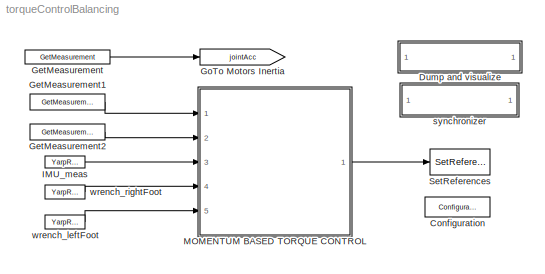
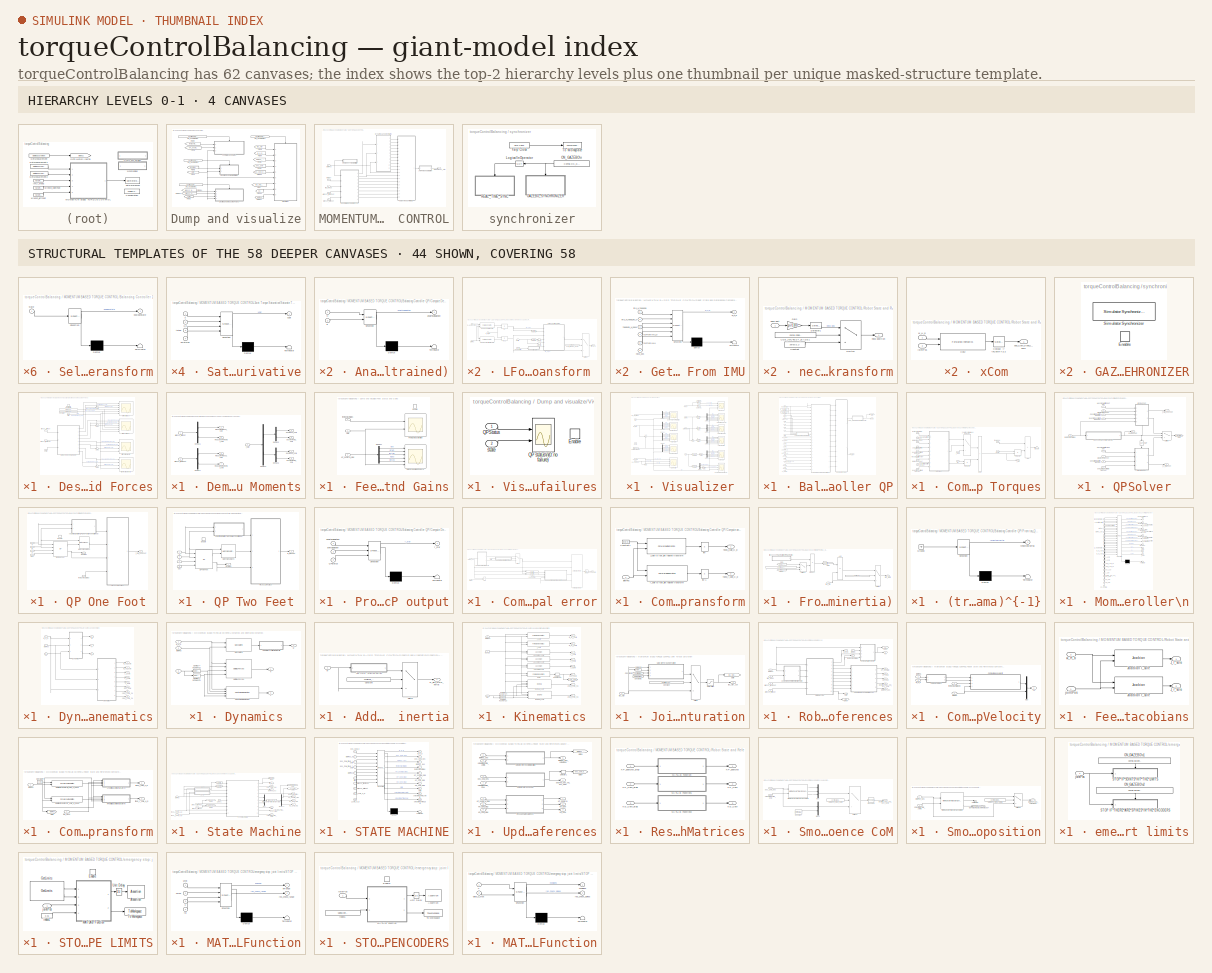
[diagram: thumbnail index - top-2 hierarchy levels (4 canvases) + 44 structural-template representatives of the remaining 58 canvases]
MODEL torqueControlBalancing
KIND model
CONFIG InitFcn = %% initialize the simulation\ncd(fileparts(which(bdroot)));\ninitTorqueControlBalancing;\n\n%% Try to edit the GUI (the user may have already closed it)\ntry\n\n    %% Update Start Button\n    set(sl_synch_handles.startButton,'Backgroundcolor',[0.0,1.0,0.0]);\n    set(sl_synch_handles.startButton,'Enable','on');\n\nend
CONFIG PostLoadFcn = %% Try to open the static GUI and try to adjust it \ntry\n\n    staticGUI = simulinkStaticGUI;\n\nend
CONFIG StartFcn = %% Try to edit the GUI (the user may have already closed it)\ntry\n\n    %% Update Start Button\n    set(sl_synch_handles.startButton,'Backgroundcolor',[0.8,0.8,0.8]);\n    set(sl_synch_handles.startButton,'Enable','off');\n\n    %% Update Compile Button\n    set(sl_synch_handles.compileButton,'Backgroundcolor',[0.8,0.8,0.8]);\n    set(sl_synch_handles.compileButton,'Enable','off');\n\n    %% Upda...<+150ch>
CONFIG StopFcn = %% stop the simulation\ncd(fileparts(which(bdroot)));\nstopTorqueControlBalancing;\n\n%% Try to edit the GUI (the user may have already closed it)\ntry\n\n    %% Update Start Button\n    if get(sl_synch_handles.checkbox_recompile, 'Value')  \n        set(sl_synch_handles.startButton,'Backgroundcolor',[0.0,1.0,0.0]);\n        set(sl_synch_handles.startButton,'Enable','on');\n    end\n\n    %% Updat...<+312ch>
BLOCK [Reference] Configuration  REF=WBToolboxLibrary/Utilities/Configuration
  ConfigObject = 'WBTConfigRobot'
  ConfigSource = Workspace
  ControlBoardsNames = {'left_arm','right_arm','torso'}
  ControlledJoints = {'l_elbow','l_shoulder_pitch','torso_roll'}
  GravityVector = [0,0,-9.81]
  LocalName = 'WBT'
  Ports = []
  RTWMemSecDataConstants = Inherit from model
  RTWMemSecDataInternal = Inherit from model
  RTWMemSecDataParameters = Inherit from model
  RTWMemSecFuncExecute = Inherit from model
  RTWMemSecFuncInitTerm = Inherit from model
  RobotName = 'icubSim'
  SID = 4537
  SourceBlock = WBToolboxLibrary/Utilities/Configuration
  SourceProductName = WholeBodyToolbox
  UrdfFile = 'model.urdf'
BLOCK [SubSystem] Dump and visualize
  Ports = []
  RequestExecContextInheritance = off
  SID = 2275
BLOCK [SubSystem] Dump and visualize/Desired and Measured Forces
  Ports = [4, 0, 1]
  RequestExecContextInheritance = off
  SID = 3241
BLOCK [Constant] Dump and visualize/Desired and Measured Forces/Constant
  SID = 2169
  Value = StateMachine.wrench_thresholdContactOn
BLOCK [Constant] Dump and visualize/Desired and Measured Forces/Constant2
  SID = 3167
  Value = StateMachine.wrench_thresholdContactOff
BLOCK [SubSystem] Dump and visualize/Desired and Measured Forces/Demux Forces nd Moments
  Ports = [3, 8]
  RequestExecContextInheritance = off
  SID = 4806
BLOCK [Demux] Dump and visualize/Desired and Measured Forces/Demux Forces nd Moments/Demux1
  Outputs = [3;3]
  Ports = [1, 2]
  SID = 4801
BLOCK [Demux] Dump and visualize/Desired and Measured Forces/Demux Forces nd Moments/Demux2
  Outputs = [6;6]
  Ports = [1, 2]
  SID = 4802
BLOCK [Demux] Dump and visualize/Desired and Measured Forces/Demux Forces nd Moments/Demux5
  Outputs = [3;3]
  Ports = [1, 2]
  SID = 4803
BLOCK [Demux] Dump and visualize/Desired and Measured Forces/Demux Forces nd Moments/Demux6
  Outputs = [3;3]
  Ports = [1, 2]
  SID = 4804
BLOCK [Demux] Dump and visualize/Desired and Measured Forces/Demux Forces nd Moments/Demux7
  Outputs = [3;3]
  Ports = [1, 2]
  SID = 4805
BLOCK [Outport] Dump and visualize/Desired and Measured Forces/Demux Forces nd Moments/des forces l_sole
  Port = 2
  SID = 4812
  VectorParamsAs1DForOutWhenUnconnected = off
BLOCK [Outport] Dump and visualize/Desired and Measured Forces/Demux Forces nd Moments/des forces r_sole
  Port = 4
  SID = 4816
  VectorParamsAs1DForOutWhenUnconnected = off
BLOCK [Outport] Dump and visualize/Desired and Measured Forces/Demux Forces nd Moments/des moments l_sole
  Port = 6
  SID = 4814
  VectorParamsAs1DForOutWhenUnconnected = off
BLOCK [Outport] Dump and visualize/Desired and Measured Forces/Demux Forces nd Moments/des moments r_sole
  Port = 8
  SID = 4817
  VectorParamsAs1DForOutWhenUnconnected = off
BLOCK [Inport] Dump and visualize/Desired and Measured Forces/Demux Forces nd Moments/f_star
  Port = 3
  SID = 4809
BLOCK [Outport] Dump and visualize/Desired and Measured Forces/Demux Forces nd Moments/measured forces l_sole
  SID = 4810
  VectorParamsAs1DForOutWhenUnconnected = off
BLOCK [Outport] Dump and visualize/Desired and Measured Forces/Demux Forces nd Moments/measured forces r_sole
  Port = 3
  SID = 4813
  VectorParamsAs1DForOutWhenUnconnected = off
BLOCK [Outport] Dump and visualize/Desired and Measured Forces/Demux Forces nd Moments/measured moments l_sole
  Port = 5
  SID = 4811
  VectorParamsAs1DForOutWhenUnconnected = off
BLOCK [Outport] Dump and visualize/Desired and Measured Forces/Demux Forces nd Moments/measured moments r_sole
  Port = 7
  SID = 4815
  VectorParamsAs1DForOutWhenUnconnected = off
BLOCK [Inport] Dump and visualize/Desired and Measured Forces/Demux Forces nd Moments/wrench_leftFoot
  SID = 4807
BLOCK [Inport] Dump and visualize/Desired and Measured Forces/Demux Forces nd Moments/wrench_rightFoot
  Port = 2
  SID = 4808
BLOCK [EnablePort] Dump and visualize/Desired and Measured Forces/Enable
  Ports = []
  SID = 3246
BLOCK [Sum] Dump and visualize/Desired and Measured Forces/Sum
  Inputs = -+|
  Ports = [2, 1]
  SID = 4818
BLOCK [Sum] Dump and visualize/Desired and Measured Forces/Sum1
  Inputs = -+|
  Ports = [2, 1]
  SID = 4821
BLOCK [Sum] Dump and visualize/Desired and Measured Forces/Sum2
  Inputs = -+|
  Ports = [2, 1]
  SID = 4824
BLOCK [Sum] Dump and visualize/Desired and Measured Forces/Sum3
  Inputs = -+|
  Ports = [2, 1]
  SID = 4825
BLOCK [Inport] Dump and visualize/Desired and Measured Forces/f_star
  Port = 3
  SID = 4510
BLOCK [Scope] Dump and visualize/Desired and Measured Forces/left Foot forces
  Floating = off
  NumInputPorts = 6
  Ports = [6]
  SID = 4800
  ScopeSpecificationString = Simulink.scopes.TimeScopeBlockCfg('CurrentConfiguration', extmgr.ConfigurationSet(extmgr.Configuration('Core','General UI',true,'FigureColor',[0.156862745098039 0.156862745098039 0.156862745098039]),extmgr.Configuration('Core','Source UI',true),extmgr.Configuration('Sources','WiredSimulink',true,'DataLoggingVariableName','forces_l_sole_DATA','DataLoggingSaveFormat','StructureWithTime','DataLogging...<+8389ch>
BLOCK [Scope] Dump and visualize/Desired and Measured Forces/left Foot moments
  Floating = off
  NumInputPorts = 4
  Ports = [4]
  SID = 4823
  ScopeSpecificationString = Simulink.scopes.TimeScopeBlockCfg('CurrentConfiguration', extmgr.ConfigurationSet(extmgr.Configuration('Core','General UI',true,'FigureColor',[0.156862745098039 0.156862745098039 0.156862745098039]),extmgr.Configuration('Core','Source UI',true),extmgr.Configuration('Sources','WiredSimulink',true,'DataLoggingVariableName','moments_l_sole_DATA','DataLoggingSaveFormat','StructureWithTime','DataLoggin...<+6394ch>
BLOCK [Scope] Dump and visualize/Desired and Measured Forces/right Foot forces
  Floating = off
  NumInputPorts = 6
  Ports = [6]
  SID = 4819
  ScopeSpecificationString = Simulink.scopes.TimeScopeBlockCfg('CurrentConfiguration', extmgr.ConfigurationSet(extmgr.Configuration('Core','General UI',true,'FigureColor',[0.156862745098039 0.156862745098039 0.156862745098039]),extmgr.Configuration('Core','Source UI',true),extmgr.Configuration('Sources','WiredSimulink',true,'DataLoggingVariableName','forces_r_sole_DATA','DataLoggingSaveFormat','StructureWithTime','DataLogging...<+8384ch>
BLOCK [Scope] Dump and visualize/Desired and Measured Forces/right Foot moments
  Floating = off
  NumInputPorts = 4
  Ports = [4]
  SID = 4822
  ScopeSpecificationString = Simulink.scopes.TimeScopeBlockCfg('CurrentConfiguration', extmgr.ConfigurationSet(extmgr.Configuration('Core','General UI',true,'FigureColor',[0.156862745098039 0.156862745098039 0.156862745098039]),extmgr.Configuration('Core','Source UI',true),extmgr.Configuration('Sources','WiredSimulink',true,'DataLoggingVariableName','moments_r_sole_DATA','DataLoggingSaveFormat','StructureWithTime','DataLoggin...<+9568ch>
BLOCK [Inport] Dump and visualize/Desired and Measured Forces/state
  Port = 4
  SID = 4785
BLOCK [Inport] Dump and visualize/Desired and Measured Forces/wrench_leftFoot
  SID = 3245
BLOCK [Inport] Dump and visualize/Desired and Measured Forces/wrench_rightFoot
  Port = 2
  SID = 3251
BLOCK [SubSystem] Dump and visualize/Feet Status and Gains
  Ports = [3, 0, 1]
  RequestExecContextInheritance = off
  SID = 4104
BLOCK [Demux] Dump and visualize/Feet Status and Gains/Demux1
  Outputs = Config.numOfJointsForEachControlboard
  Ports = [1, 5]
  SID = 4569
BLOCK [EnablePort] Dump and visualize/Feet Status and Gains/Enable
  Ports = []
  SID = 4110
BLOCK [Scope] Dump and visualize/Feet Status and Gains/Feet Contact Activation
  Floating = off
  NumInputPorts = 2
  Ports = [2]
  SID = 4117
  ScopeSpecificationString = Simulink.scopes.TimeScopeBlockCfg('CurrentConfiguration', extmgr.ConfigurationSet(extmgr.Configuration('Core','General UI',true,'FigureColor',[0.156862745098039 0.156862745098039 0.156862745098039]),extmgr.Configuration('Core','Source UI',true),extmgr.Configuration('Sources','WiredSimulink',true,'DataLoggingVariableName','feetContactStatus_DATA','DataLoggingSaveFormat','StructureWithTime','DataLog...<+3464ch>
BLOCK [Scope] Dump and visualize/Feet Status and Gains/Gain Scheduling Postural
  Floating = off
  NumInputPorts = 6
  Ports = [6]
  SID = 4116
  ScopeSpecificationString = Simulink.scopes.TimeScopeBlockCfg('CurrentConfiguration', extmgr.ConfigurationSet(extmgr.Configuration('Core','General UI',true,'FigureColor',[0.156862745098039 0.156862745098039 0.156862745098039]),extmgr.Configuration('Core','Source UI',true),extmgr.Configuration('Sources','WiredSimulink',true,'DataLoggingVariableName','KP_postural_diag_DATA','DataLoggingSaveFormat','StructureWithTime','DataLogg...<+8681ch>
BLOCK [Inport] Dump and visualize/Feet Status and Gains/KP_postural_diag
  Port = 2
  SID = 4107
BLOCK [Inport] Dump and visualize/Feet Status and Gains/feetContactStatus
  SID = 4106
BLOCK [Inport] Dump and visualize/Feet Status and Gains/state
  Port = 3
  SID = 4108
BLOCK [From] Dump and visualize/From
  GotoTag = tau_star_afterSat
  SID = 4725
  TagVisibility = global
BLOCK [From] Dump and visualize/From1
  GotoTag = state
  SID = 4479
  TagVisibility = global
BLOCK [From] Dump and visualize/From10
  GotoTag = wrench_rightFoot
  SID = 4793
  TagVisibility = global
BLOCK [From] Dump and visualize/From11
  GotoTag = wrench_leftFoot
  SID = 4791
  TagVisibility = global
BLOCK [From] Dump and visualize/From12
  GotoTag = pos_CoM_des
  SID = 4795
  TagVisibility = global
BLOCK [From] Dump and visualize/From13
  GotoTag = nu
  SID = 4798
  TagVisibility = global
BLOCK [From] Dump and visualize/From14
  GotoTag = jointPos
  SID = 4828
  TagVisibility = global
BLOCK [From] Dump and visualize/From2
  GotoTag = f_star
  SID = 4720
  TagVisibility = global
BLOCK [From] Dump and visualize/From3
  GotoTag = pos_CoM
  SID = 4796
  TagVisibility = global
BLOCK [From] Dump and visualize/From4
  GotoTag = feetContactStatus
  SID = 4786
  TagVisibility = global
BLOCK [From] Dump and visualize/From5
  GotoTag = tau_star
  SID = 4721
  TagVisibility = global
BLOCK [From] Dump and visualize/From6
  GotoTag = jointPos_des
  SID = 4781
  TagVisibility = global
BLOCK [From] Dump and visualize/From7
  GotoTag = w_H_b
  SID = 4485
  TagVisibility = global
BLOCK [From] Dump and visualize/From8
  GotoTag = KP_postural_diag
  SID = 4787
  TagVisibility = global
BLOCK [From] Dump and visualize/From9
  GotoTag = QPStatus
  SID = 4709
  TagVisibility = global
BLOCK [Constant] Dump and visualize/ON_GAZEBO\n1
  SID = 3269
  Value = Config.SCOPES_WRENCHES
BLOCK [Constant] Dump and visualize/ON_GAZEBO\n2
  SID = 4593
  Value = Config.SCOPES_QP
BLOCK [Constant] Dump and visualize/ON_GAZEBO\n4
  SID = 3275
  Value = Config.SCOPES_MAIN
BLOCK [Constant] Dump and visualize/ON_GAZEBO\n6
  SID = 4103
  Value = Config.SCOPES_GAIN_SCHE_INFO
BLOCK [SubSystem] Dump and visualize/Visualize eventual QP failures
  Ports = [2, 0, 1]
  RequestExecContextInheritance = off
  SID = 4620
BLOCK [EnablePort] Dump and visualize/Visualize eventual QP failures/Enable
  Ports = []
  SID = 4623
BLOCK [Scope] Dump and visualize/Visualize eventual QP failures/QP status\n(0: no failure)
  Floating = off
  NumInputPorts = 2
  Ports = [2]
  SID = 4624
  ScopeSpecificationString = Simulink.scopes.TimeScopeBlockCfg('CurrentConfiguration', extmgr.ConfigurationSet(extmgr.Configuration('Core','General UI',true,'FigureColor',[0.156862745098039 0.156862745098039 0.156862745098039]),extmgr.Configuration('Core','Source UI',true),extmgr.Configuration('Sources','WiredSimulink',true,'DataLoggingVariableName','QPStatus_DATA','DataLoggingSaveFormat','StructureWithTime','DataLoggingDecim...<+3876ch>
BLOCK [Inport] Dump and visualize/Visualize eventual QP failures/QPStatus
  SID = 4621
BLOCK [Inport] Dump and visualize/Visualize eventual QP failures/state
  Port = 2
  SID = 4622
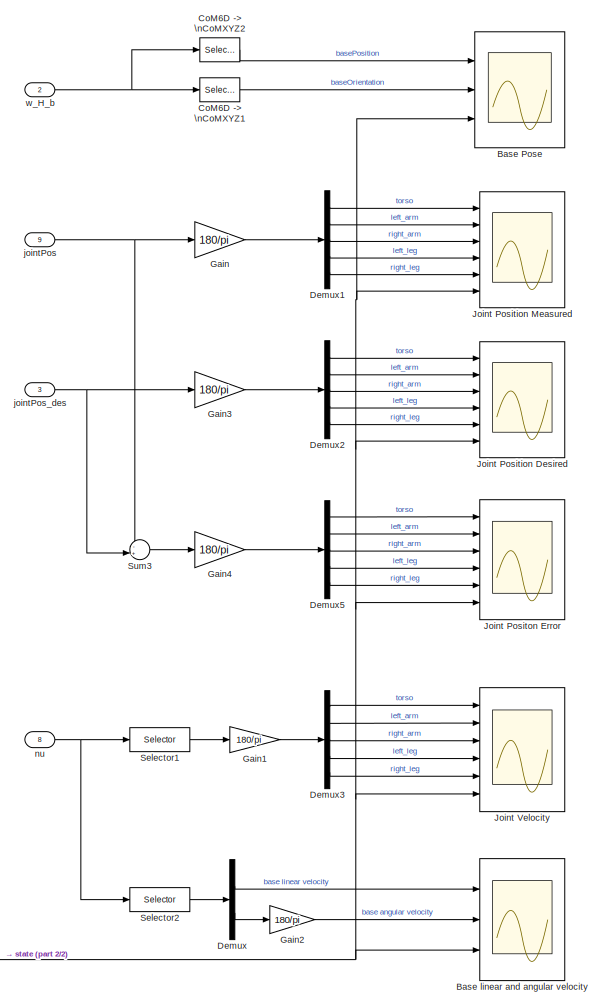
[diagram: Dump and visualize/Visualizer - part 1/2, right side, full height]
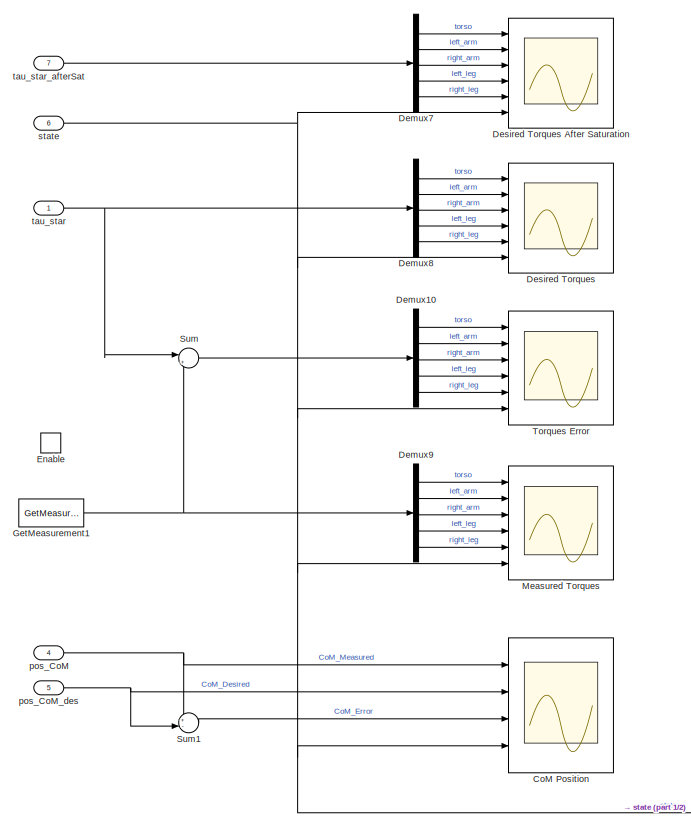
[diagram: Dump and visualize/Visualizer - part 2/2, left side, full height]
BLOCK [SubSystem] Dump and visualize/Visualizer
  Ports = [9, 0, 1]
  RequestExecContextInheritance = off
  SID = 4504
BLOCK [Scope] Dump and visualize/Visualizer/Base Pose
  Floating = off
  NumInputPorts = 3
  Ports = [3]
  SID = 3704
  ScopeSpecificationString = Simulink.scopes.TimeScopeBlockCfg('CurrentConfiguration', extmgr.ConfigurationSet(extmgr.Configuration('Core','General UI',true,'FigureColor',[0.156862745098039 0.156862745098039 0.156862745098039]),extmgr.Configuration('Core','Source UI',true),extmgr.Configuration('Sources','WiredSimulink',true,'DataLogging',true,'DataLoggingVariableName','base_pose_DATA','DataLoggingSaveFormat','StructureWithTim...<+4644ch>
BLOCK [Scope] Dump and visualize/Visualizer/Base linear and angular velocity
  Floating = off
  NumInputPorts = 3
  Ports = [3]
  SID = 4121
  ScopeSpecificationString = Simulink.scopes.TimeScopeBlockCfg('CurrentConfiguration', extmgr.ConfigurationSet(extmgr.Configuration('Core','General UI',true,'FigureColor',[0.156862745098039 0.156862745098039 0.156862745098039]),extmgr.Configuration('Core','Source UI',true),extmgr.Configuration('Sources','WiredSimulink',true,'DataLogging',true,'DataLoggingVariableName','baseVel_DATA','DataLoggingSaveFormat','StructureWithTime'...<+5134ch>
BLOCK [Scope] Dump and visualize/Visualizer/CoM Position
  Floating = off
  NumInputPorts = 4
  Ports = [4]
  SID = 2286
  ScopeSpecificationString = Simulink.scopes.TimeScopeBlockCfg('CurrentConfiguration', extmgr.ConfigurationSet(extmgr.Configuration('Core','General UI',true,'FigureColor',[0.156862745098039 0.156862745098039 0.156862745098039]),extmgr.Configuration('Core','Source UI',true),extmgr.Configuration('Sources','WiredSimulink',true,'DataLogging',true,'DataLoggingVariableName','pos_CoM_DATA','DataLoggingSaveFormat','StructureWithTime'...<+6353ch>
BLOCK [Selector] Dump and visualize/Visualizer/CoM6D -> \nCoMXYZ1
  IndexOptions = Index vector (dialog),Index vector (dialog)
  Indices = [1 2 3],[1 2 3]
  InputPortWidth = 7
  NumberOfDimensions = 2
  OutputSizes = 1,1
  Ports = [1, 1]
  SID = 3703
BLOCK [Selector] Dump and visualize/Visualizer/CoM6D -> \nCoMXYZ2
  IndexOptions = Index vector (dialog),Index vector (dialog)
  Indices = [1 2 3],[4]
  InputPortWidth = 7
  NumberOfDimensions = 2
  OutputSizes = 1,1
  Ports = [1, 1]
  SID = 3699
BLOCK [Demux] Dump and visualize/Visualizer/Demux
  Outputs = 2
  Ports = [1, 2]
  SID = 4111
BLOCK [Demux] Dump and visualize/Visualizer/Demux1
  Outputs = Config.numOfJointsForEachControlboard
  Ports = [1, 5]
  SID = 4571
BLOCK [Demux] Dump and visualize/Visualizer/Demux10
  Outputs = Config.numOfJointsForEachControlboard
  Ports = [1, 5]
  SID = 4578
BLOCK [Demux] Dump and visualize/Visualizer/Demux2
  Outputs = Config.numOfJointsForEachControlboard
  Ports = [1, 5]
  SID = 4572
BLOCK [Demux] Dump and visualize/Visualizer/Demux3
  Outputs = Config.numOfJointsForEachControlboard
  Ports = [1, 5]
  SID = 4570
BLOCK [Demux] Dump and visualize/Visualizer/Demux5
  Outputs = Config.numOfJointsForEachControlboard
  Ports = [1, 5]
  SID = 4573
BLOCK [Demux] Dump and visualize/Visualizer/Demux7
  Outputs = Config.numOfJointsForEachControlboard
  Ports = [1, 5]
  SID = 4575
BLOCK [Demux] Dump and visualize/Visualizer/Demux8
  Outputs = Config.numOfJointsForEachControlboard
  Ports = [1, 5]
  SID = 4576
BLOCK [Demux] Dump and visualize/Visualizer/Demux9
  Outputs = Config.numOfJointsForEachControlboard
  Ports = [1, 5]
  SID = 4577
BLOCK [Scope] Dump and visualize/Visualizer/Desired Torques
  Floating = off
  NumInputPorts = 6
  Ports = [6]
  SID = 2336
  ScopeSpecificationString = Simulink.scopes.TimeScopeBlockCfg('CurrentConfiguration', extmgr.ConfigurationSet(extmgr.Configuration('Core','General UI',true,'FigureColor',[0.156862745098039 0.156862745098039 0.156862745098039]),extmgr.Configuration('Core','Source UI',true),extmgr.Configuration('Sources','WiredSimulink',true,'DataLogging',true,'DataLoggingVariableName','tauDesired_DATA','DataLoggingSaveFormat','StructureWithTi...<+8763ch>
BLOCK [Scope] Dump and visualize/Visualizer/Desired Torques After Saturation
  Floating = off
  NumInputPorts = 6
  Ports = [6]
  SID = 4561
  ScopeSpecificationString = Simulink.scopes.TimeScopeBlockCfg('CurrentConfiguration', extmgr.ConfigurationSet(extmgr.Configuration('Core','General UI',true,'FigureColor',[0.156862745098039 0.156862745098039 0.156862745098039]),extmgr.Configuration('Core','Source UI',true),extmgr.Configuration('Sources','WiredSimulink',true,'DataLogging',true,'DataLoggingVariableName','tau_star_afterSat_DATA','DataLoggingSaveFormat','Structur...<+8772ch>
BLOCK [EnablePort] Dump and visualize/Visualizer/Enable
  Ports = []
  SID = 4513
BLOCK [Gain] Dump and visualize/Visualizer/Gain
  Gain = 180/pi
  SID = 2289
BLOCK [Gain] Dump and visualize/Visualizer/Gain1
  Gain = 180/pi
  SID = 4114
BLOCK [Gain] Dump and visualize/Visualizer/Gain2
  Gain = 180/pi
  SID = 4115
BLOCK [Gain] Dump and visualize/Visualizer/Gain3
  Gain = 180/pi
  SID = 2290
BLOCK [Gain] Dump and visualize/Visualizer/Gain4
  Gain = 180/pi
  SID = 2291
BLOCK [Reference] Dump and visualize/Visualizer/GetMeasurement1  REF=WBToolboxLibrary/States/GetMeasurement
  Ports = [0, 1]
  RTWMemSecDataConstants = Inherit from model
  RTWMemSecDataInternal = Inherit from model
  RTWMemSecDataParameters = Inherit from model
  RTWMemSecFuncExecute = Inherit from model
  RTWMemSecFuncInitTerm = Inherit from model
  SID = 4543
  SourceBlock = WBToolboxLibrary/States/GetMeasurement
  SourceProductName = WholeBodyToolbox
  SourceType = GetMeasurement
  measuredType = Joints Torque
BLOCK [Scope] Dump and visualize/Visualizer/Joint Position Desired
  Floating = off
  NumInputPorts = 6
  Ports = [6]
  SID = 2334
  ScopeSpecificationString = Simulink.scopes.TimeScopeBlockCfg('CurrentConfiguration', extmgr.ConfigurationSet(extmgr.Configuration('Core','General UI',true,'FigureColor',[0.156862745098039 0.156862745098039 0.156862745098039]),extmgr.Configuration('Core','Source UI',true),extmgr.Configuration('Sources','WiredSimulink',true,'DataLogging',true,'DataLoggingVariableName','jointPos_Desired_DATA','DataLoggingSaveFormat','Structure...<+8775ch>
BLOCK [Scope] Dump and visualize/Visualizer/Joint Position Measured
  Floating = off
  NumInputPorts = 6
  Ports = [6]
  SID = 2333
  ScopeSpecificationString = Simulink.scopes.TimeScopeBlockCfg('CurrentConfiguration', extmgr.ConfigurationSet(extmgr.Configuration('Core','General UI',true,'FigureColor',[0.156862745098039 0.156862745098039 0.156862745098039]),extmgr.Configuration('Core','Source UI',true),extmgr.Configuration('Sources','WiredSimulink',true,'DataLogging',true,'DataLoggingVariableName','jointPos_DATA','DataLoggingSaveFormat','StructureWithTime...<+8773ch>
BLOCK [Scope] Dump and visualize/Visualizer/Joint Positon Error
  Floating = off
  NumInputPorts = 6
  Ports = [6]
  SID = 2335
  ScopeSpecificationString = Simulink.scopes.TimeScopeBlockCfg('CurrentConfiguration', extmgr.ConfigurationSet(extmgr.Configuration('Core','General UI',true,'FigureColor',[0.156862745098039 0.156862745098039 0.156862745098039]),extmgr.Configuration('Core','Source UI',true),extmgr.Configuration('Sources','WiredSimulink',true,'DataLogging',true,'DataLoggingVariableName','jointPos_Error_DATA','DataLoggingSaveFormat','StructureWi...<+8773ch>
BLOCK [Scope] Dump and visualize/Visualizer/Joint Velocity
  Floating = off
  NumInputPorts = 6
  Ports = [6]
  SID = 4122
  ScopeSpecificationString = Simulink.scopes.TimeScopeBlockCfg('CurrentConfiguration', extmgr.ConfigurationSet(extmgr.Configuration('Core','General UI',true,'FigureColor',[0.156862745098039 0.156862745098039 0.156862745098039]),extmgr.Configuration('Core','Source UI',true),extmgr.Configuration('Sources','WiredSimulink',true,'DataLogging',true,'DataLoggingVariableName','jointVel_DATA','DataLoggingSaveFormat','StructureWithTime...<+8837ch>
BLOCK [Scope] Dump and visualize/Visualizer/Measured Torques
  Floating = off
  NumInputPorts = 6
  Ports = [6]
  SID = 2338
  ScopeSpecificationString = Simulink.scopes.TimeScopeBlockCfg('CurrentConfiguration', extmgr.ConfigurationSet(extmgr.Configuration('Core','General UI',true,'FigureColor',[0.156862745098039 0.156862745098039 0.156862745098039]),extmgr.Configuration('Core','Source UI',true),extmgr.Configuration('Sources','WiredSimulink',true,'DataLogging',true,'DataLoggingVariableName','tauMeasured_DATA','DataLoggingSaveFormat','StructureWithT...<+8764ch>
BLOCK [Selector] Dump and visualize/Visualizer/Selector1
  IndexOptions = Index vector (dialog)
  Indices = [7:6+ROBOT_DOF]
  InputPortWidth = 6+ROBOT_DOF
  OutputSizes = 1
  Ports = [1, 1]
  SID = 4118
BLOCK [Selector] Dump and visualize/Visualizer/Selector2
  IndexOptions = Index vector (dialog)
  Indices = [1:6]
  InputPortWidth = 6+ROBOT_DOF
  OutputSizes = 1
  Ports = [1, 1]
  SID = 4119
BLOCK [Sum] Dump and visualize/Visualizer/Sum
  Inputs = |+-
  Ports = [2, 1]
  SID = 2295
BLOCK [Sum] Dump and visualize/Visualizer/Sum1
  Inputs = +-|
  Ports = [2, 1]
  SID = 4827
BLOCK [Sum] Dump and visualize/Visualizer/Sum3
  Inputs = -+|
  Ports = [2, 1]
  SID = 2298
BLOCK [Scope] Dump and visualize/Visualizer/Torques Error
  Floating = off
  NumInputPorts = 6
  Ports = [6]
  SID = 2337
  ScopeSpecificationString = Simulink.scopes.TimeScopeBlockCfg('CurrentConfiguration', extmgr.ConfigurationSet(extmgr.Configuration('Core','General UI',true,'FigureColor',[0.156862745098039 0.156862745098039 0.156862745098039]),extmgr.Configuration('Core','Source UI',true),extmgr.Configuration('Sources','WiredSimulink',true,'DataLogging',true,'DataLoggingVariableName','tauError_DATA','DataLoggingSaveFormat','StructureWithTime...<+8761ch>
BLOCK [Inport] Dump and visualize/Visualizer/jointPos
  Port = 9
  SID = 4826
BLOCK [Inport] Dump and visualize/Visualizer/jointPos_des
  Port = 3
  SID = 4508
BLOCK [Inport] Dump and visualize/Visualizer/nu
  Port = 8
  SID = 4109
BLOCK [Inport] Dump and visualize/Visualizer/pos_CoM
  Port = 4
  SID = 4509
BLOCK [Inport] Dump and visualize/Visualizer/pos_CoM_des
  Port = 5
  SID = 4511
BLOCK [Inport] Dump and visualize/Visualizer/state
  Port = 6
  SID = 4507
BLOCK [Inport] Dump and visualize/Visualizer/tau_star
  SID = 4505
BLOCK [Inport] Dump and visualize/Visualizer/tau_star_afterSat
  Port = 7
  SID = 4562
BLOCK [Inport] Dump and visualize/Visualizer/w_H_b
  Port = 2
  SID = 4506
BLOCK [Reference] GetMeasurement  REF=WBToolboxLibrary/States/GetMeasurement
  Ports = [0, 1]
  RTWMemSecDataConstants = Inherit from model
  RTWMemSecDataInternal = Inherit from model
  RTWMemSecDataParameters = Inherit from model
  RTWMemSecFuncExecute = Inherit from model
  RTWMemSecFuncInitTerm = Inherit from model
  SID = 4539
  SourceBlock = WBToolboxLibrary/States/GetMeasurement
  SourceProductName = WholeBodyToolbox
  SourceType = GetMeasurement
  measuredType = Joints Acceleration
BLOCK [Reference] GetMeasurement1  REF=WBToolboxLibrary/States/GetMeasurement
  Ports = [0, 1]
  RTWMemSecDataConstants = Inherit from model
  RTWMemSecDataInternal = Inherit from model
  RTWMemSecDataParameters = Inherit from model
  RTWMemSecFuncExecute = Inherit from model
  RTWMemSecFuncInitTerm = Inherit from model
  SID = 4538
  SourceBlock = WBToolboxLibrary/States/GetMeasurement
  SourceProductName = WholeBodyToolbox
  SourceType = GetMeasurement
  measuredType = Joints Position
BLOCK [Reference] GetMeasurement2  REF=WBToolboxLibrary/States/GetMeasurement
  Ports = [0, 1]
  RTWMemSecDataConstants = Inherit from model
  RTWMemSecDataInternal = Inherit from model
  RTWMemSecDataParameters = Inherit from model
  RTWMemSecFuncExecute = Inherit from model
  RTWMemSecFuncInitTerm = Inherit from model
  SID = 4541
  SourceBlock = WBToolboxLibrary/States/GetMeasurement
  SourceProductName = WholeBodyToolbox
  SourceType = GetMeasurement
  measuredType = Joints Velocity
BLOCK [Goto] GoTo Motors Inertia
  GotoTag = jointAcc
  SID = 4831
  TagVisibility = global
BLOCK [Reference] IMU_meas  REF=WBToolboxLibrary/Utilities/YarpRead
  MultiThreadCoSim = auto
  Ports = [0, 1]
  SID = 2630
  SourceBlock = WBToolboxLibrary/Utilities/YarpRead
  SourceProductName = WholeBodyToolbox
  SourceType = YARP Read
  autoconnect = on
  blocking = off
  errorOnConnection = on
  portName = Ports.IMU
  signalSize = Ports.IMU_PORT_SIZE
  timeout = 0.5
  timestamp = off
BLOCK [SubSystem] MOMENTUM BASED TORQUE CONTROL
  Ports = [5, 1]
  RequestExecContextInheritance = off
  SID = 4836
BLOCK [SubSystem] MOMENTUM BASED TORQUE CONTROL/Balancing Controller QP
  Ports = [20, 1]
  RequestExecContextInheritance = off
  SID = 2355
BLOCK [SubSystem] MOMENTUM BASED TORQUE CONTROL/Balancing Controller QP/Compute Desired Torques
  Ports = [13, 2]
  RequestExecContextInheritance = off
  SID = 4393
BLOCK [Sum] MOMENTUM BASED TORQUE CONTROL/Balancing Controller QP/Compute Desired Torques/Add
  IconShape = rectangular
  Ports = [2, 1]
  SID = 2367
BLOCK [Sum] MOMENTUM BASED TORQUE CONTROL/Balancing Controller QP/Compute Desired Torques/Add1
  IconShape = rectangular
  Ports = [2, 1]
  SID = 2368
BLOCK [Inport] MOMENTUM BASED TORQUE CONTROL/Balancing Controller QP/Compute Desired Torques/ConstraintsMatrixOneFoot
  Port = 4
  SID = 4413
BLOCK [Inport] MOMENTUM BASED TORQUE CONTROL/Balancing Controller QP/Compute Desired Torques/ConstraintsMatrixTwoFeet
  Port = 8
  SID = 4417
BLOCK [Inport] MOMENTUM BASED TORQUE CONTROL/Balancing Controller QP/Compute Desired Torques/HessianMatrixOneFoot
  Port = 2
  SID = 4411
BLOCK [Inport] MOMENTUM BASED TORQUE CONTROL/Balancing Controller QP/Compute Desired Torques/HessianMatrixTwoFeet
  Port = 6
  SID = 4415
BLOCK [Inport] MOMENTUM BASED TORQUE CONTROL/Balancing Controller QP/Compute Desired Torques/Na
  Port = 12
  SID = 4397
BLOCK [Product] MOMENTUM BASED TORQUE CONTROL/Balancing Controller QP/Compute Desired Torques/Product1
  Multiplication = Matrix(*)
  Ports = [2, 1]
  SID = 2381
BLOCK [Product] MOMENTUM BASED TORQUE CONTROL/Balancing Controller QP/Compute Desired Torques/Product2
  Multiplication = Matrix(*)
  Ports = [2, 1]
  SID = 2382
BLOCK [SubSystem] MOMENTUM BASED TORQUE CONTROL/Balancing Controller QP/Compute Desired Torques/QPSolver
  Ports = [9, 3]
  RequestExecContextInheritance = off
  SID = 4579
BLOCK [Inport] MOMENTUM BASED TORQUE CONTROL/Balancing Controller QP/Compute Desired Torques/QPSolver/ConstraintsMatrixOneFoot
  Port = 4
  SID = 4583
BLOCK [Inport] MOMENTUM BASED TORQUE CONTROL/Balancing Controller QP/Compute Desired Torques/QPSolver/ConstraintsMatrixTwoFeet
  Port = 8
  SID = 4587
BLOCK [Goto] MOMENTUM BASED TORQUE CONTROL/Balancing Controller QP/Compute Desired Torques/QPSolver/Goto
  GotoTag = QPStatus
  SID = 4710
  TagVisibility = global
BLOCK [Inport] MOMENTUM BASED TORQUE CONTROL/Balancing Controller QP/Compute Desired Torques/QPSolver/HessianMatrixOneFoot
  Port = 2
  SID = 4581
BLOCK [Inport] MOMENTUM BASED TORQUE CONTROL/Balancing Controller QP/Compute Desired Torques/QPSolver/HessianMatrixTwoFeet
  Port = 6
  SID = 4585
BLOCK [Logic] MOMENTUM BASED TORQUE CONTROL/Balancing Controller QP/Compute Desired Torques/QPSolver/NOT
  AllPortsSameDT = off
  IconShape = distinctive
  Operator = NOT
  OutDataTypeStr = boolean
  Ports = [1, 1]
  SID = 4625
BLOCK [SubSystem] MOMENTUM BASED TORQUE CONTROL/Balancing Controller QP/Compute Desired Torques/QPSolver/One Foot Two Feet QP Selector
  ErrorFcn = Stateflow.Translate.translate
  PermitHierarchicalResolution = ExplicitOnly
  Ports = [1, 1]
  RequestExecContextInheritance = off
  SFBlockType = MATLAB Function
  SID = 4590
  TreatAsAtomicUnit = on
BLOCK [Demux] MOMENTUM BASED TORQUE CONTROL/Balancing Controller QP/Compute Desired Torques/QPSolver/One Foot Two Feet QP Selector/ Demux 
  Outputs = 1
  Ports = [1, 1]
  SID = 4590::104
BLOCK [S-Function] MOMENTUM BASED TORQUE CONTROL/Balancing Controller QP/Compute Desired Torques/QPSolver/One Foot Two Feet QP Selector/ SFunction 
  EnableBusSupport = off
  FunctionName = sf_sfun
  PortCounts = [1 2]
  Ports = [1, 2]
  SFcnIsStateOwnerBlock = off
  SFunctionDeploymentMode = off
  SID = 4590::103
  Tag = Stateflow S-Function 15
BLOCK [Terminator] MOMENTUM BASED TORQUE CONTROL/Balancing Controller QP/Compute Desired Torques/QPSolver/One Foot Two Feet QP Selector/ Terminator 
  SID = 4590::105
BLOCK [Inport] MOMENTUM BASED TORQUE CONTROL/Balancing Controller QP/Compute Desired Torques/QPSolver/One Foot Two Feet QP Selector/feetContactStatus
  SID = 4590::1
BLOCK [Outport] MOMENTUM BASED TORQUE CONTROL/Balancing Controller QP/Compute Desired Torques/QPSolver/One Foot Two Feet QP Selector/onOneFoot
  SID = 4590::5
  VectorParamsAs1DForOutWhenUnconnected = off
BLOCK [SubSystem] MOMENTUM BASED TORQUE CONTROL/Balancing Controller QP/Compute Desired Torques/QPSolver/QP One Foot
  Ports = [5, 2, 1]
  RequestExecContextInheritance = off
  SID = 4696
  TreatAsAtomicUnit = on
BLOCK [Inport] MOMENTUM BASED TORQUE CONTROL/Balancing Controller QP/Compute Desired Torques/QPSolver/QP One Foot/A
  Port = 3
  SID = 4687
BLOCK [SubSystem] MOMENTUM BASED TORQUE CONTROL/Balancing Controller QP/Compute Desired Torques/QPSolver/QP One Foot/Analytical Solution QP One Foot (unconstrained)
  ErrorFcn = Stateflow.Translate.translate
  PermitHierarchicalResolution = ExplicitOnly
  Ports = [2, 1]
  RequestExecContextInheritance = off
  SFBlockType = MATLAB Function
  SID = 4690
  TreatAsAtomicUnit = on
BLOCK [Demux] MOMENTUM BASED TORQUE CONTROL/Balancing Controller QP/Compute Desired Torques/QPSolver/QP One Foot/Analytical Solution QP One Foot (unconstrained)/ Demux 
  Outputs = 1
  Ports = [1, 1]
  SID = 4690::105
BLOCK [S-Function] MOMENTUM BASED TORQUE CONTROL/Balancing Controller QP/Compute Desired Torques/QPSolver/QP One Foot/Analytical Solution QP One Foot (unconstrained)/ SFunction 
  EnableBusSupport = off
  FunctionName = sf_sfun
  PortCounts = [2 2]
  Ports = [2, 2]
  SFcnIsStateOwnerBlock = off
  SFunctionDeploymentMode = off
  SID = 4690::104
  Tag = Stateflow S-Function 26
BLOCK [Terminator] MOMENTUM BASED TORQUE CONTROL/Balancing Controller QP/Compute Desired Torques/QPSolver/QP One Foot/Analytical Solution QP One Foot (unconstrained)/ Terminator 
  SID = 4690::106
BLOCK [Inport] MOMENTUM BASED TORQUE CONTROL/Balancing Controller QP/Compute Desired Torques/QPSolver/QP One Foot/Analytical Solution QP One Foot (unconstrained)/H
  SID = 4690::1
BLOCK [Outport] MOMENTUM BASED TORQUE CONTROL/Balancing Controller QP/Compute Desired Torques/QPSolver/QP One Foot/Analytical Solution QP One Foot (unconstrained)/analyticalSolution
  SID = 4690::5
  VectorParamsAs1DForOutWhenUnconnected = off
BLOCK [Inport] MOMENTUM BASED TORQUE CONTROL/Balancing Controller QP/Compute Desired Torques/QPSolver/QP One Foot/Analytical Solution QP One Foot (unconstrained)/g
  Port = 2
  SID = 4690::22
BLOCK [EnablePort] MOMENTUM BASED TORQUE CONTROL/Balancing Controller QP/Compute Desired Torques/QPSolver/QP One Foot/Enable
  Ports = []
  SID = 4689
BLOCK [Inport] MOMENTUM BASED TORQUE CONTROL/Balancing Controller QP/Compute Desired Torques/QPSolver/QP One Foot/H
  SID = 4685
BLOCK [Reference] MOMENTUM BASED TORQUE CONTROL/Balancing Controller QP/Compute Desired Torques/QPSolver/QP One Foot/MatchSignalSizes  REF=WBToolboxLibrary/Utilities/MatchSignalSizes
  Ports = [2, 1]
  RTWMemSecDataConstants = Inherit from model
  RTWMemSecDataInternal = Inherit from model
  RTWMemSecDataParameters = Inherit from model
  RTWMemSecFuncExecute = Inherit from model
  RTWMemSecFuncInitTerm = Inherit from model
  SID = 4691
  SourceBlock = WBToolboxLibrary/Utilities/MatchSignalSizes
  SourceProductName = WholeBodyToolbox
  SourceType = MatchSignalSizes
BLOCK [SubSystem] MOMENTUM BASED TORQUE CONTROL/Balancing Controller QP/Compute Desired Torques/QPSolver/QP One Foot/Process QP output
  ErrorFcn = Stateflow.Translate.translate
  PermitHierarchicalResolution = ExplicitOnly
  Ports = [4, 1]
  RequestExecContextInheritance = off
  SFBlockType = MATLAB Function
  SID = 4692
  TreatAsAtomicUnit = on
BLOCK [Demux] MOMENTUM BASED TORQUE CONTROL/Balancing Controller QP/Compute Desired Torques/QPSolver/QP One Foot/Process QP output/ Demux 
  Outputs = 1
  Ports = [1, 1]
  SID = 4692::113
BLOCK [S-Function] MOMENTUM BASED TORQUE CONTROL/Balancing Controller QP/Compute Desired Torques/QPSolver/QP One Foot/Process QP output/ SFunction 
  EnableBusSupport = off
  FunctionName = sf_sfun
  Parameters = Config
  PortCounts = [4 2]
  Ports = [4, 2]
  SFcnIsStateOwnerBlock = off
  SFunctionDeploymentMode = off
  SID = 4692::112
  Tag = Stateflow S-Function 27
BLOCK [Terminator] MOMENTUM BASED TORQUE CONTROL/Balancing Controller QP/Compute Desired Torques/QPSolver/QP One Foot/Process QP output/ Terminator 
  SID = 4692::114
BLOCK [Inport] MOMENTUM BASED TORQUE CONTROL/Balancing Controller QP/Compute Desired Torques/QPSolver/QP One Foot/Process QP output/QPStatus
  Port = 3
  SID = 4692::22
BLOCK [Inport] MOMENTUM BASED TORQUE CONTROL/Balancing Controller QP/Compute Desired Torques/QPSolver/QP One Foot/Process QP output/analyticalSolution
  SID = 4692::29
BLOCK [Outport] MOMENTUM BASED TORQUE CONTROL/Balancing Controller QP/Compute Desired Torques/QPSolver/QP One Foot/Process QP output/f_star
  SID = 4692::5
  VectorParamsAs1DForOutWhenUnconnected = off
BLOCK [Inport] MOMENTUM BASED TORQUE CONTROL/Balancing Controller QP/Compute Desired Torques/QPSolver/QP One Foot/Process QP output/feetContactStatus
  Port = 4
  SID = 4692::66
BLOCK [Inport] MOMENTUM BASED TORQUE CONTROL/Balancing Controller QP/Compute Desired Torques/QPSolver/QP One Foot/Process QP output/primalSolution
  Port = 2
  SID = 4692::1
BLOCK [Reference] MOMENTUM BASED TORQUE CONTROL/Balancing Controller QP/Compute Desired Torques/QPSolver/QP One Foot/QP One Foot  REF=WBToolboxLibrary/Utilities/QP
  MultiThreadCoSim = auto
  Ports = [4, 2]
  SID = 4693
  SourceBlock = WBToolboxLibrary/Utilities/QP
  SourceProductName = WholeBodyToolbox
  SourceType = QP
  computeObjVal = off
  lb = off
  lbA = off
  stopIfFails = off
  ub = off
  ubA = on
BLOCK [Outport] MOMENTUM BASED TORQUE CONTROL/Balancing Controller QP/Compute Desired Torques/QPSolver/QP One Foot/QPStatus
  Port = 2
  SID = 4694
  VectorParamsAs1DForOutWhenUnconnected = off
BLOCK [Outport] MOMENTUM BASED TORQUE CONTROL/Balancing Controller QP/Compute Desired Torques/QPSolver/QP One Foot/f_star_oneFoot
  SID = 4695
  VectorParamsAs1DForOutWhenUnconnected = off
BLOCK [Inport] MOMENTUM BASED TORQUE CONTROL/Balancing Controller QP/Compute Desired Torques/QPSolver/QP One Foot/feetContactStatus
  Port = 5
  SID = 4708
BLOCK [Inport] MOMENTUM BASED TORQUE CONTROL/Balancing Controller QP/Compute Desired Torques/QPSolver/QP One Foot/g
  Port = 2
  SID = 4686
BLOCK [Inport] MOMENTUM BASED TORQUE CONTROL/Balancing Controller QP/Compute Desired Torques/QPSolver/QP One Foot/ubA
  Port = 4
  SID = 4688
BLOCK [SubSystem] MOMENTUM BASED TORQUE CONTROL/Balancing Controller QP/Compute Desired Torques/QPSolver/QP Two Feet
  Ports = [4, 2, 1]
  RequestExecContextInheritance = off
  SID = 4684
  TreatAsAtomicUnit = on
BLOCK [Inport] MOMENTUM BASED TORQUE CONTROL/Balancing Controller QP/Compute Desired Torques/QPSolver/QP Two Feet/A
  Port = 3
  SID = 4675
BLOCK [SubSystem] MOMENTUM BASED TORQUE CONTROL/Balancing Controller QP/Compute Desired Torques/QPSolver/QP Two Feet/Analytical Solution Two Feet (unconstrained)
  ErrorFcn = Stateflow.Translate.translate
  PermitHierarchicalResolution = ExplicitOnly
  Ports = [2, 1]
  RequestExecContextInheritance = off
  SFBlockType = MATLAB Function
  SID = 4678
  TreatAsAtomicUnit = on
BLOCK [Demux] MOMENTUM BASED TORQUE CONTROL/Balancing Controller QP/Compute Desired Torques/QPSolver/QP Two Feet/Analytical Solution Two Feet (unconstrained)/ Demux 
  Outputs = 1
  Ports = [1, 1]
  SID = 4678::105
BLOCK [S-Function] MOMENTUM BASED TORQUE CONTROL/Balancing Controller QP/Compute Desired Torques/QPSolver/QP Two Feet/Analytical Solution Two Feet (unconstrained)/ SFunction 
  EnableBusSupport = off
  FunctionName = sf_sfun
  PortCounts = [2 2]
  Ports = [2, 2]
  SFcnIsStateOwnerBlock = off
  SFunctionDeploymentMode = off
  SID = 4678::104
  Tag = Stateflow S-Function 24
BLOCK [Terminator] MOMENTUM BASED TORQUE CONTROL/Balancing Controller QP/Compute Desired Torques/QPSolver/QP Two Feet/Analytical Solution Two Feet (unconstrained)/ Terminator 
  SID = 4678::106
BLOCK [Inport] MOMENTUM BASED TORQUE CONTROL/Balancing Controller QP/Compute Desired Torques/QPSolver/QP Two Feet/Analytical Solution Two Feet (unconstrained)/H
  SID = 4678::1
BLOCK [Outport] MOMENTUM BASED TORQUE CONTROL/Balancing Controller QP/Compute Desired Torques/QPSolver/QP Two Feet/Analytical Solution Two Feet (unconstrained)/analyticalSolution
  SID = 4678::5
  VectorParamsAs1DForOutWhenUnconnected = off
BLOCK [Inport] MOMENTUM BASED TORQUE CONTROL/Balancing Controller QP/Compute Desired Torques/QPSolver/QP Two Feet/Analytical Solution Two Feet (unconstrained)/g
  Port = 2
  SID = 4678::22
BLOCK [EnablePort] MOMENTUM BASED TORQUE CONTROL/Balancing Controller QP/Compute Desired Torques/QPSolver/QP Two Feet/Enable
  Ports = []
  SID = 4677
BLOCK [Inport] MOMENTUM BASED TORQUE CONTROL/Balancing Controller QP/Compute Desired Torques/QPSolver/QP Two Feet/H
  SID = 4673
BLOCK [Reference] MOMENTUM BASED TORQUE CONTROL/Balancing Controller QP/Compute Desired Torques/QPSolver/QP Two Feet/MatchSignalSizes  REF=WBToolboxLibrary/Utilities/MatchSignalSizes
  Ports = [2, 1]
  RTWMemSecDataConstants = Inherit from model
  RTWMemSecDataInternal = Inherit from model
  RTWMemSecDataParameters = Inherit from model
  RTWMemSecFuncExecute = Inherit from model
  RTWMemSecFuncInitTerm = Inherit from model
  SID = 4679
  SourceBlock = WBToolboxLibrary/Utilities/MatchSignalSizes
  SourceProductName = WholeBodyToolbox
  SourceType = MatchSignalSizes
BLOCK [SubSystem] MOMENTUM BASED TORQUE CONTROL/Balancing Controller QP/Compute Desired Torques/QPSolver/QP Two Feet/Process QP output
  ErrorFcn = Stateflow.Translate.translate
  PermitHierarchicalResolution = ExplicitOnly
  Ports = [3, 1]
  RequestExecContextInheritance = off
  SFBlockType = MATLAB Function
  SID = 4680
  TreatAsAtomicUnit = on
BLOCK [Demux] MOMENTUM BASED TORQUE CONTROL/Balancing Controller QP/Compute Desired Torques/QPSolver/QP Two Feet/Process QP output/ Demux 
  Outputs = 1
  Ports = [1, 1]
  SID = 4680::113
BLOCK [S-Function] MOMENTUM BASED TORQUE CONTROL/Balancing Controller QP/Compute Desired Torques/QPSolver/QP Two Feet/Process QP output/ SFunction 
  EnableBusSupport = off
  FunctionName = sf_sfun
  Parameters = Config
  PortCounts = [3 2]
  Ports = [3, 2]
  SFcnIsStateOwnerBlock = off
  SFunctionDeploymentMode = off
  SID = 4680::112
  Tag = Stateflow S-Function 25
BLOCK [Terminator] MOMENTUM BASED TORQUE CONTROL/Balancing Controller QP/Compute Desired Torques/QPSolver/QP Two Feet/Process QP output/ Terminator 
  SID = 4680::114
BLOCK [Inport] MOMENTUM BASED TORQUE CONTROL/Balancing Controller QP/Compute Desired Torques/QPSolver/QP Two Feet/Process QP output/QPStatus
  Port = 3
  SID = 4680::22
BLOCK [Inport] MOMENTUM BASED TORQUE CONTROL/Balancing Controller QP/Compute Desired Torques/QPSolver/QP Two Feet/Process QP output/analyticalSolution
  SID = 4680::29
BLOCK [Outport] MOMENTUM BASED TORQUE CONTROL/Balancing Controller QP/Compute Desired Torques/QPSolver/QP Two Feet/Process QP output/f_star
  SID = 4680::5
  VectorParamsAs1DForOutWhenUnconnected = off
BLOCK [Inport] MOMENTUM BASED TORQUE CONTROL/Balancing Controller QP/Compute Desired Torques/QPSolver/QP Two Feet/Process QP output/primalSolution
  Port = 2
  SID = 4680::1
BLOCK [Reference] MOMENTUM BASED TORQUE CONTROL/Balancing Controller QP/Compute Desired Torques/QPSolver/QP Two Feet/QP Two Feet  REF=WBToolboxLibrary/Utilities/QP
  MultiThreadCoSim = auto
  Ports = [4, 2]
  SID = 4681
  SourceBlock = WBToolboxLibrary/Utilities/QP
  SourceProductName = WholeBodyToolbox
  SourceType = QP
  computeObjVal = off
  lb = off
  lbA = off
  stopIfFails = off
  ub = off
  ubA = on
BLOCK [Outport] MOMENTUM BASED TORQUE CONTROL/Balancing Controller QP/Compute Desired Torques/QPSolver/QP Two Feet/QPStatus
  SID = 4683
  VectorParamsAs1DForOutWhenUnconnected = off
BLOCK [Outport] MOMENTUM BASED TORQUE CONTROL/Balancing Controller QP/Compute Desired Torques/QPSolver/QP Two Feet/f0_twoFeet
  Port = 2
  SID = 4682
  VectorParamsAs1DForOutWhenUnconnected = off
BLOCK [Inport] MOMENTUM BASED TORQUE CONTROL/Balancing Controller QP/Compute Desired Torques/QPSolver/QP Two Feet/g
  Port = 2
  SID = 4674
BLOCK [Inport] MOMENTUM BASED TORQUE CONTROL/Balancing Controller QP/Compute Desired Torques/QPSolver/QP Two Feet/ubA
  Port = 4
  SID = 4676
BLOCK [Switch] MOMENTUM BASED TORQUE CONTROL/Balancing Controller QP/Compute Desired Torques/QPSolver/Switch
  Criteria = u2 > Threshold
  InputSameDT = off
  SID = 4607
  SaturateOnIntegerOverflow = off
BLOCK [Inport] MOMENTUM BASED TORQUE CONTROL/Balancing Controller QP/Compute Desired Torques/QPSolver/bVectorConstraintsOneFoot
  Port = 5
  SID = 4584
BLOCK [Inport] MOMENTUM BASED TORQUE CONTROL/Balancing Controller QP/Compute Desired Torques/QPSolver/bVectorConstraintsTwoFeet
  Port = 9
  SID = 4588
BLOCK [Outport] MOMENTUM BASED TORQUE CONTROL/Balancing Controller QP/Compute Desired Torques/QPSolver/f_0_twoFeet
  Port = 3
  SID = 4627
  VectorParamsAs1DForOutWhenUnconnected = off
BLOCK [Outport] MOMENTUM BASED TORQUE CONTROL/Balancing Controller QP/Compute Desired Torques/QPSolver/f_star_oneFoot
  SID = 4626
  VectorParamsAs1DForOutWhenUnconnected = off
BLOCK [Inport] MOMENTUM BASED TORQUE CONTROL/Balancing Controller QP/Compute Desired Torques/QPSolver/feetContactStatus
  SID = 4580
BLOCK [Inport] MOMENTUM BASED TORQUE CONTROL/Balancing Controller QP/Compute Desired Torques/QPSolver/gradientOneFoot
  Port = 3
  SID = 4582
BLOCK [Inport] MOMENTUM BASED TORQUE CONTROL/Balancing Controller QP/Compute Desired Torques/QPSolver/gradientTwoFeet
  Port = 7
  SID = 4586
BLOCK [Outport] MOMENTUM BASED TORQUE CONTROL/Balancing Controller QP/Compute Desired Torques/QPSolver/onOneFoot
  Port = 2
  SID = 4717
  VectorParamsAs1DForOutWhenUnconnected = off
BLOCK [Inport] MOMENTUM BASED TORQUE CONTROL/Balancing Controller QP/Compute Desired Torques/Sigma
  Port = 11
  SID = 4396
BLOCK [Inport] MOMENTUM BASED TORQUE CONTROL/Balancing Controller QP/Compute Desired Torques/bVectorConstraintsOneFoot
  Port = 5
  SID = 4414
BLOCK [Inport] MOMENTUM BASED TORQUE CONTROL/Balancing Controller QP/Compute Desired Torques/bVectorConstraintsTwoFeet
  Port = 9
  SID = 4418
BLOCK [Inport] MOMENTUM BASED TORQUE CONTROL/Balancing Controller QP/Compute Desired Torques/f_LDot
  Port = 13
  SID = 4420
BLOCK [Switch] MOMENTUM BASED TORQUE CONTROL/Balancing Controller QP/Compute Desired Torques/f_LDot is f_star while on One Foot
  Criteria = u2 > Threshold
  InputSameDT = off
  SID = 4712
  SaturateOnIntegerOverflow = off
BLOCK [Outport] MOMENTUM BASED TORQUE CONTROL/Balancing Controller QP/Compute Desired Torques/f_star
  Port = 2
  SID = 4409
  VectorParamsAs1DForOutWhenUnconnected = off
BLOCK [Inport] MOMENTUM BASED TORQUE CONTROL/Balancing Controller QP/Compute Desired Torques/feetContactStatus
  SID = 4410
BLOCK [Inport] MOMENTUM BASED TORQUE CONTROL/Balancing Controller QP/Compute Desired Torques/gradientOneFoot
  Port = 3
  SID = 4412
BLOCK [Inport] MOMENTUM BASED TORQUE CONTROL/Balancing Controller QP/Compute Desired Torques/gradientTwoFeet
  Port = 7
  SID = 4416
BLOCK [Inport] MOMENTUM BASED TORQUE CONTROL/Balancing Controller QP/Compute Desired Torques/tauModel
  Port = 10
  SID = 4395
BLOCK [Outport] MOMENTUM BASED TORQUE CONTROL/Balancing Controller QP/Compute Desired Torques/tau_QP
  SID = 4408
  VectorParamsAs1DForOutWhenUnconnected = off
BLOCK [SubSystem] MOMENTUM BASED TORQUE CONTROL/Balancing Controller QP/Compute angular momentum integral error
  Ports = [4, 1]
  RequestExecContextInheritance = off
  SID = 3714
BLOCK [Sum] MOMENTUM BASED TORQUE CONTROL/Balancing Controller QP/Compute angular momentum integral error/Add
  IconShape = rectangular
  Inputs = -+
  Ports = [2, 1]
  SID = 4724
BLOCK [Reference] MOMENTUM BASED TORQUE CONTROL/Balancing Controller QP/Compute angular momentum integral error/CentroidalMomentum  REF=WBToolboxLibrary/Model/Dynamics/CentroidalMomentum
  Ports = [4, 1]
  RTWMemSecDataConstants = Inherit from model
  RTWMemSecDataInternal = Inherit from model
  RTWMemSecDataParameters = Inherit from model
  RTWMemSecFuncExecute = Inherit from model
  RTWMemSecFuncInitTerm = Inherit from model
  SID = 3718
  SourceBlock = WBToolboxLibrary/Model/Dynamics/CentroidalMomentum
  SourceProductName = WholeBodyToolbox
  SourceType = CentroidalMomentum
BLOCK [SubSystem] MOMENTUM BASED TORQUE CONTROL/Balancing Controller QP/Compute angular momentum integral error/Compute base to fixed link transform
  Ports = [1, 2]
  RequestExecContextInheritance = off
  SID = 4422
BLOCK [Constant] MOMENTUM BASED TORQUE CONTROL/Balancing Controller QP/Compute angular momentum integral error/Compute base to fixed link transform/Constant7
  SID = 4425
  Value = eye(4)
BLOCK [Outport] MOMENTUM BASED TORQUE CONTROL/Balancing Controller QP/Compute angular momentum integral error/Compute base to fixed link transform/fixed_l_sole_H_b
  SID = 4476
  VectorParamsAs1DForOutWhenUnconnected = off
BLOCK [Outport] MOMENTUM BASED TORQUE CONTROL/Balancing Controller QP/Compute angular momentum integral error/Compute base to fixed link transform/fixed_r_sole_H_b
  Port = 2
  SID = 4477
  VectorParamsAs1DForOutWhenUnconnected = off
BLOCK [Product] MOMENTUM BASED TORQUE CONTROL/Balancing Controller QP/Compute angular momentum integral error/Compute base to fixed link transform/inv  
  Inputs = /
  Multiplication = Matrix(*)
  Ports = [1, 1]
  SID = 4434
BLOCK [Product] MOMENTUM BASED TORQUE CONTROL/Balancing Controller QP/Compute angular momentum integral error/Compute base to fixed link transform/inv  1
  Inputs = /
  Multiplication = Matrix(*)
  Ports = [1, 1]
  SID = 4723
BLOCK [Inport] MOMENTUM BASED TORQUE CONTROL/Balancing Controller QP/Compute angular momentum integral error/Compute base to fixed link transform/jointPos
  SID = 4423
BLOCK [Reference] MOMENTUM BASED TORQUE CONTROL/Balancing Controller QP/Compute angular momentum integral error/Compute base to fixed link transform/l_sole to root_link relative transform  REF=WBToolboxLibrary/Model/Kinematics/ForwardKinematics
  Ports = [2, 1]
  RTWMemSecDataConstants = Inherit from model
  RTWMemSecDataInternal = Inherit from model
  RTWMemSecDataParameters = Inherit from model
  RTWMemSecFuncExecute = Inherit from model
  RTWMemSecFuncInitTerm = Inherit from model
  SID = 4450
  SourceBlock = WBToolboxLibrary/Model/Kinematics/ForwardKinematics
  SourceProductName = WholeBodyToolbox
  SourceType = ForwardKinematics
  frameName = Frames.LEFT_FOOT
BLOCK [Reference] MOMENTUM BASED TORQUE CONTROL/Balancing Controller QP/Compute angular momentum integral error/Compute base to fixed link transform/r_sole to root_link relative transform  REF=WBToolboxLibrary/Model/Kinematics/ForwardKinematics
  Ports = [2, 1]
  RTWMemSecDataConstants = Inherit from model
  RTWMemSecDataInternal = Inherit from model
  RTWMemSecDataParameters = Inherit from model
  RTWMemSecFuncExecute = Inherit from model
  RTWMemSecFuncInitTerm = Inherit from model
  SID = 4475
  SourceBlock = WBToolboxLibrary/Model/Kinematics/ForwardKinematics
  SourceProductName = WholeBodyToolbox
  SourceType = ForwardKinematics
  frameName = Frames.RIGHT_FOOT
BLOCK [SubSystem] MOMENTUM BASED TORQUE CONTROL/Balancing Controller QP/Compute angular momentum integral error/Get Equivalent Base Velocity
  ErrorFcn = Stateflow.Translate.translate
  PermitHierarchicalResolution = ExplicitOnly
  Ports = [4, 1]
  RequestExecContextInheritance = off
  SFBlockType = MATLAB Function
  SID = 3721
  TreatAsAtomicUnit = on
BLOCK [Demux] MOMENTUM BASED TORQUE CONTROL/Balancing Controller QP/Compute angular momentum integral error/Get Equivalent Base Velocity/ Demux 
  Outputs = 1
  Ports = [1, 1]
  SID = 3721::3821
BLOCK [S-Function] MOMENTUM BASED TORQUE CONTROL/Balancing Controller QP/Compute angular momentum integral error/Get Equivalent Base Velocity/ SFunction 
  EnableBusSupport = off
  FunctionName = sf_sfun
  Parameters = Reg
  PortCounts = [4 2]
  Ports = [4, 2]
  SFcnIsStateOwnerBlock = off
  SFunctionDeploymentMode = off
  SID = 3721::3820
  Tag = Stateflow S-Function 20
BLOCK [Terminator] MOMENTUM BASED TORQUE CONTROL/Balancing Controller QP/Compute angular momentum integral error/Get Equivalent Base Velocity/ Terminator 
  SID = 3721::3822
BLOCK [Inport] MOMENTUM BASED TORQUE CONTROL/Balancing Controller QP/Compute angular momentum integral error/Get Equivalent Base Velocity/J_l_sole
  SID = 3721::1
BLOCK [Inport] MOMENTUM BASED TORQUE CONTROL/Balancing Controller QP/Compute angular momentum integral error/Get Equivalent Base Velocity/J_r_sole
  Port = 2
  SID = 3721::23
BLOCK [Outport] MOMENTUM BASED TORQUE CONTROL/Balancing Controller QP/Compute angular momentum integral error/Get Equivalent Base Velocity/baseVel_equivalent
  SID = 3721::24
  VectorParamsAs1DForOutWhenUnconnected = off
BLOCK [Inport] MOMENTUM BASED TORQUE CONTROL/Balancing Controller QP/Compute angular momentum integral error/Get Equivalent Base Velocity/feetContactStatus
  Port = 3
  SID = 3721::3701
BLOCK [Inport] MOMENTUM BASED TORQUE CONTROL/Balancing Controller QP/Compute angular momentum integral error/Get Equivalent Base Velocity/jointPos_err
  Port = 4
  SID = 3721::3702
BLOCK [Reference] MOMENTUM BASED TORQUE CONTROL/Balancing Controller QP/Compute angular momentum integral error/Jacobian  REF=WBToolboxLibrary/Model/Jacobians/Jacobian
  Ports = [2, 1]
  RTWMemSecDataConstants = Inherit from model
  RTWMemSecDataInternal = Inherit from model
  RTWMemSecDataParameters = Inherit from model
  RTWMemSecFuncExecute = Inherit from model
  RTWMemSecFuncInitTerm = Inherit from model
  SID = 3719
  SourceBlock = WBToolboxLibrary/Model/Jacobians/Jacobian
  SourceProductName = WholeBodyToolbox
  SourceType = Jacobian
  frameName = Frames.LEFT_FOOT
BLOCK [Reference] MOMENTUM BASED TORQUE CONTROL/Balancing Controller QP/Compute angular momentum integral error/Jacobian1  REF=WBToolboxLibrary/Model/Jacobians/Jacobian
  Ports = [2, 1]
  RTWMemSecDataConstants = Inherit from model
  RTWMemSecDataInternal = Inherit from model
  RTWMemSecDataParameters = Inherit from model
  RTWMemSecFuncExecute = Inherit from model
  RTWMemSecFuncInitTerm = Inherit from model
  SID = 3720
  SourceBlock = WBToolboxLibrary/Model/Jacobians/Jacobian
  SourceProductName = WholeBodyToolbox
  SourceType = Jacobian
  frameName = Frames.RIGHT_FOOT
BLOCK [SubSystem] MOMENTUM BASED TORQUE CONTROL/Balancing Controller QP/Compute angular momentum integral error/Select base to world transform
  ErrorFcn = Stateflow.Translate.translate
  PermitHierarchicalResolution = ExplicitOnly
  Ports = [1, 1]
  RequestExecContextInheritance = off
  SFBlockType = MATLAB Function
  SID = 4027
  TreatAsAtomicUnit = on
BLOCK [Demux] MOMENTUM BASED TORQUE CONTROL/Balancing Controller QP/Compute angular momentum integral error/Select base to world transform/ Demux 
  Outputs = 1
  Ports = [1, 1]
  SID = 4027::134
BLOCK [S-Function] MOMENTUM BASED TORQUE CONTROL/Balancing Controller QP/Compute angular momentum integral error/Select base to world transform/ SFunction 
  EnableBusSupport = off
  FunctionName = sf_sfun
  PortCounts = [1 2]
  Ports = [1, 2]
  SFcnIsStateOwnerBlock = off
  SFunctionDeploymentMode = off
  SID = 4027::133
  Tag = Stateflow S-Function 19
BLOCK [Terminator] MOMENTUM BASED TORQUE CONTROL/Balancing Controller QP/Compute angular momentum integral error/Select base to world transform/ Terminator 
  SID = 4027::135
BLOCK [Outport] MOMENTUM BASED TORQUE CONTROL/Balancing Controller QP/Compute angular momentum integral error/Select base to world transform/booleanState
  SID = 4027::5
  VectorParamsAs1DForOutWhenUnconnected = off
BLOCK [Inport] MOMENTUM BASED TORQUE CONTROL/Balancing Controller QP/Compute angular momentum integral error/Select base to world transform/state
  SID = 4027::1
BLOCK [Selector] MOMENTUM BASED TORQUE CONTROL/Balancing Controller QP/Compute angular momentum integral error/Selector
  IndexOptions = Index vector (dialog)
  Indices = [4 5 6]
  InputPortWidth = 6
  OutputSizes = 1
  Ports = [1, 1]
  SID = 3722
BLOCK [Switch] MOMENTUM BASED TORQUE CONTROL/Balancing Controller QP/Compute angular momentum integral error/Switch
  Criteria = u2 > Threshold
  InputSameDT = off
  SID = 4029
  SaturateOnIntegerOverflow = off
  Threshold = 0.1
BLOCK [Inport] MOMENTUM BASED TORQUE CONTROL/Balancing Controller QP/Compute angular momentum integral error/feetContactStatus
  Port = 3
  SID = 3717
BLOCK [Outport] MOMENTUM BASED TORQUE CONTROL/Balancing Controller QP/Compute angular momentum integral error/intL_angMomError
  SID = 3753
  VectorParamsAs1DForOutWhenUnconnected = off
BLOCK [Inport] MOMENTUM BASED TORQUE CONTROL/Balancing Controller QP/Compute angular momentum integral error/jointPos
  Port = 2
  SID = 3716
BLOCK [Inport] MOMENTUM BASED TORQUE CONTROL/Balancing Controller QP/Compute angular momentum integral error/jointPos_des
  SID = 3715
BLOCK [Inport] MOMENTUM BASED TORQUE CONTROL/Balancing Controller QP/Compute angular momentum integral error/state
  Port = 4
  SID = 4028
BLOCK [Constant] MOMENTUM BASED TORQUE CONTROL/Balancing Controller QP/Constant
  SID = 2371
  Value = ConstraintsMatrix
BLOCK [Constant] MOMENTUM BASED TORQUE CONTROL/Balancing Controller QP/Constant1
  SID = 2372
  Value = bVectorConstraints
BLOCK [SubSystem] MOMENTUM BASED TORQUE CONTROL/Balancing Controller QP/From tau_QP to Joint Torques (motor reflected inertia)
  Ports = [1, 1]
  RequestExecContextInheritance = off
  SID = 4519
BLOCK [Constant] MOMENTUM BASED TORQUE CONTROL/Balancing Controller QP/From tau_QP to Joint Torques (motor reflected inertia)/ 
  SID = 4536
  Value = Config.USE_MOTOR_REFLECTED_INERTIA
BLOCK [Constant] MOMENTUM BASED TORQUE CONTROL/Balancing Controller QP/From tau_QP to Joint Torques (motor reflected inertia)/ 1
  SID = 4651
  Value = Config.USE_DES_JOINT_ACC_FOR_MOTORS_INERTIA
BLOCK [SubSystem] MOMENTUM BASED TORQUE CONTROL/Balancing Controller QP/From tau_QP to Joint Torques (motor reflected inertia)/(transpose(T*Gamma))^{-1}*I_m*(T*Gamma)^{-1}
  ErrorFcn = Stateflow.Translate.translate
  PermitHierarchicalResolution = ExplicitOnly
  Ports = [0, 1]
  RequestExecContextInheritance = off
  SFBlockType = MATLAB Function
  SID = 4551
  TreatAsAtomicUnit = on
BLOCK [Demux] MOMENTUM BASED TORQUE CONTROL/Balancing Controller QP/From tau_QP to Joint Torques (motor reflected inertia)/(transpose(T*Gamma))^{-1}*I_m*(T*Gamma)^{-1}/ Demux 
  Outputs = 1
  Ports = [1, 1]
  SID = 4551::152
BLOCK [Ground] MOMENTUM BASED TORQUE CONTROL/Balancing Controller QP/From tau_QP to Joint Torques (motor reflected inertia)/(transpose(T*Gamma))^{-1}*I_m*(T*Gamma)^{-1}/ Ground 
  SID = 4551::154
BLOCK [S-Function] MOMENTUM BASED TORQUE CONTROL/Balancing Controller QP/From tau_QP to Joint Torques (motor reflected inertia)/(transpose(T*Gamma))^{-1}*I_m*(T*Gamma)^{-1}/ SFunction 
  EnableBusSupport = off
  FunctionName = sf_sfun
  Parameters = Config
  PortCounts = [1 2]
  Ports = [1, 2]
  SFcnIsStateOwnerBlock = off
  SFunctionDeploymentMode = off
  SID = 4551::151
  Tag = Stateflow S-Function 9
BLOCK [Terminator] MOMENTUM BASED TORQUE CONTROL/Balancing Controller QP/From tau_QP to Joint Torques (motor reflected inertia)/(transpose(T*Gamma))^{-1}*I_m*(T*Gamma)^{-1}/ Terminator 
  SID = 4551::153
BLOCK [Outport] MOMENTUM BASED TORQUE CONTROL/Balancing Controller QP/From tau_QP to Joint Torques (motor reflected inertia)/(transpose(T*Gamma))^{-1}*I_m*(T*Gamma)^{-1}/reflectedInertia
  SID = 4551::5
  VectorParamsAs1DForOutWhenUnconnected = off
BLOCK [Sum] MOMENTUM BASED TORQUE CONTROL/Balancing Controller QP/From tau_QP to Joint Torques (motor reflected inertia)/Add
  IconShape = rectangular
  Inputs = -+
  Ports = [2, 1]
  SID = 4531
BLOCK [From] MOMENTUM BASED TORQUE CONTROL/Balancing Controller QP/From tau_QP to Joint Torques (motor reflected inertia)/From
  GotoTag = jointAcc_des
  SID = 4654
  TagVisibility = global
BLOCK [From] MOMENTUM BASED TORQUE CONTROL/Balancing Controller QP/From tau_QP to Joint Torques (motor reflected inertia)/From1
  GotoTag = jointAcc
  SID = 4830
  TagVisibility = global
BLOCK [Gain] MOMENTUM BASED TORQUE CONTROL/Balancing Controller QP/From tau_QP to Joint Torques (motor reflected inertia)/Gain
  Gain = Config.K_ff
  SID = 4525
BLOCK [Product] MOMENTUM BASED TORQUE CONTROL/Balancing Controller QP/From tau_QP to Joint Torques (motor reflected inertia)/Product
  Multiplication = Matrix(*)
  Ports = [2, 1]
  SID = 4526
BLOCK [Switch] MOMENTUM BASED TORQUE CONTROL/Balancing Controller QP/From tau_QP to Joint Torques (motor reflected inertia)/Switch
  Criteria = u2 > Threshold
  InputSameDT = off
  SID = 4535
  SaturateOnIntegerOverflow = off
BLOCK [Switch] MOMENTUM BASED TORQUE CONTROL/Balancing Controller QP/From tau_QP to Joint Torques (motor reflected inertia)/Switch1
  Criteria = u2 > Threshold
  InputSameDT = off
  SID = 4650
  SaturateOnIntegerOverflow = off
BLOCK [Inport] MOMENTUM BASED TORQUE CONTROL/Balancing Controller QP/From tau_QP to Joint Torques (motor reflected inertia)/tau_QP
  SID = 4520
BLOCK [Outport] MOMENTUM BASED TORQUE CONTROL/Balancing Controller QP/From tau_QP to Joint Torques (motor reflected inertia)/tau_joints
  SID = 4522
  VectorParamsAs1DForOutWhenUnconnected = off
BLOCK [Goto] MOMENTUM BASED TORQUE CONTROL/Balancing Controller QP/Goto1
  GotoTag = tau_star
  SID = 4495
  TagVisibility = global
BLOCK [Goto] MOMENTUM BASED TORQUE CONTROL/Balancing Controller QP/Goto5
  GotoTag = f_star
  SID = 4499
  TagVisibility = global
BLOCK [Inport] MOMENTUM BASED TORQUE CONTROL/Balancing Controller QP/JDot_l_sole_nu
  Port = 10
  SID = 4386
BLOCK [Inport] MOMENTUM BASED TORQUE CONTROL/Balancing Controller QP/JDot_r_sole_nu
  Port = 11
  SID = 4388
BLOCK [Inport] MOMENTUM BASED TORQUE CONTROL/Balancing Controller QP/J_CoM
  Port = 8
  SID = 4390
BLOCK [Inport] MOMENTUM BASED TORQUE CONTROL/Balancing Controller QP/J_l_sole
  Port = 6
  SID = 2357
BLOCK [Inport] MOMENTUM BASED TORQUE CONTROL/Balancing Controller QP/J_r_sole
  Port = 7
  SID = 4392
BLOCK [Inport] MOMENTUM BASED TORQUE CONTROL/Balancing Controller QP/KD_CoM
  Port = 18
  SID = 3329
BLOCK [Inport] MOMENTUM BASED TORQUE CONTROL/Balancing Controller QP/KP_CoM
  Port = 17
  SID = 3328
BLOCK [Inport] MOMENTUM BASED TORQUE CONTROL/Balancing Controller QP/KP_postural
  Port = 16
  SID = 2356
BLOCK [Inport] MOMENTUM BASED TORQUE CONTROL/Balancing Controller QP/L 
  Port = 3
  SID = 3219
BLOCK [Inport] MOMENTUM BASED TORQUE CONTROL/Balancing Controller QP/M
  SID = 2360
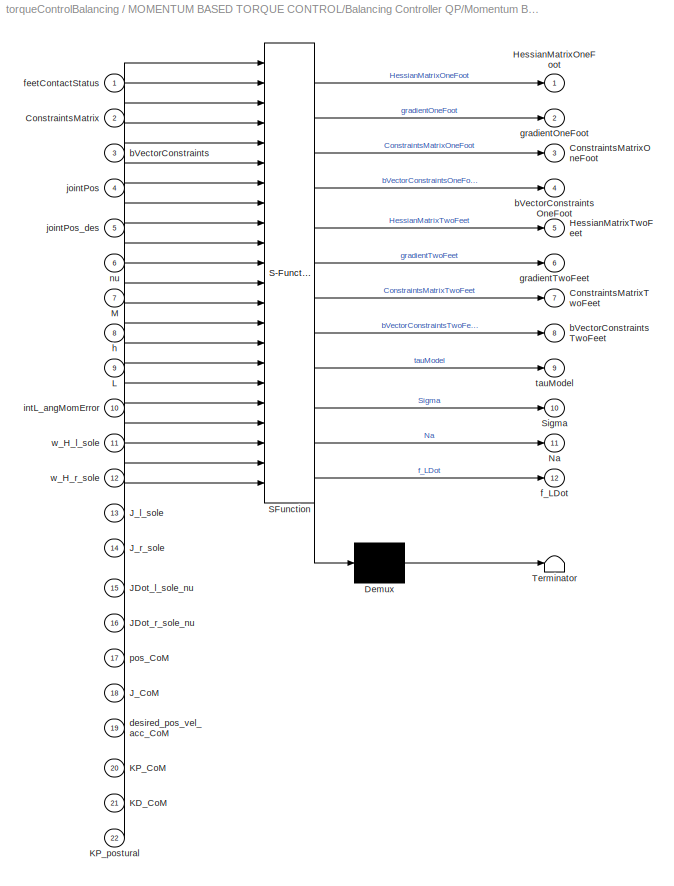
BLOCK [SubSystem] MOMENTUM BASED TORQUE CONTROL/Balancing Controller QP/Momentum Based Balancing Controller\n
  ErrorFcn = Stateflow.Translate.translate
  PermitHierarchicalResolution = ExplicitOnly
  Ports = [22, 12]
  RequestExecContextInheritance = off
  SFBlockType = MATLAB Function
  SID = 2407
  TreatAsAtomicUnit = on
BLOCK [Demux] MOMENTUM BASED TORQUE CONTROL/Balancing Controller QP/Momentum Based Balancing Controller\n/ Demux 
  Outputs = 1
  Ports = [1, 1]
  SID = 2407::3820
BLOCK [S-Function] MOMENTUM BASED TORQUE CONTROL/Balancing Controller QP/Momentum Based Balancing Controller\n/ SFunction 
  EnableBusSupport = off
  FunctionName = sf_sfun
  Parameters = Config,Gain,Reg
  PortCounts = [22 13]
  Ports = [22, 13]
  SFcnIsStateOwnerBlock = off
  SFunctionDeploymentMode = off
  SID = 2407::3819
  Tag = Stateflow S-Function 17
BLOCK [Terminator] MOMENTUM BASED TORQUE CONTROL/Balancing Controller QP/Momentum Based Balancing Controller\n/ Terminator 
  SID = 2407::3821
BLOCK [Inport] MOMENTUM BASED TORQUE CONTROL/Balancing Controller QP/Momentum Based Balancing Controller\n/ConstraintsMatrix
  Port = 2
  SID = 2407::808
BLOCK [Outport] MOMENTUM BASED TORQUE CONTROL/Balancing Controller QP/Momentum Based Balancing Controller\n/ConstraintsMatrixOneFoot
  Port = 3
  SID = 2407::5
  VectorParamsAs1DForOutWhenUnconnected = off
BLOCK [Outport] MOMENTUM BASED TORQUE CONTROL/Balancing Controller QP/Momentum Based Balancing Controller\n/ConstraintsMatrixTwoFeet
  Port = 7
  SID = 2407::811
  VectorParamsAs1DForOutWhenUnconnected = off
BLOCK [Outport] MOMENTUM BASED TORQUE CONTROL/Balancing Controller QP/Momentum Based Balancing Controller\n/HessianMatrixOneFoot
  SID = 2407::824
  VectorParamsAs1DForOutWhenUnconnected = off
BLOCK [Outport] MOMENTUM BASED TORQUE CONTROL/Balancing Controller QP/Momentum Based Balancing Controller\n/HessianMatrixTwoFeet
  Port = 5
  SID = 2407::827
  VectorParamsAs1DForOutWhenUnconnected = off
BLOCK [Inport] MOMENTUM BASED TORQUE CONTROL/Balancing Controller QP/Momentum Based Balancing Controller\n/JDot_l_sole_nu
  Port = 15
  SID = 2407::784
BLOCK [Inport] MOMENTUM BASED TORQUE CONTROL/Balancing Controller QP/Momentum Based Balancing Controller\n/JDot_r_sole_nu
  Port = 16
  SID = 2407::785
BLOCK [Inport] MOMENTUM BASED TORQUE CONTROL/Balancing Controller QP/Momentum Based Balancing Controller\n/J_CoM
  Port = 18
  SID = 2407::31
BLOCK [Inport] MOMENTUM BASED TORQUE CONTROL/Balancing Controller QP/Momentum Based Balancing Controller\n/J_l_sole
  Port = 13
  SID = 2407::841
BLOCK [Inport] MOMENTUM BASED TORQUE CONTROL/Balancing Controller QP/Momentum Based Balancing Controller\n/J_r_sole
  Port = 14
  SID = 2407::790
BLOCK [Inport] MOMENTUM BASED TORQUE CONTROL/Balancing Controller QP/Momentum Based Balancing Controller\n/KD_CoM
  Port = 21
  SID = 2407::845
BLOCK [Inport] MOMENTUM BASED TORQUE CONTROL/Balancing Controller QP/Momentum Based Balancing Controller\n/KP_CoM
  Port = 20
  SID = 2407::32
BLOCK [Inport] MOMENTUM BASED TORQUE CONTROL/Balancing Controller QP/Momentum Based Balancing Controller\n/KP_postural
  Port = 22
  SID = 2407::846
BLOCK [Inport] MOMENTUM BASED TORQUE CONTROL/Balancing Controller QP/Momentum Based Balancing Controller\n/L
  Port = 9
  SID = 2407::26
BLOCK [Inport] MOMENTUM BASED TORQUE CONTROL/Balancing Controller QP/Momentum Based Balancing Controller\n/M
  Port = 7
  SID = 2407::23
BLOCK [Outport] MOMENTUM BASED TORQUE CONTROL/Balancing Controller QP/Momentum Based Balancing Controller\n/Na
  Port = 11
  SID = 2407::820
  VectorParamsAs1DForOutWhenUnconnected = off
BLOCK [Outport] MOMENTUM BASED TORQUE CONTROL/Balancing Controller QP/Momentum Based Balancing Controller\n/Sigma
  Port = 10
  SID = 2407::816
  VectorParamsAs1DForOutWhenUnconnected = off
BLOCK [Inport] MOMENTUM BASED TORQUE CONTROL/Balancing Controller QP/Momentum Based Balancing Controller\n/bVectorConstraints
  Port = 3
  SID = 2407::809
BLOCK [Outport] MOMENTUM BASED TORQUE CONTROL/Balancing Controller QP/Momentum Based Balancing Controller\n/bVectorConstraintsOneFoot
  Port = 4
  SID = 2407::810
  VectorParamsAs1DForOutWhenUnconnected = off
BLOCK [Outport] MOMENTUM BASED TORQUE CONTROL/Balancing Controller QP/Momentum Based Balancing Controller\n/bVectorConstraintsTwoFeet
  Port = 8
  SID = 2407::812
  VectorParamsAs1DForOutWhenUnconnected = off
BLOCK [Inport] MOMENTUM BASED TORQUE CONTROL/Balancing Controller QP/Momentum Based Balancing Controller\n/desired_pos_vel_acc_CoM
  Port = 19
  SID = 2407::30
BLOCK [Outport] MOMENTUM BASED TORQUE CONTROL/Balancing Controller QP/Momentum Based Balancing Controller\n/f_LDot
  Port = 12
  SID = 2407::821
  VectorParamsAs1DForOutWhenUnconnected = off
BLOCK [Inport] MOMENTUM BASED TORQUE CONTROL/Balancing Controller QP/Momentum Based Balancing Controller\n/feetContactStatus
  SID = 2407::28
BLOCK [Outport] MOMENTUM BASED TORQUE CONTROL/Balancing Controller QP/Momentum Based Balancing Controller\n/gradientOneFoot
  Port = 2
  SID = 2407::822
  VectorParamsAs1DForOutWhenUnconnected = off
BLOCK [Outport] MOMENTUM BASED TORQUE CONTROL/Balancing Controller QP/Momentum Based Balancing Controller\n/gradientTwoFeet
  Port = 6
  SID = 2407::828
  VectorParamsAs1DForOutWhenUnconnected = off
BLOCK [Inport] MOMENTUM BASED TORQUE CONTROL/Balancing Controller QP/Momentum Based Balancing Controller\n/h
  Port = 8
  SID = 2407::24
BLOCK [Inport] MOMENTUM BASED TORQUE CONTROL/Balancing Controller QP/Momentum Based Balancing Controller\n/intL_angMomError
  Port = 10
  SID = 2407::21
BLOCK [Inport] MOMENTUM BASED TORQUE CONTROL/Balancing Controller QP/Momentum Based Balancing Controller\n/jointPos
  Port = 4
  SID = 2407::29
BLOCK [Inport] MOMENTUM BASED TORQUE CONTROL/Balancing Controller QP/Momentum Based Balancing Controller\n/jointPos_des
  Port = 5
  SID = 2407::1
BLOCK [Inport] MOMENTUM BASED TORQUE CONTROL/Balancing Controller QP/Momentum Based Balancing Controller\n/nu
  Port = 6
  SID = 2407::22
BLOCK [Inport] MOMENTUM BASED TORQUE CONTROL/Balancing Controller QP/Momentum Based Balancing Controller\n/pos_CoM
  Port = 17
  SID = 2407::798
BLOCK [Outport] MOMENTUM BASED TORQUE CONTROL/Balancing Controller QP/Momentum Based Balancing Controller\n/tauModel
  Port = 9
  SID = 2407::815
  VectorParamsAs1DForOutWhenUnconnected = off
BLOCK [Inport] MOMENTUM BASED TORQUE CONTROL/Balancing Controller QP/Momentum Based Balancing Controller\n/w_H_l_sole
  Port = 11
  SID = 2407::800
BLOCK [Inport] MOMENTUM BASED TORQUE CONTROL/Balancing Controller QP/Momentum Based Balancing Controller\n/w_H_r_sole
  Port = 12
  SID = 2407::27
BLOCK [Inport] MOMENTUM BASED TORQUE CONTROL/Balancing Controller QP/desired_pos_vel_acc_CoM
  Port = 19
  SID = 2365
BLOCK [Inport] MOMENTUM BASED TORQUE CONTROL/Balancing Controller QP/feetContactStatus
  Port = 15
  SID = 2363
BLOCK [Inport] MOMENTUM BASED TORQUE CONTROL/Balancing Controller QP/h
  Port = 2
  SID = 2361
BLOCK [Inport] MOMENTUM BASED TORQUE CONTROL/Balancing Controller QP/jointPos
  Port = 12
  SID = 2358
BLOCK [Inport] MOMENTUM BASED TORQUE CONTROL/Balancing Controller QP/jointPos_des
  Port = 20
  SID = 2364
BLOCK [Inport] MOMENTUM BASED TORQUE CONTROL/Balancing Controller QP/nu
  Port = 13
  SID = 2359
BLOCK [Inport] MOMENTUM BASED TORQUE CONTROL/Balancing Controller QP/pos_CoM
  Port = 9
  SID = 4383
BLOCK [Inport] MOMENTUM BASED TORQUE CONTROL/Balancing Controller QP/state
  Port = 14
  SID = 4387
BLOCK [Outport] MOMENTUM BASED TORQUE CONTROL/Balancing Controller QP/tau_star 
  SID = 2414
  VectorParamsAs1DForOutWhenUnconnected = off
BLOCK [Inport] MOMENTUM BASED TORQUE CONTROL/Balancing Controller QP/w_H_l_sole
  Port = 4
  SID = 4384
BLOCK [Inport] MOMENTUM BASED TORQUE CONTROL/Balancing Controller QP/w_H_r_sole
  Port = 5
  SID = 4391
BLOCK [SubSystem] MOMENTUM BASED TORQUE CONTROL/Dynamics and Kinematics
  Ports = [3, 11]
  RequestExecContextInheritance = off
  SID = 2341
BLOCK [SubSystem] MOMENTUM BASED TORQUE CONTROL/Dynamics and Kinematics/Dynamics
  Ports = [3, 3]
  RequestExecContextInheritance = off
  SID = 4353
BLOCK [SubSystem] MOMENTUM BASED TORQUE CONTROL/Dynamics and Kinematics/Dynamics/Add motors reflected inertia
  Ports = [1, 1]
  RequestExecContextInheritance = off
  SID = 4515
BLOCK [SubSystem] MOMENTUM BASED TORQUE CONTROL/Dynamics and Kinematics/Dynamics/Add motors reflected inertia/Add motor reflected inertias
  ErrorFcn = Stateflow.Translate.translate
  PermitHierarchicalResolution = ExplicitOnly
  Ports = [1, 1]
  RequestExecContextInheritance = off
  SFBlockType = MATLAB Function
  SID = 4518
  TreatAsAtomicUnit = on
BLOCK [Demux] MOMENTUM BASED TORQUE CONTROL/Dynamics and Kinematics/Dynamics/Add motors reflected inertia/Add motor reflected inertias/ Demux 
  Outputs = 1
  Ports = [1, 1]
  SID = 4518::120
BLOCK [S-Function] MOMENTUM BASED TORQUE CONTROL/Dynamics and Kinematics/Dynamics/Add motors reflected inertia/Add motor reflected inertias/ SFunction 
  EnableBusSupport = off
  FunctionName = sf_sfun
  Parameters = Config
  PortCounts = [1 2]
  Ports = [1, 2]
  SFcnIsStateOwnerBlock = off
  SFunctionDeploymentMode = off
  SID = 4518::119
  Tag = Stateflow S-Function 6
BLOCK [Terminator] MOMENTUM BASED TORQUE CONTROL/Dynamics and Kinematics/Dynamics/Add motors reflected inertia/Add motor reflected inertias/ Terminator 
  SID = 4518::121
BLOCK [Inport] MOMENTUM BASED TORQUE CONTROL/Dynamics and Kinematics/Dynamics/Add motors reflected inertia/Add motor reflected inertias/M
  SID = 4518::1
BLOCK [Outport] MOMENTUM BASED TORQUE CONTROL/Dynamics and Kinematics/Dynamics/Add motors reflected inertia/Add motor reflected inertias/M_with_inertia
  SID = 4518::5
  VectorParamsAs1DForOutWhenUnconnected = off
BLOCK [Constant] MOMENTUM BASED TORQUE CONTROL/Dynamics and Kinematics/Dynamics/Add motors reflected inertia/Constant
  SID = 4846
  Value = Config.USE_MOTOR_REFLECTED_INERTIA
BLOCK [Inport] MOMENTUM BASED TORQUE CONTROL/Dynamics and Kinematics/Dynamics/Add motors reflected inertia/M
  SID = 4516
BLOCK [Outport] MOMENTUM BASED TORQUE CONTROL/Dynamics and Kinematics/Dynamics/Add motors reflected inertia/M_with_motor_inertia
  SID = 4517
  VectorParamsAs1DForOutWhenUnconnected = off
BLOCK [Switch] MOMENTUM BASED TORQUE CONTROL/Dynamics and Kinematics/Dynamics/Add motors reflected inertia/Switch
  Criteria = u2 > Threshold
  InputSameDT = off
  SID = 4844
  SaturateOnIntegerOverflow = off
BLOCK [Reference] MOMENTUM BASED TORQUE CONTROL/Dynamics and Kinematics/Dynamics/CentroidalMomentum  REF=WBToolboxLibrary/Model/Dynamics/CentroidalMomentum
  Ports = [4, 1]
  RTWMemSecDataConstants = Inherit from model
  RTWMemSecDataInternal = Inherit from model
  RTWMemSecDataParameters = Inherit from model
  RTWMemSecFuncExecute = Inherit from model
  RTWMemSecFuncInitTerm = Inherit from model
  SID = 2345
  SourceBlock = WBToolboxLibrary/Model/Dynamics/CentroidalMomentum
  SourceProductName = WholeBodyToolbox
  SourceType = CentroidalMomentum
BLOCK [Selector] MOMENTUM BASED TORQUE CONTROL/Dynamics and Kinematics/Dynamics/CoM6D -> \nCoMXYZ1
  IndexOptions = Index vector (dialog)
  Indices = [7:6+ROBOT_DOF]
  InputPortWidth = 6+ROBOT_DOF
  OutputSizes = 1
  Ports = [1, 1]
  SID = 2346
BLOCK [Selector] MOMENTUM BASED TORQUE CONTROL/Dynamics and Kinematics/Dynamics/CoM6D -> \nCoMXYZ2
  IndexOptions = Index vector (dialog)
  Indices = [1 2 3 4 5 6]
  InputPortWidth = 6+ROBOT_DOF
  OutputSizes = 1
  Ports = [1, 1]
  SID = 2347
BLOCK [Reference] MOMENTUM BASED TORQUE CONTROL/Dynamics and Kinematics/Dynamics/GetBiasForces  REF=WBToolboxLibrary/Model/Dynamics/GetBiasForces
  Ports = [4, 1]
  RTWMemSecDataConstants = Inherit from model
  RTWMemSecDataInternal = Inherit from model
  RTWMemSecDataParameters = Inherit from model
  RTWMemSecFuncExecute = Inherit from model
  RTWMemSecFuncInitTerm = Inherit from model
  SID = 2348
  SourceBlock = WBToolboxLibrary/Model/Dynamics/GetBiasForces
  SourceProductName = WholeBodyToolbox
  SourceType = Get Generalized Bias Forces
BLOCK [Outport] MOMENTUM BASED TORQUE CONTROL/Dynamics and Kinematics/Dynamics/L
  Port = 3
  SID = 4359
  VectorParamsAs1DForOutWhenUnconnected = off
BLOCK [Outport] MOMENTUM BASED TORQUE CONTROL/Dynamics and Kinematics/Dynamics/M
  SID = 4357
  VectorParamsAs1DForOutWhenUnconnected = off
BLOCK [Reference] MOMENTUM BASED TORQUE CONTROL/Dynamics and Kinematics/Dynamics/MassMatrix  REF=WBToolboxLibrary/Model/Dynamics/MassMatrix
  Ports = [2, 1]
  RTWMemSecDataConstants = Inherit from model
  RTWMemSecDataInternal = Inherit from model
  RTWMemSecDataParameters = Inherit from model
  RTWMemSecFuncExecute = Inherit from model
  RTWMemSecFuncInitTerm = Inherit from model
  SID = 2349
  SourceBlock = WBToolboxLibrary/Model/Dynamics/MassMatrix
  SourceProductName = WholeBodyToolbox
  SourceType = MassMatrix
BLOCK [Outport] MOMENTUM BASED TORQUE CONTROL/Dynamics and Kinematics/Dynamics/h
  Port = 2
  SID = 4358
  VectorParamsAs1DForOutWhenUnconnected = off
BLOCK [Inport] MOMENTUM BASED TORQUE CONTROL/Dynamics and Kinematics/Dynamics/jointPos
  Port = 2
  SID = 4355
BLOCK [Inport] MOMENTUM BASED TORQUE CONTROL/Dynamics and Kinematics/Dynamics/nu
  Port = 3
  SID = 4356
BLOCK [Inport] MOMENTUM BASED TORQUE CONTROL/Dynamics and Kinematics/Dynamics/w_H_b
  SID = 4354
BLOCK [Outport] MOMENTUM BASED TORQUE CONTROL/Dynamics and Kinematics/JDot_l_sole_nu
  Port = 10
  SID = 4381
  VectorParamsAs1DForOutWhenUnconnected = off
BLOCK [Outport] MOMENTUM BASED TORQUE CONTROL/Dynamics and Kinematics/JDot_r_sole_nu
  Port = 11
  SID = 4382
  VectorParamsAs1DForOutWhenUnconnected = off
BLOCK [Outport] MOMENTUM BASED TORQUE CONTROL/Dynamics and Kinematics/J_CoM
  Port = 8
  SID = 4379
  VectorParamsAs1DForOutWhenUnconnected = off
BLOCK [Outport] MOMENTUM BASED TORQUE CONTROL/Dynamics and Kinematics/J_l_sole
  Port = 6
  SID = 4377
  VectorParamsAs1DForOutWhenUnconnected = off
BLOCK [Outport] MOMENTUM BASED TORQUE CONTROL/Dynamics and Kinematics/J_r_sole
  Port = 7
  SID = 4378
  VectorParamsAs1DForOutWhenUnconnected = off
BLOCK [SubSystem] MOMENTUM BASED TORQUE CONTROL/Dynamics and Kinematics/Kinematics
  Ports = [3, 8]
  RequestExecContextInheritance = off
  SID = 4321
BLOCK [Reference] MOMENTUM BASED TORQUE CONTROL/Dynamics and Kinematics/Kinematics/CoM  REF=WBToolboxLibrary/Model/Kinematics/ForwardKinematics
  Ports = [2, 1]
  RTWMemSecDataConstants = Inherit from model
  RTWMemSecDataInternal = Inherit from model
  RTWMemSecDataParameters = Inherit from model
  RTWMemSecFuncExecute = Inherit from model
  RTWMemSecFuncInitTerm = Inherit from model
  SID = 4363
  SourceBlock = WBToolboxLibrary/Model/Kinematics/ForwardKinematics
  SourceProductName = WholeBodyToolbox
  SourceType = ForwardKinematics
  frameName = Frames.COM
BLOCK [Selector] MOMENTUM BASED TORQUE CONTROL/Dynamics and Kinematics/Kinematics/CoM6D -> \nCoMXYZ2
  IndexOptions = Index vector (dialog),Index vector (dialog)
  Indices = [1 2 3],[4]
  InputPortWidth = 7
  NumberOfDimensions = 2
  OutputSizes = 1,1
  Ports = [1, 1]
  SID = 4364
BLOCK [Selector] MOMENTUM BASED TORQUE CONTROL/Dynamics and Kinematics/Kinematics/CoM6D -> \nCoMXYZ3
  IndexOptions = Index vector (dialog)
  Indices = [7:6+ROBOT_DOF]
  InputPortWidth = 6+ROBOT_DOF
  OutputSizes = 1
  Ports = [1, 1]
  SID = 2369
BLOCK [Selector] MOMENTUM BASED TORQUE CONTROL/Dynamics and Kinematics/Kinematics/CoM6D -> \nCoMXYZ4
  IndexOptions = Index vector (dialog)
  Indices = [1 2 3 4 5 6]
  InputPortWidth = 6+ROBOT_DOF
  OutputSizes = 1
  Ports = [1, 1]
  SID = 2370
BLOCK [Reference] MOMENTUM BASED TORQUE CONTROL/Dynamics and Kinematics/Kinematics/DotJNu l_sole  REF=WBToolboxLibrary/Model/Jacobians/DotJNu
  Ports = [4, 1]
  RTWMemSecDataConstants = Inherit from model
  RTWMemSecDataInternal = Inherit from model
  RTWMemSecDataParameters = Inherit from model
  RTWMemSecFuncExecute = Inherit from model
  RTWMemSecFuncInitTerm = Inherit from model
  SID = 2375
  SourceBlock = WBToolboxLibrary/Model/Jacobians/DotJNu
  SourceProductName = WholeBodyToolbox
  SourceType = DotJNu
  frameName = Frames.LEFT_FOOT
BLOCK [Reference] MOMENTUM BASED TORQUE CONTROL/Dynamics and Kinematics/Kinematics/DotJNu r_sole  REF=WBToolboxLibrary/Model/Jacobians/DotJNu
  Ports = [4, 1]
  RTWMemSecDataConstants = Inherit from model
  RTWMemSecDataInternal = Inherit from model
  RTWMemSecDataParameters = Inherit from model
  RTWMemSecFuncExecute = Inherit from model
  RTWMemSecFuncInitTerm = Inherit from model
  SID = 2376
  SourceBlock = WBToolboxLibrary/Model/Jacobians/DotJNu
  SourceProductName = WholeBodyToolbox
  SourceType = DotJNu
  frameName = Frames.RIGHT_FOOT
BLOCK [Goto] MOMENTUM BASED TORQUE CONTROL/Dynamics and Kinematics/Kinematics/Goto2
  GotoTag = pos_CoM
  SID = 4797
  TagVisibility = global
BLOCK [Outport] MOMENTUM BASED TORQUE CONTROL/Dynamics and Kinematics/Kinematics/JDot_l_sole_nu
  Port = 7
  SID = 4372
  VectorParamsAs1DForOutWhenUnconnected = off
BLOCK [Outport] MOMENTUM BASED TORQUE CONTROL/Dynamics and Kinematics/Kinematics/JDot_r_sole_nu
  Port = 8
  SID = 4374
  VectorParamsAs1DForOutWhenUnconnected = off
BLOCK [Outport] MOMENTUM BASED TORQUE CONTROL/Dynamics and Kinematics/Kinematics/J_CoM
  Port = 5
  SID = 4370
  VectorParamsAs1DForOutWhenUnconnected = off
BLOCK [Outport] MOMENTUM BASED TORQUE CONTROL/Dynamics and Kinematics/Kinematics/J_l_sole
  Port = 3
  SID = 4368
  VectorParamsAs1DForOutWhenUnconnected = off
BLOCK [Outport] MOMENTUM BASED TORQUE CONTROL/Dynamics and Kinematics/Kinematics/J_r_sole
  Port = 4
  SID = 4369
  VectorParamsAs1DForOutWhenUnconnected = off
BLOCK [Reference] MOMENTUM BASED TORQUE CONTROL/Dynamics and Kinematics/Kinematics/Jacobian com  REF=WBToolboxLibrary/Model/Jacobians/Jacobian
  Ports = [2, 1]
  RTWMemSecDataConstants = Inherit from model
  RTWMemSecDataInternal = Inherit from model
  RTWMemSecDataParameters = Inherit from model
  RTWMemSecFuncExecute = Inherit from model
  RTWMemSecFuncInitTerm = Inherit from model
  SID = 2378
  SourceBlock = WBToolboxLibrary/Model/Jacobians/Jacobian
  SourceProductName = WholeBodyToolbox
  SourceType = Jacobian
  frameName = Frames.COM
BLOCK [Reference] MOMENTUM BASED TORQUE CONTROL/Dynamics and Kinematics/Kinematics/Jacobian l_sole  REF=WBToolboxLibrary/Model/Jacobians/Jacobian
  Ports = [2, 1]
  RTWMemSecDataConstants = Inherit from model
  RTWMemSecDataInternal = Inherit from model
  RTWMemSecDataParameters = Inherit from model
  RTWMemSecFuncExecute = Inherit from model
  RTWMemSecFuncInitTerm = Inherit from model
  SID = 2379
  SourceBlock = WBToolboxLibrary/Model/Jacobians/Jacobian
  SourceProductName = WholeBodyToolbox
  SourceType = Jacobian
  frameName = Frames.LEFT_FOOT
BLOCK [Reference] MOMENTUM BASED TORQUE CONTROL/Dynamics and Kinematics/Kinematics/Jacobian r_sole  REF=WBToolboxLibrary/Model/Jacobians/Jacobian
  Ports = [2, 1]
  RTWMemSecDataConstants = Inherit from model
  RTWMemSecDataInternal = Inherit from model
  RTWMemSecDataParameters = Inherit from model
  RTWMemSecFuncExecute = Inherit from model
  RTWMemSecFuncInitTerm = Inherit from model
  SID = 2380
  SourceBlock = WBToolboxLibrary/Model/Jacobians/Jacobian
  SourceProductName = WholeBodyToolbox
  SourceType = Jacobian
  frameName = Frames.RIGHT_FOOT
BLOCK [Inport] MOMENTUM BASED TORQUE CONTROL/Dynamics and Kinematics/Kinematics/jointPos
  Port = 2
  SID = 4339
BLOCK [Reference] MOMENTUM BASED TORQUE CONTROL/Dynamics and Kinematics/Kinematics/l_sole  REF=WBToolboxLibrary/Model/Kinematics/ForwardKinematics
  Ports = [2, 1]
  RTWMemSecDataConstants = Inherit from model
  RTWMemSecDataInternal = Inherit from model
  RTWMemSecDataParameters = Inherit from model
  RTWMemSecFuncExecute = Inherit from model
  RTWMemSecFuncInitTerm = Inherit from model
  SID = 2405
  SourceBlock = WBToolboxLibrary/Model/Kinematics/ForwardKinematics
  SourceProductName = WholeBodyToolbox
  SourceType = ForwardKinematics
  frameName = Frames.LEFT_FOOT
BLOCK [Inport] MOMENTUM BASED TORQUE CONTROL/Dynamics and Kinematics/Kinematics/nu
  SID = 4342
BLOCK [Outport] MOMENTUM BASED TORQUE CONTROL/Dynamics and Kinematics/Kinematics/pos_CoM
  Port = 6
  SID = 4371
  VectorParamsAs1DForOutWhenUnconnected = off
BLOCK [Reference] MOMENTUM BASED TORQUE CONTROL/Dynamics and Kinematics/Kinematics/r_sole  REF=WBToolboxLibrary/Model/Kinematics/ForwardKinematics
  Ports = [2, 1]
  RTWMemSecDataConstants = Inherit from model
  RTWMemSecDataInternal = Inherit from model
  RTWMemSecDataParameters = Inherit from model
  RTWMemSecFuncExecute = Inherit from model
  RTWMemSecFuncInitTerm = Inherit from model
  SID = 2406
  SourceBlock = WBToolboxLibrary/Model/Kinematics/ForwardKinematics
  SourceProductName = WholeBodyToolbox
  SourceType = ForwardKinematics
  frameName = Frames.RIGHT_FOOT
BLOCK [Inport] MOMENTUM BASED TORQUE CONTROL/Dynamics and Kinematics/Kinematics/w_H_b
  Port = 3
  SID = 4336
BLOCK [Outport] MOMENTUM BASED TORQUE CONTROL/Dynamics and Kinematics/Kinematics/w_H_l_sole
  SID = 4350
  VectorParamsAs1DForOutWhenUnconnected = off
BLOCK [Outport] MOMENTUM BASED TORQUE CONTROL/Dynamics and Kinematics/Kinematics/w_H_r_sole
  Port = 2
  SID = 4367
  VectorParamsAs1DForOutWhenUnconnected = off
BLOCK [Outport] MOMENTUM BASED TORQUE CONTROL/Dynamics and Kinematics/L
  Port = 3
  SID = 2352
  VectorParamsAs1DForOutWhenUnconnected = off
BLOCK [Outport] MOMENTUM BASED TORQUE CONTROL/Dynamics and Kinematics/M
  SID = 2350
  VectorParamsAs1DForOutWhenUnconnected = off
BLOCK [Outport] MOMENTUM BASED TORQUE CONTROL/Dynamics and Kinematics/h
  Port = 2
  SID = 2351
  VectorParamsAs1DForOutWhenUnconnected = off
BLOCK [Inport] MOMENTUM BASED TORQUE CONTROL/Dynamics and Kinematics/jointPos
  Port = 3
  SID = 2343
BLOCK [Inport] MOMENTUM BASED TORQUE CONTROL/Dynamics and Kinematics/nu
  Port = 2
  SID = 2344
BLOCK [Outport] MOMENTUM BASED TORQUE CONTROL/Dynamics and Kinematics/pos_CoM
  Port = 9
  SID = 4380
  VectorParamsAs1DForOutWhenUnconnected = off
BLOCK [Inport] MOMENTUM BASED TORQUE CONTROL/Dynamics and Kinematics/w_H_b
  SID = 2342
BLOCK [Outport] MOMENTUM BASED TORQUE CONTROL/Dynamics and Kinematics/w_H_l_sole
  Port = 4
  SID = 4375
  VectorParamsAs1DForOutWhenUnconnected = off
BLOCK [Outport] MOMENTUM BASED TORQUE CONTROL/Dynamics and Kinematics/w_H_r_sole
  Port = 5
  SID = 4376
  VectorParamsAs1DForOutWhenUnconnected = off
BLOCK [Inport] MOMENTUM BASED TORQUE CONTROL/IMU_meas
  Port = 3
  SID = 4840
BLOCK [SubSystem] MOMENTUM BASED TORQUE CONTROL/Joint Torque Saturation
  Ports = [1, 1]
  RequestExecContextInheritance = off
  SID = 4553
BLOCK [Constant] MOMENTUM BASED TORQUE CONTROL/Joint Torque Saturation/Constant
  SID = 4558
  Value = Config.SATURATE_TORQUE_DERIVATIVE
BLOCK [Constant] MOMENTUM BASED TORQUE CONTROL/Joint Torque Saturation/Constant1
  SID = 4842
  Value = Config.tStep
BLOCK [Constant] MOMENTUM BASED TORQUE CONTROL/Joint Torque Saturation/Constant2
  SID = 4843
  Value = Sat.uDotMax
BLOCK [Goto] MOMENTUM BASED TORQUE CONTROL/Joint Torque Saturation/Goto
  GotoTag = tau_star_afterSat
  SID = 4728
  TagVisibility = global
BLOCK [SubSystem] MOMENTUM BASED TORQUE CONTROL/Joint Torque Saturation/Saturate Torque Derivative
  ErrorFcn = Stateflow.Translate.translate
  PermitHierarchicalResolution = ExplicitOnly
  Ports = [4, 1]
  RequestExecContextInheritance = off
  SFBlockType = MATLAB Function
  SID = 4556
  TreatAsAtomicUnit = on
BLOCK [Demux] MOMENTUM BASED TORQUE CONTROL/Joint Torque Saturation/Saturate Torque Derivative/ Demux 
  Outputs = 1
  Ports = [1, 1]
  SID = 4556::115
BLOCK [S-Function] MOMENTUM BASED TORQUE CONTROL/Joint Torque Saturation/Saturate Torque Derivative/ SFunction 
  EnableBusSupport = off
  FunctionName = sf_sfun
  PortCounts = [4 2]
  Ports = [4, 2]
  SFcnIsStateOwnerBlock = off
  SFunctionDeploymentMode = off
  SID = 4556::114
  Tag = Stateflow S-Function 11
BLOCK [Terminator] MOMENTUM BASED TORQUE CONTROL/Joint Torque Saturation/Saturate Torque Derivative/ Terminator 
  SID = 4556::116
BLOCK [Inport] MOMENTUM BASED TORQUE CONTROL/Joint Torque Saturation/Saturate Torque Derivative/tStep
  Port = 3
  SID = 4556::67
BLOCK [Inport] MOMENTUM BASED TORQUE CONTROL/Joint Torque Saturation/Saturate Torque Derivative/u
  SID = 4556::1
BLOCK [Inport] MOMENTUM BASED TORQUE CONTROL/Joint Torque Saturation/Saturate Torque Derivative/uDotMax
  Port = 4
  SID = 4556::68
BLOCK [Outport] MOMENTUM BASED TORQUE CONTROL/Joint Torque Saturation/Saturate Torque Derivative/uSat
  SID = 4556::5
  VectorParamsAs1DForOutWhenUnconnected = off
BLOCK [Inport] MOMENTUM BASED TORQUE CONTROL/Joint Torque Saturation/Saturate Torque Derivative/u_0
  Port = 2
  SID = 4556::22
BLOCK [Saturate] MOMENTUM BASED TORQUE CONTROL/Joint Torque Saturation/Saturation
  LowerLimit = -Sat.torque
  SID = 2353
  UpperLimit = Sat.torque
BLOCK [Switch] MOMENTUM BASED TORQUE CONTROL/Joint Torque Saturation/Switch
  Criteria = u2 > Threshold
  InputSameDT = off
  SID = 4557
  SaturateOnIntegerOverflow = off
BLOCK [Reference] MOMENTUM BASED TORQUE CONTROL/Joint Torque Saturation/holder\n  REF=WBToolboxLibrary/Utilities/holder\n
  Ports = [1, 1]
  RTWMemSecDataConstants = Inherit from model
  RTWMemSecDataInternal = Inherit from model
  RTWMemSecDataParameters = Inherit from model
  RTWMemSecFuncExecute = Inherit from model
  RTWMemSecFuncInitTerm = Inherit from model
  SID = 4559
  SourceBlock = WBToolboxLibrary/Utilities/holder\n
  SourceProductName = WholeBodyToolbox
  SourceType = Holder
BLOCK [Inport] MOMENTUM BASED TORQUE CONTROL/Joint Torque Saturation/tau_star
  SID = 4554
BLOCK [Outport] MOMENTUM BASED TORQUE CONTROL/Joint Torque Saturation/tau_star_sat
  SID = 4555
  VectorParamsAs1DForOutWhenUnconnected = off
BLOCK [SubSystem] MOMENTUM BASED TORQUE CONTROL/Robot State and References
  Ports = [5, 9]
  Priority = -10
  RequestExecContextInheritance = off
  SID = 2087
BLOCK [SubSystem] MOMENTUM BASED TORQUE CONTROL/Robot State and References/Compute State Velocity
  Ports = [4, 1]
  RequestExecContextInheritance = off
  SID = 4211
BLOCK [SubSystem] MOMENTUM BASED TORQUE CONTROL/Robot State and References/Compute State Velocity/Compute Base Velocity
  ErrorFcn = Stateflow.Translate.translate
  PermitHierarchicalResolution = ExplicitOnly
  Ports = [4, 1]
  RequestExecContextInheritance = off
  SFBlockType = MATLAB Function
  SID = 4215
  TreatAsAtomicUnit = on
BLOCK [Demux] MOMENTUM BASED TORQUE CONTROL/Robot State and References/Compute State Velocity/Compute Base Velocity/ Demux 
  Outputs = 1
  Ports = [1, 1]
  SID = 4215::3844
BLOCK [S-Function] MOMENTUM BASED TORQUE CONTROL/Robot State and References/Compute State Velocity/Compute Base Velocity/ SFunction 
  EnableBusSupport = off
  FunctionName = sf_sfun
  Parameters = Reg
  PortCounts = [4 2]
  Ports = [4, 2]
  SFcnIsStateOwnerBlock = off
  SFunctionDeploymentMode = off
  SID = 4215::3843
  Tag = Stateflow S-Function 7
BLOCK [Terminator] MOMENTUM BASED TORQUE CONTROL/Robot State and References/Compute State Velocity/Compute Base Velocity/ Terminator 
  SID = 4215::3845
BLOCK [Inport] MOMENTUM BASED TORQUE CONTROL/Robot State and References/Compute State Velocity/Compute Base Velocity/J_l_sole
  SID = 4215::1
BLOCK [Inport] MOMENTUM BASED TORQUE CONTROL/Robot State and References/Compute State Velocity/Compute Base Velocity/J_r_sole
  Port = 2
  SID = 4215::1472
BLOCK [Inport] MOMENTUM BASED TORQUE CONTROL/Robot State and References/Compute State Velocity/Compute Base Velocity/feetContactStatus
  Port = 3
  SID = 4215::1473
BLOCK [Inport] MOMENTUM BASED TORQUE CONTROL/Robot State and References/Compute State Velocity/Compute Base Velocity/jointVel
  Port = 4
  SID = 4215::23
BLOCK [Outport] MOMENTUM BASED TORQUE CONTROL/Robot State and References/Compute State Velocity/Compute Base Velocity/nu_b
  SID = 4215::5
  VectorParamsAs1DForOutWhenUnconnected = off
BLOCK [SubSystem] MOMENTUM BASED TORQUE CONTROL/Robot State and References/Compute State Velocity/Feet Jacobians
  Ports = [2, 2]
  RequestExecContextInheritance = off
  SID = 4216
BLOCK [Outport] MOMENTUM BASED TORQUE CONTROL/Robot State and References/Compute State Velocity/Feet Jacobians/J_l_sole
  SID = 4221
  VectorParamsAs1DForOutWhenUnconnected = off
BLOCK [Outport] MOMENTUM BASED TORQUE CONTROL/Robot State and References/Compute State Velocity/Feet Jacobians/J_r_sole
  Port = 2
  SID = 4222
  VectorParamsAs1DForOutWhenUnconnected = off
BLOCK [Reference] MOMENTUM BASED TORQUE CONTROL/Robot State and References/Compute State Velocity/Feet Jacobians/Jacobian l_sole  REF=WBToolboxLibrary/Model/Jacobians/Jacobian
  Ports = [2, 1]
  RTWMemSecDataConstants = Inherit from model
  RTWMemSecDataInternal = Inherit from model
  RTWMemSecDataParameters = Inherit from model
  RTWMemSecFuncExecute = Inherit from model
  RTWMemSecFuncInitTerm = Inherit from model
  SID = 4219
  SourceBlock = WBToolboxLibrary/Model/Jacobians/Jacobian
  SourceProductName = WholeBodyToolbox
  SourceType = Jacobian
  frameName = Frames.LEFT_FOOT
BLOCK [Reference] MOMENTUM BASED TORQUE CONTROL/Robot State and References/Compute State Velocity/Feet Jacobians/Jacobian r_sole  REF=WBToolboxLibrary/Model/Jacobians/Jacobian
  Ports = [2, 1]
  RTWMemSecDataConstants = Inherit from model
  RTWMemSecDataInternal = Inherit from model
  RTWMemSecDataParameters = Inherit from model
  RTWMemSecFuncExecute = Inherit from model
  RTWMemSecFuncInitTerm = Inherit from model
  SID = 4220
  SourceBlock = WBToolboxLibrary/Model/Jacobians/Jacobian
  SourceProductName = WholeBodyToolbox
  SourceType = Jacobian
  frameName = Frames.RIGHT_FOOT
BLOCK [Inport] MOMENTUM BASED TORQUE CONTROL/Robot State and References/Compute State Velocity/Feet Jacobians/jointPos
  SID = 4217
BLOCK [Inport] MOMENTUM BASED TORQUE CONTROL/Robot State and References/Compute State Velocity/Feet Jacobians/w_H_b
  Port = 2
  SID = 4218
BLOCK [Mux] MOMENTUM BASED TORQUE CONTROL/Robot State and References/Compute State Velocity/Mux
  DisplayOption = bar
  Inputs = 2
  Ports = [2, 1]
  SID = 4224
BLOCK [Inport] MOMENTUM BASED TORQUE CONTROL/Robot State and References/Compute State Velocity/feetContactStatus\n
  Port = 4
  SID = 4214
BLOCK [Inport] MOMENTUM BASED TORQUE CONTROL/Robot State and References/Compute State Velocity/jointPos
  SID = 4212
BLOCK [Inport] MOMENTUM BASED TORQUE CONTROL/Robot State and References/Compute State Velocity/jointVel
  Port = 2
  SID = 4832
BLOCK [Outport] MOMENTUM BASED TORQUE CONTROL/Robot State and References/Compute State Velocity/nu
  SID = 4225
  VectorParamsAs1DForOutWhenUnconnected = off
BLOCK [Inport] MOMENTUM BASED TORQUE CONTROL/Robot State and References/Compute State Velocity/w_H_b
  Port = 3
  SID = 4213
BLOCK [SubSystem] MOMENTUM BASED TORQUE CONTROL/Robot State and References/Compute base to fixed link transform
  Ports = [2, 2]
  RequestExecContextInheritance = off
  SID = 4307
BLOCK [Constant] MOMENTUM BASED TORQUE CONTROL/Robot State and References/Compute base to fixed link transform/Constant7
  SID = 4244
  Value = eye(4)
BLOCK [Goto] MOMENTUM BASED TORQUE CONTROL/Robot State and References/Compute base to fixed link transform/Goto
  GotoTag = jointPos
  SID = 4829
  TagVisibility = global
BLOCK [Inport] MOMENTUM BASED TORQUE CONTROL/Robot State and References/Compute base to fixed link transform/IMU_meas
  Port = 2
  SID = 4311
BLOCK [SubSystem] MOMENTUM BASED TORQUE CONTROL/Robot State and References/Compute base to fixed link transform/LFoot to base link transform 
  Ports = [4, 1]
  RequestExecContextInheritance = off
  SID = 4245
BLOCK [Reference] MOMENTUM BASED TORQUE CONTROL/Robot State and References/Compute base to fixed link transform/LFoot to base link transform /Fixed base to imu transform  REF=WBToolboxLibrary/Model/Kinematics/ForwardKinematics
  Ports = [2, 1]
  RTWMemSecDataConstants = Inherit from model
  RTWMemSecDataInternal = Inherit from model
  RTWMemSecDataParameters = Inherit from model
  RTWMemSecFuncExecute = Inherit from model
  RTWMemSecFuncInitTerm = Inherit from model
  SID = 4250
  SourceBlock = WBToolboxLibrary/Model/Kinematics/ForwardKinematics
  SourceProductName = WholeBodyToolbox
  SourceType = ForwardKinematics
  frameName = Frames.IMU
BLOCK [Reference] MOMENTUM BASED TORQUE CONTROL/Robot State and References/Compute base to fixed link transform/LFoot to base link transform /Fixed base to root link transform  REF=WBToolboxLibrary/Model/Kinematics/ForwardKinematics
  Ports = [2, 1]
  RTWMemSecDataConstants = Inherit from model
  RTWMemSecDataInternal = Inherit from model
  RTWMemSecDataParameters = Inherit from model
  RTWMemSecFuncExecute = Inherit from model
  RTWMemSecFuncInitTerm = Inherit from model
  SID = 4251
  SourceBlock = WBToolboxLibrary/Model/Kinematics/ForwardKinematics
  SourceProductName = WholeBodyToolbox
  SourceType = ForwardKinematics
  frameName = Frames.BASE
BLOCK [SubSystem] MOMENTUM BASED TORQUE CONTROL/Robot State and References/Compute base to fixed link transform/LFoot to base link transform /Get Base Rotation From IMU
  ErrorFcn = Stateflow.Translate.translate
  PermitHierarchicalResolution = ExplicitOnly
  Ports = [6, 1]
  RequestExecContextInheritance = off
  SFBlockType = MATLAB Function
  SID = 4257
  TreatAsAtomicUnit = on
BLOCK [Demux] MOMENTUM BASED TORQUE CONTROL/Robot State and References/Compute base to fixed link transform/LFoot to base link transform /Get Base Rotation From IMU/ Demux 
  Outputs = 1
  Ports = [1, 1]
  SID = 4257::3835
BLOCK [S-Function] MOMENTUM BASED TORQUE CONTROL/Robot State and References/Compute base to fixed link transform/LFoot to base link transform /Get Base Rotation From IMU/ SFunction 
  EnableBusSupport = off
  FunctionName = sf_sfun
  Parameters = Config
  PortCounts = [6 2]
  Ports = [6, 2]
  SFcnIsStateOwnerBlock = off
  SFunctionDeploymentMode = off
  SID = 4257::3834
  Tag = Stateflow S-Function 8
BLOCK [Terminator] MOMENTUM BASED TORQUE CONTROL/Robot State and References/Compute base to fixed link transform/LFoot to base link transform /Get Base Rotation From IMU/ Terminator 
  SID = 4257::3836
BLOCK [Inport] MOMENTUM BASED TORQUE CONTROL/Robot State and References/Compute base to fixed link transform/LFoot to base link transform /Get Base Rotation From IMU/fixedLink_H_base
  Port = 3
  SID = 4257::111
BLOCK [Inport] MOMENTUM BASED TORQUE CONTROL/Robot State and References/Compute base to fixed link transform/LFoot to base link transform /Get Base Rotation From IMU/imu_H_fixedLink
  SID = 4257::112
BLOCK [Inport] MOMENTUM BASED TORQUE CONTROL/Robot State and References/Compute base to fixed link transform/LFoot to base link transform /Get Base Rotation From IMU/imu_H_fixedLink_0
  Port = 2
  SID = 4257::113
BLOCK [Inport] MOMENTUM BASED TORQUE CONTROL/Robot State and References/Compute base to fixed link transform/LFoot to base link transform /Get Base Rotation From IMU/neck_pos
  Port = 6
  SID = 4257::118
BLOCK [Inport] MOMENTUM BASED TORQUE CONTROL/Robot State and References/Compute base to fixed link transform/LFoot to base link transform /Get Base Rotation From IMU/rpyFromIMU
  Port = 5
  SID = 4257::93
BLOCK [Inport] MOMENTUM BASED TORQUE CONTROL/Robot State and References/Compute base to fixed link transform/LFoot to base link transform /Get Base Rotation From IMU/rpyFromIMU_0
  Port = 4
  SID = 4257::115
BLOCK [Outport] MOMENTUM BASED TORQUE CONTROL/Robot State and References/Compute base to fixed link transform/LFoot to base link transform /Get Base Rotation From IMU/w_H_b
  SID = 4257::106
  VectorParamsAs1DForOutWhenUnconnected = off
BLOCK [Product] MOMENTUM BASED TORQUE CONTROL/Robot State and References/Compute base to fixed link transform/LFoot to base link transform /Inv
  Inputs = /*
  Multiplication = Matrix(*)
  Ports = [2, 1]
  SID = 4252
BLOCK [Product] MOMENTUM BASED TORQUE CONTROL/Robot State and References/Compute base to fixed link transform/LFoot to base link transform /Inv_2
  Inputs = /*
  Multiplication = Matrix(*)
  Ports = [2, 1]
  SID = 4253
BLOCK [Reference] MOMENTUM BASED TORQUE CONTROL/Robot State and References/Compute base to fixed link transform/LFoot to base link transform /Neck Position  REF=WBToolboxLibrary/Utilities/YarpRead
  MultiThreadCoSim = auto
  Ports = [0, 1]
  SID = 4254
  SourceBlock = WBToolboxLibrary/Utilities/YarpRead
  SourceProductName = WholeBodyToolbox
  SourceType = YARP Read
  autoconnect = on
  blocking = off
  errorOnConnection = off
  portName = Ports.NECK_POS
  signalSize = Ports.NECK_POS_PORT_SIZE
  timeout = 0.5
  timestamp = off
BLOCK [Selector] MOMENTUM BASED TORQUE CONTROL/Robot State and References/Compute base to fixed link transform/LFoot to base link transform /Selector1
  IndexOptions = Index vector (dialog)
  Indices = Ports.IMU_PORT_ORIENTATION_INDEX
  InputPortWidth = Ports.IMU_PORT_SIZE
  OutputSizes = 1
  Ports = [1, 1]
  SID = 4849
BLOCK [Selector] MOMENTUM BASED TORQUE CONTROL/Robot State and References/Compute base to fixed link transform/LFoot to base link transform /Selector2
  IndexOptions = Index vector (dialog)
  Indices = Ports.IMU_PORT_ORIENTATION_INDEX
  InputPortWidth = Ports.IMU_PORT_SIZE
  OutputSizes = 1
  Ports = [1, 1]
  SID = 4848
BLOCK [Switch] MOMENTUM BASED TORQUE CONTROL/Robot State and References/Compute base to fixed link transform/LFoot to base link transform /Switch6
  Criteria = u2 > Threshold
  InputSameDT = off
  SID = 4255
  SaturateOnIntegerOverflow = off
BLOCK [Constant] MOMENTUM BASED TORQUE CONTROL/Robot State and References/Compute base to fixed link transform/LFoot to base link transform /USE_IMU4EST_BASE
  SID = 4256
  Value = Config.USE_IMU4EST_BASE
BLOCK [Reference] MOMENTUM BASED TORQUE CONTROL/Robot State and References/Compute base to fixed link transform/LFoot to base link transform /holder\n1  REF=WBToolboxLibrary/Utilities/holder\n
  Ports = [1, 1]
  RTWMemSecDataConstants = Inherit from model
  RTWMemSecDataInternal = Inherit from model
  RTWMemSecDataParameters = Inherit from model
  RTWMemSecFuncExecute = Inherit from model
  RTWMemSecFuncInitTerm = Inherit from model
  SID = 4258
  SourceBlock = WBToolboxLibrary/Utilities/holder\n
  SourceProductName = WholeBodyToolbox
  SourceType = Holder
BLOCK [Reference] MOMENTUM BASED TORQUE CONTROL/Robot State and References/Compute base to fixed link transform/LFoot to base link transform /holder\n2  REF=WBToolboxLibrary/Utilities/holder\n
  Ports = [1, 1]
  RTWMemSecDataConstants = Inherit from model
  RTWMemSecDataInternal = Inherit from model
  RTWMemSecDataParameters = Inherit from model
  RTWMemSecFuncExecute = Inherit from model
  RTWMemSecFuncInitTerm = Inherit from model
  SID = 4259
  SourceBlock = WBToolboxLibrary/Utilities/holder\n
  SourceProductName = WholeBodyToolbox
  SourceType = Holder
BLOCK [Inport] MOMENTUM BASED TORQUE CONTROL/Robot State and References/Compute base to fixed link transform/LFoot to base link transform /inertial
  Port = 2
  SID = 4247
BLOCK [Inport] MOMENTUM BASED TORQUE CONTROL/Robot State and References/Compute base to fixed link transform/LFoot to base link transform /jointPos
  SID = 4246
BLOCK [Outport] MOMENTUM BASED TORQUE CONTROL/Robot State and References/Compute base to fixed link transform/LFoot to base link transform /link_H_b
  SID = 4268
  VectorParamsAs1DForOutWhenUnconnected = off
BLOCK [SubSystem] MOMENTUM BASED TORQUE CONTROL/Robot State and References/Compute base to fixed link transform/LFoot to base link transform /neck transform
  Ports = [1, 1]
  RequestExecContextInheritance = off
  SID = 4260
BLOCK [Constant] MOMENTUM BASED TORQUE CONTROL/Robot State and References/Compute base to fixed link transform/LFoot to base link transform /neck transform/Constant
  SID = 4262
  Value = zeros(3,1)
BLOCK [Gain] MOMENTUM BASED TORQUE CONTROL/Robot State and References/Compute base to fixed link transform/LFoot to base link transform /neck transform/Gain
  Gain = pi/180
  SID = 4263
BLOCK [Selector] MOMENTUM BASED TORQUE CONTROL/Robot State and References/Compute base to fixed link transform/LFoot to base link transform /neck transform/Selector1
  IndexOptions = Index vector (dialog)
  Indices = [1:3]
  InputPortWidth = Ports.NECK_POS_PORT_SIZE
  OutputSizes = 1
  Ports = [1, 1]
  SID = 4264
BLOCK [Switch] MOMENTUM BASED TORQUE CONTROL/Robot State and References/Compute base to fixed link transform/LFoot to base link transform /neck transform/Switch
  Criteria = u2 > Threshold
  InputSameDT = off
  SID = 4265
  SaturateOnIntegerOverflow = off
BLOCK [Constant] MOMENTUM BASED TORQUE CONTROL/Robot State and References/Compute base to fixed link transform/LFoot to base link transform /neck transform/USE_IMU4EST_BASE1
  SID = 4266
  Value = Config.CORRECT_NECK_IMU
BLOCK [Inport] MOMENTUM BASED TORQUE CONTROL/Robot State and References/Compute base to fixed link transform/LFoot to base link transform /neck transform/neck port
  SID = 4261
BLOCK [Outport] MOMENTUM BASED TORQUE CONTROL/Robot State and References/Compute base to fixed link transform/LFoot to base link transform /neck transform/neck position
  SID = 4267
  VectorParamsAs1DForOutWhenUnconnected = off
BLOCK [Inport] MOMENTUM BASED TORQUE CONTROL/Robot State and References/Compute base to fixed link transform/LFoot to base link transform /w_H_base_fixed
  Port = 4
  SID = 4249
BLOCK [Inport] MOMENTUM BASED TORQUE CONTROL/Robot State and References/Compute base to fixed link transform/LFoot to base link transform /w_H_link
  Port = 3
  SID = 4248
BLOCK [SubSystem] MOMENTUM BASED TORQUE CONTROL/Robot State and References/Compute base to fixed link transform/RFoot to base link transform
  Ports = [4, 1]
  RequestExecContextInheritance = off
  SID = 4850
BLOCK [Reference] MOMENTUM BASED TORQUE CONTROL/Robot State and References/Compute base to fixed link transform/RFoot to base link transform/Fixed base to imu transform  REF=WBToolboxLibrary/Model/Kinematics/ForwardKinematics
  Ports = [2, 1]
  RTWMemSecDataConstants = Inherit from model
  RTWMemSecDataInternal = Inherit from model
  RTWMemSecDataParameters = Inherit from model
  RTWMemSecFuncExecute = Inherit from model
  RTWMemSecFuncInitTerm = Inherit from model
  SID = 4855
  SourceBlock = WBToolboxLibrary/Model/Kinematics/ForwardKinematics
  SourceProductName = WholeBodyToolbox
  SourceType = ForwardKinematics
  frameName = Frames.IMU
BLOCK [Reference] MOMENTUM BASED TORQUE CONTROL/Robot State and References/Compute base to fixed link transform/RFoot to base link transform/Fixed base to root link transform  REF=WBToolboxLibrary/Model/Kinematics/ForwardKinematics
  Ports = [2, 1]
  RTWMemSecDataConstants = Inherit from model
  RTWMemSecDataInternal = Inherit from model
  RTWMemSecDataParameters = Inherit from model
  RTWMemSecFuncExecute = Inherit from model
  RTWMemSecFuncInitTerm = Inherit from model
  SID = 4856
  SourceBlock = WBToolboxLibrary/Model/Kinematics/ForwardKinematics
  SourceProductName = WholeBodyToolbox
  SourceType = ForwardKinematics
  frameName = Frames.BASE
BLOCK [SubSystem] MOMENTUM BASED TORQUE CONTROL/Robot State and References/Compute base to fixed link transform/RFoot to base link transform/Get Base Rotation From IMU
  ErrorFcn = Stateflow.Translate.translate
  PermitHierarchicalResolution = ExplicitOnly
  Ports = [6, 1]
  RequestExecContextInheritance = off
  SFBlockType = MATLAB Function
  SID = 4857
  TreatAsAtomicUnit = on
BLOCK [Demux] MOMENTUM BASED TORQUE CONTROL/Robot State and References/Compute base to fixed link transform/RFoot to base link transform/Get Base Rotation From IMU/ Demux 
  Outputs = 1
  Ports = [1, 1]
  SID = 4857::3835
BLOCK [S-Function] MOMENTUM BASED TORQUE CONTROL/Robot State and References/Compute base to fixed link transform/RFoot to base link transform/Get Base Rotation From IMU/ SFunction 
  EnableBusSupport = off
  FunctionName = sf_sfun
  Parameters = Config
  PortCounts = [6 2]
  Ports = [6, 2]
  SFcnIsStateOwnerBlock = off
  SFunctionDeploymentMode = off
  SID = 4857::3834
  Tag = Stateflow S-Function 3
BLOCK [Terminator] MOMENTUM BASED TORQUE CONTROL/Robot State and References/Compute base to fixed link transform/RFoot to base link transform/Get Base Rotation From IMU/ Terminator 
  SID = 4857::3836
BLOCK [Inport] MOMENTUM BASED TORQUE CONTROL/Robot State and References/Compute base to fixed link transform/RFoot to base link transform/Get Base Rotation From IMU/fixedLink_H_base
  Port = 3
  SID = 4857::111
BLOCK [Inport] MOMENTUM BASED TORQUE CONTROL/Robot State and References/Compute base to fixed link transform/RFoot to base link transform/Get Base Rotation From IMU/imu_H_fixedLink
  SID = 4857::112
BLOCK [Inport] MOMENTUM BASED TORQUE CONTROL/Robot State and References/Compute base to fixed link transform/RFoot to base link transform/Get Base Rotation From IMU/imu_H_fixedLink_0
  Port = 2
  SID = 4857::113
BLOCK [Inport] MOMENTUM BASED TORQUE CONTROL/Robot State and References/Compute base to fixed link transform/RFoot to base link transform/Get Base Rotation From IMU/neck_pos
  Port = 6
  SID = 4857::118
BLOCK [Inport] MOMENTUM BASED TORQUE CONTROL/Robot State and References/Compute base to fixed link transform/RFoot to base link transform/Get Base Rotation From IMU/rpyFromIMU
  Port = 5
  SID = 4857::93
BLOCK [Inport] MOMENTUM BASED TORQUE CONTROL/Robot State and References/Compute base to fixed link transform/RFoot to base link transform/Get Base Rotation From IMU/rpyFromIMU_0
  Port = 4
  SID = 4857::115
BLOCK [Outport] MOMENTUM BASED TORQUE CONTROL/Robot State and References/Compute base to fixed link transform/RFoot to base link transform/Get Base Rotation From IMU/w_H_b
  SID = 4857::106
  VectorParamsAs1DForOutWhenUnconnected = off
BLOCK [Product] MOMENTUM BASED TORQUE CONTROL/Robot State and References/Compute base to fixed link transform/RFoot to base link transform/Inv
  Inputs = /*
  Multiplication = Matrix(*)
  Ports = [2, 1]
  SID = 4858
BLOCK [Product] MOMENTUM BASED TORQUE CONTROL/Robot State and References/Compute base to fixed link transform/RFoot to base link transform/Inv_2
  Inputs = /*
  Multiplication = Matrix(*)
  Ports = [2, 1]
  SID = 4859
BLOCK [Reference] MOMENTUM BASED TORQUE CONTROL/Robot State and References/Compute base to fixed link transform/RFoot to base link transform/Neck Position  REF=WBToolboxLibrary/Utilities/YarpRead
  MultiThreadCoSim = auto
  Ports = [0, 1]
  SID = 4860
  SourceBlock = WBToolboxLibrary/Utilities/YarpRead
  SourceProductName = WholeBodyToolbox
  SourceType = YARP Read
  autoconnect = on
  blocking = off
  errorOnConnection = off
  portName = Ports.NECK_POS
  signalSize = Ports.NECK_POS_PORT_SIZE
  timeout = 0.5
  timestamp = off
BLOCK [Selector] MOMENTUM BASED TORQUE CONTROL/Robot State and References/Compute base to fixed link transform/RFoot to base link transform/Selector1
  IndexOptions = Index vector (dialog)
  Indices = Ports.IMU_PORT_ORIENTATION_INDEX
  InputPortWidth = Ports.IMU_PORT_SIZE
  OutputSizes = 1
  Ports = [1, 1]
  SID = 4861
BLOCK [Selector] MOMENTUM BASED TORQUE CONTROL/Robot State and References/Compute base to fixed link transform/RFoot to base link transform/Selector2
  IndexOptions = Index vector (dialog)
  Indices = Ports.IMU_PORT_ORIENTATION_INDEX
  InputPortWidth = Ports.IMU_PORT_SIZE
  OutputSizes = 1
  Ports = [1, 1]
  SID = 4862
BLOCK [Switch] MOMENTUM BASED TORQUE CONTROL/Robot State and References/Compute base to fixed link transform/RFoot to base link transform/Switch6
  Criteria = u2 > Threshold
  InputSameDT = off
  SID = 4863
  SaturateOnIntegerOverflow = off
BLOCK [Constant] MOMENTUM BASED TORQUE CONTROL/Robot State and References/Compute base to fixed link transform/RFoot to base link transform/USE_IMU4EST_BASE
  SID = 4864
  Value = Config.USE_IMU4EST_BASE
BLOCK [Reference] MOMENTUM BASED TORQUE CONTROL/Robot State and References/Compute base to fixed link transform/RFoot to base link transform/holder\n1  REF=WBToolboxLibrary/Utilities/holder\n
  Ports = [1, 1]
  RTWMemSecDataConstants = Inherit from model
  RTWMemSecDataInternal = Inherit from model
  RTWMemSecDataParameters = Inherit from model
  RTWMemSecFuncExecute = Inherit from model
  RTWMemSecFuncInitTerm = Inherit from model
  SID = 4865
  SourceBlock = WBToolboxLibrary/Utilities/holder\n
  SourceProductName = WholeBodyToolbox
  SourceType = Holder
BLOCK [Reference] MOMENTUM BASED TORQUE CONTROL/Robot State and References/Compute base to fixed link transform/RFoot to base link transform/holder\n2  REF=WBToolboxLibrary/Utilities/holder\n
  Ports = [1, 1]
  RTWMemSecDataConstants = Inherit from model
  RTWMemSecDataInternal = Inherit from model
  RTWMemSecDataParameters = Inherit from model
  RTWMemSecFuncExecute = Inherit from model
  RTWMemSecFuncInitTerm = Inherit from model
  SID = 4866
  SourceBlock = WBToolboxLibrary/Utilities/holder\n
  SourceProductName = WholeBodyToolbox
  SourceType = Holder
BLOCK [Inport] MOMENTUM BASED TORQUE CONTROL/Robot State and References/Compute base to fixed link transform/RFoot to base link transform/inertial
  Port = 2
  SID = 4852
BLOCK [Inport] MOMENTUM BASED TORQUE CONTROL/Robot State and References/Compute base to fixed link transform/RFoot to base link transform/jointPos
  SID = 4851
BLOCK [Outport] MOMENTUM BASED TORQUE CONTROL/Robot State and References/Compute base to fixed link transform/RFoot to base link transform/link_H_b
  SID = 4875
  VectorParamsAs1DForOutWhenUnconnected = off
BLOCK [SubSystem] MOMENTUM BASED TORQUE CONTROL/Robot State and References/Compute base to fixed link transform/RFoot to base link transform/neck transform
  Ports = [1, 1]
  RequestExecContextInheritance = off
  SID = 4867
BLOCK [Constant] MOMENTUM BASED TORQUE CONTROL/Robot State and References/Compute base to fixed link transform/RFoot to base link transform/neck transform/Constant
  SID = 4869
  Value = zeros(3,1)
BLOCK [Gain] MOMENTUM BASED TORQUE CONTROL/Robot State and References/Compute base to fixed link transform/RFoot to base link transform/neck transform/Gain
  Gain = pi/180
  SID = 4870
BLOCK [Selector] MOMENTUM BASED TORQUE CONTROL/Robot State and References/Compute base to fixed link transform/RFoot to base link transform/neck transform/Selector1
  IndexOptions = Index vector (dialog)
  Indices = [1:3]
  InputPortWidth = Ports.NECK_POS_PORT_SIZE
  OutputSizes = 1
  Ports = [1, 1]
  SID = 4871
BLOCK [Switch] MOMENTUM BASED TORQUE CONTROL/Robot State and References/Compute base to fixed link transform/RFoot to base link transform/neck transform/Switch
  Criteria = u2 > Threshold
  InputSameDT = off
  SID = 4872
  SaturateOnIntegerOverflow = off
BLOCK [Constant] MOMENTUM BASED TORQUE CONTROL/Robot State and References/Compute base to fixed link transform/RFoot to base link transform/neck transform/USE_IMU4EST_BASE1
  SID = 4873
  Value = Config.CORRECT_NECK_IMU
BLOCK [Inport] MOMENTUM BASED TORQUE CONTROL/Robot State and References/Compute base to fixed link transform/RFoot to base link transform/neck transform/neck port
  SID = 4868
BLOCK [Outport] MOMENTUM BASED TORQUE CONTROL/Robot State and References/Compute base to fixed link transform/RFoot to base link transform/neck transform/neck position
  SID = 4874
  VectorParamsAs1DForOutWhenUnconnected = off
BLOCK [Inport] MOMENTUM BASED TORQUE CONTROL/Robot State and References/Compute base to fixed link transform/RFoot to base link transform/w_H_base_fixed
  Port = 4
  SID = 4854
BLOCK [Inport] MOMENTUM BASED TORQUE CONTROL/Robot State and References/Compute base to fixed link transform/RFoot to base link transform/w_H_link
  Port = 3
  SID = 4853
BLOCK [Reference] MOMENTUM BASED TORQUE CONTROL/Robot State and References/Compute base to fixed link transform/Relative transform l_sole_H_base  REF=WBToolboxLibrary/Model/Kinematics/ForwardKinematics
  Ports = [2, 1]
  RTWMemSecDataConstants = Inherit from model
  RTWMemSecDataInternal = Inherit from model
  RTWMemSecDataParameters = Inherit from model
  RTWMemSecFuncExecute = Inherit from model
  RTWMemSecFuncInitTerm = Inherit from model
  SID = 4269
  SourceBlock = WBToolboxLibrary/Model/Kinematics/ForwardKinematics
  SourceProductName = WholeBodyToolbox
  SourceType = ForwardKinematics
  frameName = Frames.LEFT_FOOT
BLOCK [Reference] MOMENTUM BASED TORQUE CONTROL/Robot State and References/Compute base to fixed link transform/Relative transform r_sole_H_base  REF=WBToolboxLibrary/Model/Kinematics/ForwardKinematics
  Ports = [2, 1]
  RTWMemSecDataConstants = Inherit from model
  RTWMemSecDataInternal = Inherit from model
  RTWMemSecDataParameters = Inherit from model
  RTWMemSecFuncExecute = Inherit from model
  RTWMemSecFuncInitTerm = Inherit from model
  SID = 4306
  SourceBlock = WBToolboxLibrary/Model/Kinematics/ForwardKinematics
  SourceProductName = WholeBodyToolbox
  SourceType = ForwardKinematics
  frameName = Frames.RIGHT_FOOT
BLOCK [Outport] MOMENTUM BASED TORQUE CONTROL/Robot State and References/Compute base to fixed link transform/fixed_l_sole_H_b
  SID = 4318
  VectorParamsAs1DForOutWhenUnconnected = off
BLOCK [Outport] MOMENTUM BASED TORQUE CONTROL/Robot State and References/Compute base to fixed link transform/fixed_r_sole_H_b
  Port = 2
  SID = 4320
  VectorParamsAs1DForOutWhenUnconnected = off
BLOCK [Inport] MOMENTUM BASED TORQUE CONTROL/Robot State and References/Compute base to fixed link transform/jointPos
  SID = 4310
BLOCK [Goto] MOMENTUM BASED TORQUE CONTROL/Robot State and References/Goto3
  GotoTag = state
  SID = 4497
  TagVisibility = global
BLOCK [Goto] MOMENTUM BASED TORQUE CONTROL/Robot State and References/Goto5
  GotoTag = nu
  SID = 4799
  TagVisibility = global
BLOCK [Inport] MOMENTUM BASED TORQUE CONTROL/Robot State and References/IMU_meas
  Port = 3
  SID = 4835
BLOCK [Outport] MOMENTUM BASED TORQUE CONTROL/Robot State and References/KD_CoM
  Port = 7
  SID = 3331
  VectorParamsAs1DForOutWhenUnconnected = off
BLOCK [Outport] MOMENTUM BASED TORQUE CONTROL/Robot State and References/KP_CoM
  Port = 6
  SID = 3330
  VectorParamsAs1DForOutWhenUnconnected = off
BLOCK [Outport] MOMENTUM BASED TORQUE CONTROL/Robot State and References/KP_postural
  Port = 5
  SID = 2268
  VectorParamsAs1DForOutWhenUnconnected = off
BLOCK [SubSystem] MOMENTUM BASED TORQUE CONTROL/Robot State and References/State Machine
  Ports = [5, 10]
  Priority = -100
  RequestExecContextInheritance = off
  SID = 2163
BLOCK [Clock] MOMENTUM BASED TORQUE CONTROL/Robot State and References/State Machine/Clock1
  SID = 2166
BLOCK [Demux] MOMENTUM BASED TORQUE CONTROL/Robot State and References/State Machine/Demux1
  Outputs = [ROBOT_DOF,3,3]
  Ports = [1, 3]
  SID = 3690
BLOCK [Goto] MOMENTUM BASED TORQUE CONTROL/Robot State and References/State Machine/Goto
  GotoTag = feetContactStatus
  SID = 4788
  TagVisibility = global
BLOCK [Goto] MOMENTUM BASED TORQUE CONTROL/Robot State and References/State Machine/Goto1
  GotoTag = KP_postural_diag
  SID = 4789
  TagVisibility = global
BLOCK [Goto] MOMENTUM BASED TORQUE CONTROL/Robot State and References/State Machine/Goto2
  GotoTag = w_H_b
  SID = 4496
  TagVisibility = global
BLOCK [Goto] MOMENTUM BASED TORQUE CONTROL/Robot State and References/State Machine/Goto3
  GotoTag = wrench_leftFoot
  SID = 4792
  TagVisibility = global
BLOCK [Goto] MOMENTUM BASED TORQUE CONTROL/Robot State and References/State Machine/Goto4
  GotoTag = wrench_rightFoot
  SID = 4794
  TagVisibility = global
BLOCK [Outport] MOMENTUM BASED TORQUE CONTROL/Robot State and References/State Machine/KD_CoM_diag
  Port = 8
  SID = 3318
  VectorParamsAs1DForOutWhenUnconnected = off
BLOCK [Outport] MOMENTUM BASED TORQUE CONTROL/Robot State and References/State Machine/KP_CoM_diag
  Port = 7
  SID = 3316
  VectorParamsAs1DForOutWhenUnconnected = off
BLOCK [Outport] MOMENTUM BASED TORQUE CONTROL/Robot State and References/State Machine/KP_postural_diag
  Port = 5
  SID = 2237
  VectorParamsAs1DForOutWhenUnconnected = off
BLOCK [Reference] MOMENTUM BASED TORQUE CONTROL/Robot State and References/State Machine/MinimumJerkTrajectoryGenerator  REF=WBToolboxLibrary/Utilities/MinimumJerkTrajectoryGenerator
  MultiThreadCoSim = auto
  Ports = [1, 1]
  SID = 2176
  SourceBlock = WBToolboxLibrary/Utilities/MinimumJerkTrajectoryGenerator
  SourceProductName = WholeBodyToolbox
  SourceType = MinimumJerkTrajectoryGenerator
  explicitInitialValue = off
  externalSettlingTime = off
  firstDerivatives = off
  resetOnSettlingTime = off
  sampleTime = Config.tStep
  secondDerivatives = off
  settlingTime = Config.SmoothingTimeGainScheduling
BLOCK [Mux] MOMENTUM BASED TORQUE CONTROL/Robot State and References/State Machine/Mux
  DisplayOption = bar
  Inputs = 3
  Ports = [3, 1]
  SID = 3689
BLOCK [SubSystem] MOMENTUM BASED TORQUE CONTROL/Robot State and References/State Machine/STATE MACHINE
  ErrorFcn = Stateflow.Translate.translate
  PermitHierarchicalResolution = ExplicitOnly
  Ports = [10, 10]
  RequestExecContextInheritance = off
  SFBlockType = MATLAB Function
  SID = 2220
  TreatAsAtomicUnit = on
BLOCK [Demux] MOMENTUM BASED TORQUE CONTROL/Robot State and References/State Machine/STATE MACHINE/ Demux 
  Outputs = 1
  Ports = [1, 1]
  SID = 2220::3823
BLOCK [S-Function] MOMENTUM BASED TORQUE CONTROL/Robot State and References/State Machine/STATE MACHINE/ SFunction 
  EnableBusSupport = off
  FunctionName = sf_sfun
  Parameters = Config,Gain,StateMachine
  PortCounts = [10 11]
  Ports = [10, 11]
  SFcnIsStateOwnerBlock = off
  SFunctionDeploymentMode = off
  SID = 2220::3822
  Tag = Stateflow S-Function 13
BLOCK [Terminator] MOMENTUM BASED TORQUE CONTROL/Robot State and References/State Machine/STATE MACHINE/ Terminator 
  SID = 2220::3824
BLOCK [Outport] MOMENTUM BASED TORQUE CONTROL/Robot State and References/State Machine/STATE MACHINE/KD_CoM_diag
  Port = 7
  SID = 2220::113
  VectorParamsAs1DForOutWhenUnconnected = off
BLOCK [Outport] MOMENTUM BASED TORQUE CONTROL/Robot State and References/State Machine/STATE MACHINE/KP_CoM_diag
  Port = 6
  SID = 2220::112
  VectorParamsAs1DForOutWhenUnconnected = off
BLOCK [Outport] MOMENTUM BASED TORQUE CONTROL/Robot State and References/State Machine/STATE MACHINE/KP_postural_diag
  Port = 5
  SID = 2220::94
  VectorParamsAs1DForOutWhenUnconnected = off
BLOCK [Outport] MOMENTUM BASED TORQUE CONTROL/Robot State and References/State Machine/STATE MACHINE/feetContactStatus
  Port = 4
  SID = 2220::64
  VectorParamsAs1DForOutWhenUnconnected = off
BLOCK [Inport] MOMENTUM BASED TORQUE CONTROL/Robot State and References/State Machine/STATE MACHINE/jointPos
  Port = 5
  SID = 2220::97
BLOCK [Inport] MOMENTUM BASED TORQUE CONTROL/Robot State and References/State Machine/STATE MACHINE/jointPos_0
  Port = 2
  SID = 2220::82
BLOCK [Outport] MOMENTUM BASED TORQUE CONTROL/Robot State and References/State Machine/STATE MACHINE/jointPos_des
  Port = 3
  SID = 2220::67
  VectorParamsAs1DForOutWhenUnconnected = off
BLOCK [Inport] MOMENTUM BASED TORQUE CONTROL/Robot State and References/State Machine/STATE MACHINE/l_sole_H_b
  Port = 9
  SID = 2220::101
BLOCK [Inport] MOMENTUM BASED TORQUE CONTROL/Robot State and References/State Machine/STATE MACHINE/pos_CoM_0
  SID = 2220::58
BLOCK [Outport] MOMENTUM BASED TORQUE CONTROL/Robot State and References/State Machine/STATE MACHINE/pos_CoM_des
  Port = 2
  SID = 2220::77
  VectorParamsAs1DForOutWhenUnconnected = off
BLOCK [Inport] MOMENTUM BASED TORQUE CONTROL/Robot State and References/State Machine/STATE MACHINE/pos_CoM_fixed_l_sole
  Port = 3
  SID = 2220::92
BLOCK [Inport] MOMENTUM BASED TORQUE CONTROL/Robot State and References/State Machine/STATE MACHINE/pos_CoM_fixed_r_sole
  Port = 4
  SID = 2220::107
BLOCK [Inport] MOMENTUM BASED TORQUE CONTROL/Robot State and References/State Machine/STATE MACHINE/r_sole_H_b
  Port = 10
  SID = 2220::108
BLOCK [Outport] MOMENTUM BASED TORQUE CONTROL/Robot State and References/State Machine/STATE MACHINE/smoothingTimeCoM
  Port = 10
  SID = 2220::3776
  VectorParamsAs1DForOutWhenUnconnected = off
BLOCK [Outport] MOMENTUM BASED TORQUE CONTROL/Robot State and References/State Machine/STATE MACHINE/smoothingTimeJoints
  Port = 9
  SID = 2220::111
  VectorParamsAs1DForOutWhenUnconnected = off
BLOCK [Outport] MOMENTUM BASED TORQUE CONTROL/Robot State and References/State Machine/STATE MACHINE/state
  Port = 8
  SID = 2220::96
  VectorParamsAs1DForOutWhenUnconnected = off
BLOCK [Inport] MOMENTUM BASED TORQUE CONTROL/Robot State and References/State Machine/STATE MACHINE/time
  Port = 6
  SID = 2220::84
BLOCK [Outport] MOMENTUM BASED TORQUE CONTROL/Robot State and References/State Machine/STATE MACHINE/w_H_b
  SID = 2220::106
  VectorParamsAs1DForOutWhenUnconnected = off
BLOCK [Inport] MOMENTUM BASED TORQUE CONTROL/Robot State and References/State Machine/STATE MACHINE/wrench_leftFoot
  Port = 8
  SID = 2220::103
BLOCK [Inport] MOMENTUM BASED TORQUE CONTROL/Robot State and References/State Machine/STATE MACHINE/wrench_rightFoot
  Port = 7
  SID = 2220::93
BLOCK [Outport] MOMENTUM BASED TORQUE CONTROL/Robot State and References/State Machine/feetContactStatus
  Port = 2
  SID = 2236
  VectorParamsAs1DForOutWhenUnconnected = off
BLOCK [Inport] MOMENTUM BASED TORQUE CONTROL/Robot State and References/State Machine/fixed_l_sole_H_b
  Port = 2
  SID = 4730
BLOCK [Inport] MOMENTUM BASED TORQUE CONTROL/Robot State and References/State Machine/fixed_r_sole_H_b
  Port = 3
  SID = 4731
BLOCK [Reference] MOMENTUM BASED TORQUE CONTROL/Robot State and References/State Machine/holder\n1  REF=WBToolboxLibrary/Utilities/holder\n
  Ports = [1, 1]
  RTWMemSecDataConstants = Inherit from model
  RTWMemSecDataInternal = Inherit from model
  RTWMemSecDataParameters = Inherit from model
  RTWMemSecFuncExecute = Inherit from model
  RTWMemSecFuncInitTerm = Inherit from model
  SID = 2187
  SourceBlock = WBToolboxLibrary/Utilities/holder\n
  SourceProductName = WholeBodyToolbox
  SourceType = Holder
BLOCK [Reference] MOMENTUM BASED TORQUE CONTROL/Robot State and References/State Machine/holder\n2  REF=WBToolboxLibrary/Utilities/holder\n
  Ports = [1, 1]
  RTWMemSecDataConstants = Inherit from model
  RTWMemSecDataInternal = Inherit from model
  RTWMemSecDataParameters = Inherit from model
  RTWMemSecFuncExecute = Inherit from model
  RTWMemSecFuncInitTerm = Inherit from model
  SID = 2188
  SourceBlock = WBToolboxLibrary/Utilities/holder\n
  SourceProductName = WholeBodyToolbox
  SourceType = Holder
BLOCK [Inport] MOMENTUM BASED TORQUE CONTROL/Robot State and References/State Machine/jointPos
  SID = 3166
BLOCK [Outport] MOMENTUM BASED TORQUE CONTROL/Robot State and References/State Machine/jointPos_des
  Port = 4
  SID = 2235
  VectorParamsAs1DForOutWhenUnconnected = off
BLOCK [Outport] MOMENTUM BASED TORQUE CONTROL/Robot State and References/State Machine/pos_CoM_des
  Port = 3
  SID = 2234
  VectorParamsAs1DForOutWhenUnconnected = off
BLOCK [Outport] MOMENTUM BASED TORQUE CONTROL/Robot State and References/State Machine/smoothingTime_CoM
  Port = 9
  SID = 4738
  VectorParamsAs1DForOutWhenUnconnected = off
BLOCK [Outport] MOMENTUM BASED TORQUE CONTROL/Robot State and References/State Machine/smoothingTime_Joints
  Port = 6
  SID = 3181
  VectorParamsAs1DForOutWhenUnconnected = off
BLOCK [Outport] MOMENTUM BASED TORQUE CONTROL/Robot State and References/State Machine/state
  Port = 10
  SID = 2238
  VectorParamsAs1DForOutWhenUnconnected = off
BLOCK [Outport] MOMENTUM BASED TORQUE CONTROL/Robot State and References/State Machine/w_H_b
  SID = 2241
  VectorParamsAs1DForOutWhenUnconnected = off
BLOCK [Inport] MOMENTUM BASED TORQUE CONTROL/Robot State and References/State Machine/wrench_leftFoot
  Port = 5
  SID = 4877
BLOCK [Inport] MOMENTUM BASED TORQUE CONTROL/Robot State and References/State Machine/wrench_rightFoot
  Port = 4
  SID = 4876
BLOCK [SubSystem] MOMENTUM BASED TORQUE CONTROL/Robot State and References/State Machine/xCom
  Ports = [2, 1]
  RequestExecContextInheritance = off
  SID = 4226
BLOCK [Reference] MOMENTUM BASED TORQUE CONTROL/Robot State and References/State Machine/xCom/CoM  REF=WBToolboxLibrary/Model/Kinematics/ForwardKinematics
  Ports = [2, 1]
  RTWMemSecDataConstants = Inherit from model
  RTWMemSecDataInternal = Inherit from model
  RTWMemSecDataParameters = Inherit from model
  RTWMemSecFuncExecute = Inherit from model
  RTWMemSecFuncInitTerm = Inherit from model
  SID = 4229
  SourceBlock = WBToolboxLibrary/Model/Kinematics/ForwardKinematics
  SourceProductName = WholeBodyToolbox
  SourceType = ForwardKinematics
  frameName = Frames.COM
BLOCK [Selector] MOMENTUM BASED TORQUE CONTROL/Robot State and References/State Machine/xCom/CoM6D -> \nCoMXYZ2
  IndexOptions = Index vector (dialog),Index vector (dialog)
  Indices = [1 2 3],[4]
  InputPortWidth = 7
  NumberOfDimensions = 2
  OutputSizes = 1,1
  Ports = [1, 1]
  SID = 4230
BLOCK [Inport] MOMENTUM BASED TORQUE CONTROL/Robot State and References/State Machine/xCom/jointPos
  Port = 2
  SID = 4228
BLOCK [Outport] MOMENTUM BASED TORQUE CONTROL/Robot State and References/State Machine/xCom/pos_CoM_fixed_l_sole 
  SID = 4231
  VectorParamsAs1DForOutWhenUnconnected = off
BLOCK [Inport] MOMENTUM BASED TORQUE CONTROL/Robot State and References/State Machine/xCom/w_H_b
  SID = 4227
BLOCK [SubSystem] MOMENTUM BASED TORQUE CONTROL/Robot State and References/State Machine/xCom2
  Ports = [2, 1]
  RequestExecContextInheritance = off
  SID = 4732
BLOCK [Reference] MOMENTUM BASED TORQUE CONTROL/Robot State and References/State Machine/xCom2/CoM  REF=WBToolboxLibrary/Model/Kinematics/ForwardKinematics
  Ports = [2, 1]
  RTWMemSecDataConstants = Inherit from model
  RTWMemSecDataInternal = Inherit from model
  RTWMemSecDataParameters = Inherit from model
  RTWMemSecFuncExecute = Inherit from model
  RTWMemSecFuncInitTerm = Inherit from model
  SID = 4735
  SourceBlock = WBToolboxLibrary/Model/Kinematics/ForwardKinematics
  SourceProductName = WholeBodyToolbox
  SourceType = ForwardKinematics
  frameName = Frames.COM
BLOCK [Selector] MOMENTUM BASED TORQUE CONTROL/Robot State and References/State Machine/xCom2/CoM6D -> \nCoMXYZ2
  IndexOptions = Index vector (dialog),Index vector (dialog)
  Indices = [1 2 3],[4]
  InputPortWidth = 7
  NumberOfDimensions = 2
  OutputSizes = 1,1
  Ports = [1, 1]
  SID = 4736
BLOCK [Inport] MOMENTUM BASED TORQUE CONTROL/Robot State and References/State Machine/xCom2/jointPos
  Port = 2
  SID = 4734
BLOCK [Outport] MOMENTUM BASED TORQUE CONTROL/Robot State and References/State Machine/xCom2/pos_CoM_fixed_r_sole 
  SID = 4737
  VectorParamsAs1DForOutWhenUnconnected = off
BLOCK [Inport] MOMENTUM BASED TORQUE CONTROL/Robot State and References/State Machine/xCom2/w_H_b
  SID = 4733
BLOCK [SubSystem] MOMENTUM BASED TORQUE CONTROL/Robot State and References/Update Gains and References
  Ports = [7, 5]
  RequestExecContextInheritance = off
  SID = 4030
BLOCK [Goto] MOMENTUM BASED TORQUE CONTROL/Robot State and References/Update Gains and References/Goto4
  GotoTag = jointPos_des
  SID = 4498
  TagVisibility = global
BLOCK [Goto] MOMENTUM BASED TORQUE CONTROL/Robot State and References/Update Gains and References/Goto7
  GotoTag = pos_CoM_des
  SID = 4501
  TagVisibility = global
BLOCK [Outport] MOMENTUM BASED TORQUE CONTROL/Robot State and References/Update Gains and References/KD_CoM
  Port = 3
  SID = 4036
  VectorParamsAs1DForOutWhenUnconnected = off
BLOCK [Inport] MOMENTUM BASED TORQUE CONTROL/Robot State and References/Update Gains and References/KD_CoM_diag
  Port = 6
  SID = 4740
BLOCK [Outport] MOMENTUM BASED TORQUE CONTROL/Robot State and References/Update Gains and References/KP_CoM
  Port = 2
  SID = 4035
  VectorParamsAs1DForOutWhenUnconnected = off
BLOCK [Inport] MOMENTUM BASED TORQUE CONTROL/Robot State and References/Update Gains and References/KP_CoM_diag
  Port = 5
  SID = 4739
BLOCK [Outport] MOMENTUM BASED TORQUE CONTROL/Robot State and References/Update Gains and References/KP_postural
  SID = 4034
  VectorParamsAs1DForOutWhenUnconnected = off
BLOCK [Inport] MOMENTUM BASED TORQUE CONTROL/Robot State and References/Update Gains and References/KP_postural_diag
  Port = 3
  SID = 4748
BLOCK [SubSystem] MOMENTUM BASED TORQUE CONTROL/Robot State and References/Update Gains and References/Reshape Gains Matrices
  Ports = [3, 3]
  RequestExecContextInheritance = off
  SID = 4774
BLOCK [Outport] MOMENTUM BASED TORQUE CONTROL/Robot State and References/Update Gains and References/Reshape Gains Matrices/KD_CoM
  Port = 3
  SID = 4780
  VectorParamsAs1DForOutWhenUnconnected = off
BLOCK [Inport] MOMENTUM BASED TORQUE CONTROL/Robot State and References/Update Gains and References/Reshape Gains Matrices/KD_CoM_diag
  Port = 3
  SID = 4777
BLOCK [Outport] MOMENTUM BASED TORQUE CONTROL/Robot State and References/Update Gains and References/Reshape Gains Matrices/KP_CoM
  Port = 2
  SID = 4779
  VectorParamsAs1DForOutWhenUnconnected = off
BLOCK [Inport] MOMENTUM BASED TORQUE CONTROL/Robot State and References/Update Gains and References/Reshape Gains Matrices/KP_CoM_diag
  Port = 2
  SID = 4776
BLOCK [Outport] MOMENTUM BASED TORQUE CONTROL/Robot State and References/Update Gains and References/Reshape Gains Matrices/KP_postural
  SID = 4778
  VectorParamsAs1DForOutWhenUnconnected = off
BLOCK [Inport] MOMENTUM BASED TORQUE CONTROL/Robot State and References/Update Gains and References/Reshape Gains Matrices/KP_postural_diag
  SID = 4775
BLOCK [SubSystem] MOMENTUM BASED TORQUE CONTROL/Robot State and References/Update Gains and References/Reshape Gains Matrices/MATLAB Function
  ErrorFcn = Stateflow.Translate.translate
  PermitHierarchicalResolution = ExplicitOnly
  Ports = [1, 1]
  RequestExecContextInheritance = off
  SFBlockType = MATLAB Function
  SID = 4782
  TreatAsAtomicUnit = on
BLOCK [Demux] MOMENTUM BASED TORQUE CONTROL/Robot State and References/Update Gains and References/Reshape Gains Matrices/MATLAB Function/ Demux 
  Outputs = 1
  Ports = [1, 1]
  SID = 4782::68
BLOCK [S-Function] MOMENTUM BASED TORQUE CONTROL/Robot State and References/Update Gains and References/Reshape Gains Matrices/MATLAB Function/ SFunction 
  EnableBusSupport = off
  FunctionName = sf_sfun
  PortCounts = [1 2]
  Ports = [1, 2]
  SFcnIsStateOwnerBlock = off
  SFunctionDeploymentMode = off
  SID = 4782::67
  Tag = Stateflow S-Function 2
BLOCK [Terminator] MOMENTUM BASED TORQUE CONTROL/Robot State and References/Update Gains and References/Reshape Gains Matrices/MATLAB Function/ Terminator 
  SID = 4782::69
BLOCK [Outport] MOMENTUM BASED TORQUE CONTROL/Robot State and References/Update Gains and References/Reshape Gains Matrices/MATLAB Function/D
  SID = 4782::5
  VectorParamsAs1DForOutWhenUnconnected = off
BLOCK [Inport] MOMENTUM BASED TORQUE CONTROL/Robot State and References/Update Gains and References/Reshape Gains Matrices/MATLAB Function/d
  SID = 4782::1
BLOCK [SubSystem] MOMENTUM BASED TORQUE CONTROL/Robot State and References/Update Gains and References/Reshape Gains Matrices/MATLAB Function1
  ErrorFcn = Stateflow.Translate.translate
  PermitHierarchicalResolution = ExplicitOnly
  Ports = [1, 1]
  RequestExecContextInheritance = off
  SFBlockType = MATLAB Function
  SID = 4783
  TreatAsAtomicUnit = on
BLOCK [Demux] MOMENTUM BASED TORQUE CONTROL/Robot State and References/Update Gains and References/Reshape Gains Matrices/MATLAB Function1/ Demux 
  Outputs = 1
  Ports = [1, 1]
  SID = 4783::68
BLOCK [S-Function] MOMENTUM BASED TORQUE CONTROL/Robot State and References/Update Gains and References/Reshape Gains Matrices/MATLAB Function1/ SFunction 
  EnableBusSupport = off
  FunctionName = sf_sfun
  PortCounts = [1 2]
  Ports = [1, 2]
  SFcnIsStateOwnerBlock = off
  SFunctionDeploymentMode = off
  SID = 4783::67
  Tag = Stateflow S-Function 1
BLOCK [Terminator] MOMENTUM BASED TORQUE CONTROL/Robot State and References/Update Gains and References/Reshape Gains Matrices/MATLAB Function1/ Terminator 
  SID = 4783::69
BLOCK [Outport] MOMENTUM BASED TORQUE CONTROL/Robot State and References/Update Gains and References/Reshape Gains Matrices/MATLAB Function1/D
  SID = 4783::5
  VectorParamsAs1DForOutWhenUnconnected = off
BLOCK [Inport] MOMENTUM BASED TORQUE CONTROL/Robot State and References/Update Gains and References/Reshape Gains Matrices/MATLAB Function1/d
  SID = 4783::1
BLOCK [SubSystem] MOMENTUM BASED TORQUE CONTROL/Robot State and References/Update Gains and References/Reshape Gains Matrices/MATLAB Function2
  ErrorFcn = Stateflow.Translate.translate
  PermitHierarchicalResolution = ExplicitOnly
  Ports = [1, 1]
  RequestExecContextInheritance = off
  SFBlockType = MATLAB Function
  SID = 4784
  TreatAsAtomicUnit = on
BLOCK [Demux] MOMENTUM BASED TORQUE CONTROL/Robot State and References/Update Gains and References/Reshape Gains Matrices/MATLAB Function2/ Demux 
  Outputs = 1
  Ports = [1, 1]
  SID = 4784::68
BLOCK [S-Function] MOMENTUM BASED TORQUE CONTROL/Robot State and References/Update Gains and References/Reshape Gains Matrices/MATLAB Function2/ SFunction 
  EnableBusSupport = off
  FunctionName = sf_sfun
  PortCounts = [1 2]
  Ports = [1, 2]
  SFcnIsStateOwnerBlock = off
  SFunctionDeploymentMode = off
  SID = 4784::67
  Tag = Stateflow S-Function 4
BLOCK [Terminator] MOMENTUM BASED TORQUE CONTROL/Robot State and References/Update Gains and References/Reshape Gains Matrices/MATLAB Function2/ Terminator 
  SID = 4784::69
BLOCK [Outport] MOMENTUM BASED TORQUE CONTROL/Robot State and References/Update Gains and References/Reshape Gains Matrices/MATLAB Function2/D
  SID = 4784::5
  VectorParamsAs1DForOutWhenUnconnected = off
BLOCK [Inport] MOMENTUM BASED TORQUE CONTROL/Robot State and References/Update Gains and References/Reshape Gains Matrices/MATLAB Function2/d
  SID = 4784::1
BLOCK [Selector] MOMENTUM BASED TORQUE CONTROL/Robot State and References/Update Gains and References/Selector1
  IndexOptions = Index vector (dialog),Index vector (dialog)
  Indices = [1 2 3],[1]
  InputPortWidth = 3
  NumberOfDimensions = 2
  OutputSizes = 1,1
  Ports = [1, 1]
  SID = 4502
BLOCK [SubSystem] MOMENTUM BASED TORQUE CONTROL/Robot State and References/Update Gains and References/Smooth reference CoM
  Ports = [2, 1]
  RequestExecContextInheritance = off
  SID = 4767
BLOCK [Constant] MOMENTUM BASED TORQUE CONTROL/Robot State and References/Update Gains and References/Smooth reference CoM/Constant
  SID = 4882
  Value = zeros(6,1)
BLOCK [Reference] MOMENTUM BASED TORQUE CONTROL/Robot State and References/Update Gains and References/Smooth reference CoM/MinimumJerkTrajectoryGenerator2  REF=WBToolboxLibrary/Utilities/MinimumJerkTrajectoryGenerator
  MultiThreadCoSim = auto
  Ports = [2, 3]
  SID = 2153
  SourceBlock = WBToolboxLibrary/Utilities/MinimumJerkTrajectoryGenerator
  SourceProductName = WholeBodyToolbox
  SourceType = MinimumJerkTrajectoryGenerator
  explicitInitialValue = off
  externalSettlingTime = on
  firstDerivatives = on
  resetOnSettlingTime = off
  sampleTime = Config.tStep
  secondDerivatives = on
  settlingTime = 0.01
BLOCK [Mux] MOMENTUM BASED TORQUE CONTROL/Robot State and References/Update Gains and References/Smooth reference CoM/Mux
  DisplayOption = bar
  Inputs = 3
  Ports = [3, 1]
  SID = 2154
BLOCK [Mux] MOMENTUM BASED TORQUE CONTROL/Robot State and References/Update Gains and References/Smooth reference CoM/Mux1
  DisplayOption = bar
  Inputs = 2
  Ports = [2, 1]
  SID = 4883
BLOCK [Reshape] MOMENTUM BASED TORQUE CONTROL/Robot State and References/Update Gains and References/Smooth reference CoM/Reshape
  OutputDimensionality = Customize
  OutputDimensions = [3,3]
  Ports = [1, 1]
  SID = 2159
BLOCK [Constant] MOMENTUM BASED TORQUE CONTROL/Robot State and References/Update Gains and References/Smooth reference CoM/SMOOTH_DES_COM
  SID = 2160
  Value = Config.SMOOTH_COM_DES
BLOCK [Switch] MOMENTUM BASED TORQUE CONTROL/Robot State and References/Update Gains and References/Smooth reference CoM/Switch3
  Criteria = u2 > Threshold
  InputSameDT = off
  SID = 2246
  SaturateOnIntegerOverflow = off
BLOCK [Outport] MOMENTUM BASED TORQUE CONTROL/Robot State and References/Update Gains and References/Smooth reference CoM/desired_pos_vel_acc_CoM
  SID = 4773
  VectorParamsAs1DForOutWhenUnconnected = off
BLOCK [Inport] MOMENTUM BASED TORQUE CONTROL/Robot State and References/Update Gains and References/Smooth reference CoM/pos_CoM_des
  SID = 4768
BLOCK [Inport] MOMENTUM BASED TORQUE CONTROL/Robot State and References/Update Gains and References/Smooth reference CoM/smoothingTime_CoM
  Port = 2
  SID = 4771
BLOCK [SubSystem] MOMENTUM BASED TORQUE CONTROL/Robot State and References/Update Gains and References/Smooth reference joint position
  Ports = [2, 1]
  RequestExecContextInheritance = off
  SID = 4761
BLOCK [Goto] MOMENTUM BASED TORQUE CONTROL/Robot State and References/Update Gains and References/Smooth reference joint position/Go To \"Compute Joint Torques\"
  GotoTag = jointAcc_des
  SID = 4722
  TagVisibility = global
BLOCK [Reference] MOMENTUM BASED TORQUE CONTROL/Robot State and References/Update Gains and References/Smooth reference joint position/MinimumJerkTrajectoryGenerator1  REF=WBToolboxLibrary/Utilities/MinimumJerkTrajectoryGenerator
  MultiThreadCoSim = auto
  Ports = [2, 3]
  SID = 2152
  SourceBlock = WBToolboxLibrary/Utilities/MinimumJerkTrajectoryGenerator
  SourceProductName = WholeBodyToolbox
  SourceType = MinimumJerkTrajectoryGenerator
  explicitInitialValue = off
  externalSettlingTime = on
  firstDerivatives = on
  resetOnSettlingTime = off
  sampleTime = Config.tStep
  secondDerivatives = on
  settlingTime = 0.01
BLOCK [Constant] MOMENTUM BASED TORQUE CONTROL/Robot State and References/Update Gains and References/Smooth reference joint position/SMOOTH_DES_COM2
  SID = 2161
  Value = Config.SMOOTH_JOINT_DES
BLOCK [Switch] MOMENTUM BASED TORQUE CONTROL/Robot State and References/Update Gains and References/Smooth reference joint position/Switch5
  Criteria = u2 > Threshold
  InputSameDT = off
  SID = 2248
  SaturateOnIntegerOverflow = off
BLOCK [Terminator] MOMENTUM BASED TORQUE CONTROL/Robot State and References/Update Gains and References/Smooth reference joint position/Terminator
  SID = 4656
BLOCK [Inport] MOMENTUM BASED TORQUE CONTROL/Robot State and References/Update Gains and References/Smooth reference joint position/jointPos_des
  SID = 4762
BLOCK [Outport] MOMENTUM BASED TORQUE CONTROL/Robot State and References/Update Gains and References/Smooth reference joint position/jointPos_des_smoothed
  SID = 4766
  VectorParamsAs1DForOutWhenUnconnected = off
BLOCK [Inport] MOMENTUM BASED TORQUE CONTROL/Robot State and References/Update Gains and References/Smooth reference joint position/smoothingTime_Joints
  Port = 2
  SID = 4763
BLOCK [Outport] MOMENTUM BASED TORQUE CONTROL/Robot State and References/Update Gains and References/desired_pos_vel_acc_CoM
  Port = 4
  SID = 4041
  VectorParamsAs1DForOutWhenUnconnected = off
BLOCK [Inport] MOMENTUM BASED TORQUE CONTROL/Robot State and References/Update Gains and References/jointPos_des
  Port = 2
  SID = 4742
BLOCK [Outport] MOMENTUM BASED TORQUE CONTROL/Robot State and References/Update Gains and References/jointPos_des_smoothed
  Port = 5
  SID = 4042
  VectorParamsAs1DForOutWhenUnconnected = off
BLOCK [Inport] MOMENTUM BASED TORQUE CONTROL/Robot State and References/Update Gains and References/pos_CoM_des
  SID = 4743
BLOCK [Inport] MOMENTUM BASED TORQUE CONTROL/Robot State and References/Update Gains and References/smoothingTime_CoM
  Port = 7
  SID = 4033
BLOCK [Inport] MOMENTUM BASED TORQUE CONTROL/Robot State and References/Update Gains and References/smoothingTime_Joints
  Port = 4
  SID = 4741
BLOCK [Outport] MOMENTUM BASED TORQUE CONTROL/Robot State and References/desired_pos_vel_acc_CoM
  Port = 8
  SID = 2274
  VectorParamsAs1DForOutWhenUnconnected = off
BLOCK [Outport] MOMENTUM BASED TORQUE CONTROL/Robot State and References/feetContactStatus
  Port = 4
  SID = 2272
  VectorParamsAs1DForOutWhenUnconnected = off
BLOCK [Inport] MOMENTUM BASED TORQUE CONTROL/Robot State and References/jointPos
  SID = 4834
BLOCK [Outport] MOMENTUM BASED TORQUE CONTROL/Robot State and References/jointPos_des
  Port = 9
  SID = 2273
  VectorParamsAs1DForOutWhenUnconnected = off
BLOCK [Inport] MOMENTUM BASED TORQUE CONTROL/Robot State and References/jointVel
  Port = 2
  SID = 4833
BLOCK [Outport] MOMENTUM BASED TORQUE CONTROL/Robot State and References/nu
  Port = 2
  SID = 2271
  VectorParamsAs1DForOutWhenUnconnected = off
BLOCK [Outport] MOMENTUM BASED TORQUE CONTROL/Robot State and References/state
  Port = 3
  SID = 3201
  VectorParamsAs1DForOutWhenUnconnected = off
BLOCK [Outport] MOMENTUM BASED TORQUE CONTROL/Robot State and References/w_H_b
  SID = 2269
  VectorParamsAs1DForOutWhenUnconnected = off
BLOCK [Inport] MOMENTUM BASED TORQUE CONTROL/Robot State and References/wrench_leftFoot
  Port = 5
  SID = 4879
BLOCK [Inport] MOMENTUM BASED TORQUE CONTROL/Robot State and References/wrench_rightFoot
  Port = 4
  SID = 4878
BLOCK [SubSystem] MOMENTUM BASED TORQUE CONTROL/emergency stop: joint limits
  Ports = [1]
  RequestExecContextInheritance = off
  SID = 4913
BLOCK [Constant] MOMENTUM BASED TORQUE CONTROL/emergency stop: joint limits/ON_GAZEBO\n1
  SID = 4915
  Value = Config.EMERGENCY_STOP_WITH_JOINTS_LIMITS
BLOCK [Constant] MOMENTUM BASED TORQUE CONTROL/emergency stop: joint limits/ON_GAZEBO\n2
  SID = 4916
  Value = Config.EMERGENCY_STOP_WITH_ENCODER_SPIKES
BLOCK [SubSystem] MOMENTUM BASED TORQUE CONTROL/emergency stop: joint limits/STOP IF JOINTS HIT THE LIMITS
  Ports = [1, 0, 1]
  RequestExecContextInheritance = off
  SID = 4917
BLOCK [Assertion] MOMENTUM BASED TORQUE CONTROL/emergency stop: joint limits/STOP IF JOINTS HIT THE LIMITS/Assertion
  SID = 4920
BLOCK [EnablePort] MOMENTUM BASED TORQUE CONTROL/emergency stop: joint limits/STOP IF JOINTS HIT THE LIMITS/Enable
  Ports = []
  SID = 4919
BLOCK [Reference] MOMENTUM BASED TORQUE CONTROL/emergency stop: joint limits/STOP IF JOINTS HIT THE LIMITS/GetLimits  REF=WBToolboxLibrary/States/GetLimits
  Ports = [0, 2]
  RTWMemSecDataConstants = Inherit from model
  RTWMemSecDataInternal = Inherit from model
  RTWMemSecDataParameters = Inherit from model
  RTWMemSecFuncExecute = Inherit from model
  RTWMemSecFuncInitTerm = Inherit from model
  SID = 4921
  SourceBlock = WBToolboxLibrary/States/GetLimits
  SourceProductName = WholeBodyToolbox
  SourceType = GetLimits
  limitsSource = ControlBoard
  limitsType = Position
BLOCK [SubSystem] MOMENTUM BASED TORQUE CONTROL/emergency stop: joint limits/STOP IF JOINTS HIT THE LIMITS/MATLAB Function
  ErrorFcn = Stateflow.Translate.translate
  PermitHierarchicalResolution = ExplicitOnly
  Ports = [4, 2]
  RequestExecContextInheritance = off
  SFBlockType = MATLAB Function
  SID = 4922
  TreatAsAtomicUnit = on
BLOCK [Demux] MOMENTUM BASED TORQUE CONTROL/emergency stop: joint limits/STOP IF JOINTS HIT THE LIMITS/MATLAB Function/ Demux 
  Outputs = 1
  Ports = [1, 1]
  SID = 4922::3812
BLOCK [S-Function] MOMENTUM BASED TORQUE CONTROL/emergency stop: joint limits/STOP IF JOINTS HIT THE LIMITS/MATLAB Function/ SFunction 
  EnableBusSupport = off
  FunctionName = sf_sfun
  PortCounts = [4 3]
  Ports = [4, 3]
  SFcnIsStateOwnerBlock = off
  SFunctionDeploymentMode = off
  SID = 4922::3811
  Tag = Stateflow S-Function 18
BLOCK [Terminator] MOMENTUM BASED TORQUE CONTROL/emergency stop: joint limits/STOP IF JOINTS HIT THE LIMITS/MATLAB Function/ Terminator 
  SID = 4922::3813
BLOCK [Outport] MOMENTUM BASED TORQUE CONTROL/emergency stop: joint limits/STOP IF JOINTS HIT THE LIMITS/MATLAB Function/inRange
  SID = 4922::5
  VectorParamsAs1DForOutWhenUnconnected = off
BLOCK [Outport] MOMENTUM BASED TORQUE CONTROL/emergency stop: joint limits/STOP IF JOINTS HIT THE LIMITS/MATLAB Function/res_check_range
  Port = 2
  SID = 4922::3789
BLOCK [Inport] MOMENTUM BASED TORQUE CONTROL/emergency stop: joint limits/STOP IF JOINTS HIT THE LIMITS/MATLAB Function/tol
  Port = 4
  SID = 4922::20
BLOCK [Inport] MOMENTUM BASED TORQUE CONTROL/emergency stop: joint limits/STOP IF JOINTS HIT THE LIMITS/MATLAB Function/u
  Port = 3
  SID = 4922::1
BLOCK [Inport] MOMENTUM BASED TORQUE CONTROL/emergency stop: joint limits/STOP IF JOINTS HIT THE LIMITS/MATLAB Function/umax
  Port = 2
  SID = 4922::19
BLOCK [Inport] MOMENTUM BASED TORQUE CONTROL/emergency stop: joint limits/STOP IF JOINTS HIT THE LIMITS/MATLAB Function/umin
  SID = 4922::18
BLOCK [ToWorkspace] MOMENTUM BASED TORQUE CONTROL/emergency stop: joint limits/STOP IF JOINTS HIT THE LIMITS/To Workspace
  FixptAsFi = on
  MaxDataPoints = inf
  Ports = [1]
  SID = 4923
  SampleTime = Config.tStep
  SaveFormat = Structure With Time
  VariableName = res_check_range
BLOCK [UnitDelay] MOMENTUM BASED TORQUE CONTROL/emergency stop: joint limits/STOP IF JOINTS HIT THE LIMITS/Unit Delay
  HasFrameUpgradeWarning = on
  InitialCondition = 1
  SID = 4934
  SampleTime = Config.tStep
BLOCK [Constant] MOMENTUM BASED TORQUE CONTROL/emergency stop: joint limits/STOP IF JOINTS HIT THE LIMITS/index1
  SID = 4924
  Value = 0.01
  VectorParams1D = off
BLOCK [Inport] MOMENTUM BASED TORQUE CONTROL/emergency stop: joint limits/STOP IF JOINTS HIT THE LIMITS/jointPos
  SID = 4918
BLOCK [SubSystem] MOMENTUM BASED TORQUE CONTROL/emergency stop: joint limits/STOP IF THERE ARE SPIKES IN THE ENCODERS
  Ports = [1, 0, 1]
  RequestExecContextInheritance = off
  SID = 4925
BLOCK [Assertion] MOMENTUM BASED TORQUE CONTROL/emergency stop: joint limits/STOP IF THERE ARE SPIKES IN THE ENCODERS/Assertion
  SID = 4928
BLOCK [EnablePort] MOMENTUM BASED TORQUE CONTROL/emergency stop: joint limits/STOP IF THERE ARE SPIKES IN THE ENCODERS/Enable
  Ports = []
  SID = 4927
BLOCK [SubSystem] MOMENTUM BASED TORQUE CONTROL/emergency stop: joint limits/STOP IF THERE ARE SPIKES IN THE ENCODERS/MATLAB Function
  ErrorFcn = Stateflow.Translate.translate
  PermitHierarchicalResolution = ExplicitOnly
  Ports = [2, 2]
  RequestExecContextInheritance = off
  SFBlockType = MATLAB Function
  SID = 4929
  TreatAsAtomicUnit = on
BLOCK [Demux] MOMENTUM BASED TORQUE CONTROL/emergency stop: joint limits/STOP IF THERE ARE SPIKES IN THE ENCODERS/MATLAB Function/ Demux 
  Outputs = 1
  Ports = [1, 1]
  SID = 4929::3812
BLOCK [S-Function] MOMENTUM BASED TORQUE CONTROL/emergency stop: joint limits/STOP IF THERE ARE SPIKES IN THE ENCODERS/MATLAB Function/ SFunction 
  EnableBusSupport = off
  FunctionName = sf_sfun
  PortCounts = [2 3]
  Ports = [2, 3]
  SFcnIsStateOwnerBlock = off
  SFunctionDeploymentMode = off
  SID = 4929::3811
  Tag = Stateflow S-Function 14
BLOCK [Terminator] MOMENTUM BASED TORQUE CONTROL/emergency stop: joint limits/STOP IF THERE ARE SPIKES IN THE ENCODERS/MATLAB Function/ Terminator 
  SID = 4929::3813
BLOCK [Inport] MOMENTUM BASED TORQUE CONTROL/emergency stop: joint limits/STOP IF THERE ARE SPIKES IN THE ENCODERS/MATLAB Function/delta_u_max
  Port = 2
  SID = 4929::18
BLOCK [Outport] MOMENTUM BASED TORQUE CONTROL/emergency stop: joint limits/STOP IF THERE ARE SPIKES IN THE ENCODERS/MATLAB Function/noSpikes
  SID = 4929::5
  VectorParamsAs1DForOutWhenUnconnected = off
BLOCK [Outport] MOMENTUM BASED TORQUE CONTROL/emergency stop: joint limits/STOP IF THERE ARE SPIKES IN THE ENCODERS/MATLAB Function/res_check_spikes
  Port = 2
  SID = 4929::3789
BLOCK [Inport] MOMENTUM BASED TORQUE CONTROL/emergency stop: joint limits/STOP IF THERE ARE SPIKES IN THE ENCODERS/MATLAB Function/u
  SID = 4929::1
BLOCK [ToWorkspace] MOMENTUM BASED TORQUE CONTROL/emergency stop: joint limits/STOP IF THERE ARE SPIKES IN THE ENCODERS/To Workspace
  FixptAsFi = on
  MaxDataPoints = inf
  Ports = [1]
  SID = 4930
  SampleTime = Config.tStep
  SaveFormat = Structure With Time
  VariableName = res_check_spikes
BLOCK [UnitDelay] MOMENTUM BASED TORQUE CONTROL/emergency stop: joint limits/STOP IF THERE ARE SPIKES IN THE ENCODERS/Unit Delay
  HasFrameUpgradeWarning = on
  InitialCondition = 1
  SID = 4933
  SampleTime = Config.tStep
BLOCK [Constant] MOMENTUM BASED TORQUE CONTROL/emergency stop: joint limits/STOP IF THERE ARE SPIKES IN THE ENCODERS/index1
  SID = 4931
  Value = Sat.maxJointsPositionDelta
  VectorParams1D = off
BLOCK [Inport] MOMENTUM BASED TORQUE CONTROL/emergency stop: joint limits/STOP IF THERE ARE SPIKES IN THE ENCODERS/jointPos
  SID = 4926
BLOCK [Inport] MOMENTUM BASED TORQUE CONTROL/emergency stop: joint limits/jointPos
  SID = 4914
BLOCK [Inport] MOMENTUM BASED TORQUE CONTROL/jointPos
  SID = 4837
BLOCK [Outport] MOMENTUM BASED TORQUE CONTROL/jointTorques_star
  SID = 4841
  VectorParamsAs1DForOutWhenUnconnected = off
BLOCK [Inport] MOMENTUM BASED TORQUE CONTROL/jointVel
  Port = 2
  SID = 4838
BLOCK [Inport] MOMENTUM BASED TORQUE CONTROL/wrench_leftFoot
  Port = 5
  SID = 4881
BLOCK [Inport] MOMENTUM BASED TORQUE CONTROL/wrench_rightFoot
  Port = 4
  SID = 4880
BLOCK [Reference] SetReferences  REF=WBToolboxLibrary/Actuators/SetReferences
  Ports = [1]
  RTWMemSecDataConstants = Inherit from model
  RTWMemSecDataInternal = Inherit from model
  RTWMemSecDataParameters = Inherit from model
  RTWMemSecFuncExecute = Inherit from model
  RTWMemSecFuncInitTerm = Inherit from model
  SID = 2354
  SourceBlock = WBToolboxLibrary/Actuators/SetReferences
  SourceProductName = WholeBodyToolbox
  SourceType = SetReferences
  controlType = Torque
  refAcceleration = 1000000*(pi/180)
  refSpeed = 50
BLOCK [SubSystem] synchronizer
  Ports = []
  RequestExecContextInheritance = off
  SID = 2423
BLOCK [SubSystem] synchronizer/GAZEBO_SYNCHRONIZER
  Ports = [0, 0, 1]
  RequestExecContextInheritance = off
  SID = 2424
BLOCK [EnablePort] synchronizer/GAZEBO_SYNCHRONIZER/Enable
  Ports = []
  SID = 2425
BLOCK [Reference] synchronizer/GAZEBO_SYNCHRONIZER/Simulator Synchronizer  REF=WBToolboxLibrary/Utilities/Simulator Synchronizer
  MultiThreadCoSim = auto
  Ports = []
  SID = 2426
  SourceBlock = WBToolboxLibrary/Utilities/Simulator Synchronizer
  SourceProductName = WholeBodyToolbox
  SourceType = Simulator Synchronizer
  clientPortName = '/WBT_synchronizer/rpc:o'
  period = Config.tStep
  serverPortName = '/clock/rpc'
BLOCK [Logic] synchronizer/Logical\nOperator
  AllPortsSameDT = off
  Operator = NOT
  OutDataTypeStr = boolean
  Ports = [1, 1]
  SID = 2427
BLOCK [Constant] synchronizer/ON_GAZEBO\n
  SID = 2428
  Value = Config.ON_GAZEBO
BLOCK [SubSystem] synchronizer/REAL_TIME_SYNC
  Ports = [0, 0, 1]
  RequestExecContextInheritance = off
  SID = 2429
BLOCK [EnablePort] synchronizer/REAL_TIME_SYNC/Enable
  Ports = []
  SID = 2430
BLOCK [Reference] synchronizer/REAL_TIME_SYNC/Real Time Synchronizer  REF=WBToolboxLibrary/Utilities/Real Time Synchronizer
  MultiThreadCoSim = auto
  Ports = []
  SID = 2431
  SourceBlock = WBToolboxLibrary/Utilities/Real Time Synchronizer
  SourceProductName = WholeBodyToolbox
  SourceType = Real Time Synchronizer
  period = Config.tStep
BLOCK [ToWorkspace] synchronizer/To Workspace
  FixptAsFi = on
  MaxDataPoints = inf
  Ports = [1]
  SID = 4628
  SampleTime = -1
  SaveFormat = Structure With Time
  VariableName = yarp_time
BLOCK [Reference] synchronizer/Yarp Clock  REF=WBToolboxLibrary/Utilities/Yarp Clock
  MultiThreadCoSim = auto
  Ports = [0, 1]
  SID = 4629
  SourceBlock = WBToolboxLibrary/Utilities/Yarp Clock
  SourceProductName = WholeBodyToolbox
  SourceType = YARP Clock
BLOCK [Reference] wrench_leftFoot  REF=WBToolboxLibrary/Utilities/YarpRead
  MultiThreadCoSim = auto
  Ports = [0, 1]
  SID = 2206
  SourceBlock = WBToolboxLibrary/Utilities/YarpRead
  SourceProductName = WholeBodyToolbox
  SourceType = YARP Read
  autoconnect = on
  blocking = off
  errorOnConnection = on
  portName = Ports.WRENCH_LEFT_FOOT
  signalSize = Ports.WRENCH_PORT_SIZE
  timeout = 0.5
  timestamp = off
BLOCK [Reference] wrench_rightFoot  REF=WBToolboxLibrary/Utilities/YarpRead
  MultiThreadCoSim = auto
  Ports = [0, 1]
  SID = 2218
  SourceBlock = WBToolboxLibrary/Utilities/YarpRead
  SourceProductName = WholeBodyToolbox
  SourceType = YARP Read
  autoconnect = on
  blocking = off
  errorOnConnection = on
  portName = Ports.WRENCH_RIGHT_FOOT
  signalSize = Ports.WRENCH_PORT_SIZE
  timeout = 0.5
  timestamp = off
NET Dump and visualize/Desired and Measured Forces/Constant2:1 -> Dump and visualize/Desired and Measured Forces/left Foot forces:4, Dump and visualize/Desired and Measured Forces/right Foot forces:4
NET Dump and visualize/Desired and Measured Forces/Constant:1 -> Dump and visualize/Desired and Measured Forces/left Foot forces:5, Dump and visualize/Desired and Measured Forces/right Foot forces:5
LINE Dump and visualize/Desired and Measured Forces/Demux Forces nd Moments/Demux1:1 -> Dump and visualize/Desired and Measured Forces/Demux Forces nd Moments/measured forces l_sole:1
LINE Dump and visualize/Desired and Measured Forces/Demux Forces nd Moments/Demux1:2 -> Dump and visualize/Desired and Measured Forces/Demux Forces nd Moments/measured moments l_sole:1
LINE Dump and visualize/Desired and Measured Forces/Demux Forces nd Moments/Demux2:1 -> Dump and visualize/Desired and Measured Forces/Demux Forces nd Moments/Demux5:1
LINE Dump and visualize/Desired and Measured Forces/Demux Forces nd Moments/Demux2:2 -> Dump and visualize/Desired and Measured Forces/Demux Forces nd Moments/Demux6:1
LINE Dump and visualize/Desired and Measured Forces/Demux Forces nd Moments/Demux5:1 -> Dump and visualize/Desired and Measured Forces/Demux Forces nd Moments/des forces l_sole:1
LINE Dump and visualize/Desired and Measured Forces/Demux Forces nd Moments/Demux5:2 -> Dump and visualize/Desired and Measured Forces/Demux Forces nd Moments/des moments l_sole:1
LINE Dump and visualize/Desired and Measured Forces/Demux Forces nd Moments/Demux6:1 -> Dump and visualize/Desired and Measured Forces/Demux Forces nd Moments/des forces r_sole:1
LINE Dump and visualize/Desired and Measured Forces/Demux Forces nd Moments/Demux6:2 -> Dump and visualize/Desired and Measured Forces/Demux Forces nd Moments/des moments r_sole:1
LINE Dump and visualize/Desired and Measured Forces/Demux Forces nd Moments/Demux7:1 -> Dump and visualize/Desired and Measured Forces/Demux Forces nd Moments/measured forces r_sole:1
LINE Dump and visualize/Desired and Measured Forces/Demux Forces nd Moments/Demux7:2 -> Dump and visualize/Desired and Measured Forces/Demux Forces nd Moments/measured moments r_sole:1
LINE Dump and visualize/Desired and Measured Forces/Demux Forces nd Moments/f_star:1 -> Dump and visualize/Desired and Measured Forces/Demux Forces nd Moments/Demux2:1
LINE Dump and visualize/Desired and Measured Forces/Demux Forces nd Moments/wrench_leftFoot:1 -> Dump and visualize/Desired and Measured Forces/Demux Forces nd Moments/Demux1:1
LINE Dump and visualize/Desired and Measured Forces/Demux Forces nd Moments/wrench_rightFoot:1 -> Dump and visualize/Desired and Measured Forces/Demux Forces nd Moments/Demux7:1
NET Dump and visualize/Desired and Measured Forces/Demux Forces nd Moments:1 -> Dump and visualize/Desired and Measured Forces/Sum:1, Dump and visualize/Desired and Measured Forces/left Foot forces:1
NET Dump and visualize/Desired and Measured Forces/Demux Forces nd Moments:2 -> Dump and visualize/Desired and Measured Forces/Sum:2, Dump and visualize/Desired and Measured Forces/left Foot forces:2
NET Dump and visualize/Desired and Measured Forces/Demux Forces nd Moments:3 -> Dump and visualize/Desired and Measured Forces/Sum1:1, Dump and visualize/Desired and Measured Forces/right Foot forces:1
NET Dump and visualize/Desired and Measured Forces/Demux Forces nd Moments:4 -> Dump and visualize/Desired and Measured Forces/Sum1:2, Dump and visualize/Desired and Measured Forces/right Foot forces:2
NET Dump and visualize/Desired and Measured Forces/Demux Forces nd Moments:5 -> Dump and visualize/Desired and Measured Forces/Sum2:1, Dump and visualize/Desired and Measured Forces/left Foot moments:1
NET Dump and visualize/Desired and Measured Forces/Demux Forces nd Moments:6 -> Dump and visualize/Desired and Measured Forces/Sum2:2, Dump and visualize/Desired and Measured Forces/left Foot moments:2
NET Dump and visualize/Desired and Measured Forces/Demux Forces nd Moments:7 -> Dump and visualize/Desired and Measured Forces/Sum3:1, Dump and visualize/Desired and Measured Forces/right Foot moments:1
NET Dump and visualize/Desired and Measured Forces/Demux Forces nd Moments:8 -> Dump and visualize/Desired and Measured Forces/Sum3:2, Dump and visualize/Desired and Measured Forces/right Foot moments:2
LINE Dump and visualize/Desired and Measured Forces/Sum1:1 -> Dump and visualize/Desired and Measured Forces/right Foot forces:3
LINE Dump and visualize/Desired and Measured Forces/Sum2:1 -> Dump and visualize/Desired and Measured Forces/left Foot moments:3
LINE Dump and visualize/Desired and Measured Forces/Sum3:1 -> Dump and visualize/Desired and Measured Forces/right Foot moments:3
LINE Dump and visualize/Desired and Measured Forces/Sum:1 -> Dump and visualize/Desired and Measured Forces/left Foot forces:3
LINE Dump and visualize/Desired and Measured Forces/f_star:1 -> Dump and visualize/Desired and Measured Forces/Demux Forces nd Moments:3
NET Dump and visualize/Desired and Measured Forces/state:1 -> Dump and visualize/Desired and Measured Forces/left Foot forces:6, Dump and visualize/Desired and Measured Forces/left Foot moments:4, Dump and visualize/Desired and Measured Forces/right Foot forces:6, Dump and visualize/Desired and Measured Forces/right Foot moments:4
LINE Dump and visualize/Desired and Measured Forces/wrench_leftFoot:1 -> Dump and visualize/Desired and Measured Forces/Demux Forces nd Moments:1
LINE Dump and visualize/Desired and Measured Forces/wrench_rightFoot:1 -> Dump and visualize/Desired and Measured Forces/Demux Forces nd Moments:2
LINE Dump and visualize/Feet Status and Gains/Demux1:1 -> Dump and visualize/Feet Status and Gains/Gain Scheduling Postural:1
LINE Dump and visualize/Feet Status and Gains/Demux1:2 -> Dump and visualize/Feet Status and Gains/Gain Scheduling Postural:2
LINE Dump and visualize/Feet Status and Gains/Demux1:3 -> Dump and visualize/Feet Status and Gains/Gain Scheduling Postural:3
LINE Dump and visualize/Feet Status and Gains/Demux1:4 -> Dump and visualize/Feet Status and Gains/Gain Scheduling Postural:4
LINE Dump and visualize/Feet Status and Gains/Demux1:5 -> Dump and visualize/Feet Status and Gains/Gain Scheduling Postural:5
LINE Dump and visualize/Feet Status and Gains/KP_postural_diag:1 -> Dump and visualize/Feet Status and Gains/Demux1:1
LINE Dump and visualize/Feet Status and Gains/feetContactStatus:1 -> Dump and visualize/Feet Status and Gains/Feet Contact Activation:1
NET Dump and visualize/Feet Status and Gains/state:1 -> Dump and visualize/Feet Status and Gains/Feet Contact Activation:2, Dump and visualize/Feet Status and Gains/Gain Scheduling Postural:6
LINE Dump and visualize/From10:1 -> Dump and visualize/Desired and Measured Forces:2
LINE Dump and visualize/From11:1 -> Dump and visualize/Desired and Measured Forces:1
LINE Dump and visualize/From12:1 -> Dump and visualize/Visualizer:5
LINE Dump and visualize/From13:1 -> Dump and visualize/Visualizer:8
LINE Dump and visualize/From14:1 -> Dump and visualize/Visualizer:9
NET Dump and visualize/From1:1 -> Dump and visualize/Desired and Measured Forces:4, Dump and visualize/Feet Status and Gains:3, Dump and visualize/Visualize eventual QP failures:2, Dump and visualize/Visualizer:6
LINE Dump and visualize/From2:1 -> Dump and visualize/Desired and Measured Forces:3
LINE Dump and visualize/From3:1 -> Dump and visualize/Visualizer:4
LINE Dump and visualize/From4:1 -> Dump and visualize/Feet Status and Gains:1
LINE Dump and visualize/From5:1 -> Dump and visualize/Visualizer:1
LINE Dump and visualize/From6:1 -> Dump and visualize/Visualizer:3
LINE Dump and visualize/From7:1 -> Dump and visualize/Visualizer:2
LINE Dump and visualize/From8:1 -> Dump and visualize/Feet Status and Gains:2
LINE Dump and visualize/From9:1 -> Dump and visualize/Visualize eventual QP failures:1
LINE Dump and visualize/From:1 -> Dump and visualize/Visualizer:7
LINE Dump and visualize/ON_GAZEBO\n1:1 -> Dump and visualize/Desired and Measured Forces:enable
LINE Dump and visualize/ON_GAZEBO\n2:1 -> Dump and visualize/Visualize eventual QP failures:enable
LINE Dump and visualize/ON_GAZEBO\n4:1 -> Dump and visualize/Visualizer:enable
LINE Dump and visualize/ON_GAZEBO\n6:1 -> Dump and visualize/Feet Status and Gains:enable
LINE Dump and visualize/Visualize eventual QP failures/QPStatus:1 -> Dump and visualize/Visualize eventual QP failures/QP status\n(0: no failure):1
LINE Dump and visualize/Visualize eventual QP failures/state:1 -> Dump and visualize/Visualize eventual QP failures/QP status\n(0: no failure):2
LINE Dump and visualize/Visualizer/CoM6D -> \nCoMXYZ1:1 -> Dump and visualize/Visualizer/Base Pose:2
LINE Dump and visualize/Visualizer/CoM6D -> \nCoMXYZ2:1 -> Dump and visualize/Visualizer/Base Pose:1
LINE Dump and visualize/Visualizer/Demux10:1 -> Dump and visualize/Visualizer/Torques Error:1
LINE Dump and visualize/Visualizer/Demux10:2 -> Dump and visualize/Visualizer/Torques Error:2
LINE Dump and visualize/Visualizer/Demux10:3 -> Dump and visualize/Visualizer/Torques Error:3
LINE Dump and visualize/Visualizer/Demux10:4 -> Dump and visualize/Visualizer/Torques Error:4
LINE Dump and visualize/Visualizer/Demux10:5 -> Dump and visualize/Visualizer/Torques Error:5
LINE Dump and visualize/Visualizer/Demux1:1 -> Dump and visualize/Visualizer/Joint Position Measured:1
LINE Dump and visualize/Visualizer/Demux1:2 -> Dump and visualize/Visualizer/Joint Position Measured:2
LINE Dump and visualize/Visualizer/Demux1:3 -> Dump and visualize/Visualizer/Joint Position Measured:3
LINE Dump and visualize/Visualizer/Demux1:4 -> Dump and visualize/Visualizer/Joint Position Measured:4
LINE Dump and visualize/Visualizer/Demux1:5 -> Dump and visualize/Visualizer/Joint Position Measured:5
LINE Dump and visualize/Visualizer/Demux2:1 -> Dump and visualize/Visualizer/Joint Position Desired:1
LINE Dump and visualize/Visualizer/Demux2:2 -> Dump and visualize/Visualizer/Joint Position Desired:2
LINE Dump and visualize/Visualizer/Demux2:3 -> Dump and visualize/Visualizer/Joint Position Desired:3
LINE Dump and visualize/Visualizer/Demux2:4 -> Dump and visualize/Visualizer/Joint Position Desired:4
LINE Dump and visualize/Visualizer/Demux2:5 -> Dump and visualize/Visualizer/Joint Position Desired:5
LINE Dump and visualize/Visualizer/Demux3:1 -> Dump and visualize/Visualizer/Joint Velocity:1
LINE Dump and visualize/Visualizer/Demux3:2 -> Dump and visualize/Visualizer/Joint Velocity:2
LINE Dump and visualize/Visualizer/Demux3:3 -> Dump and visualize/Visualizer/Joint Velocity:3
LINE Dump and visualize/Visualizer/Demux3:4 -> Dump and visualize/Visualizer/Joint Velocity:4
LINE Dump and visualize/Visualizer/Demux3:5 -> Dump and visualize/Visualizer/Joint Velocity:5
LINE Dump and visualize/Visualizer/Demux5:1 -> Dump and visualize/Visualizer/Joint Positon Error:1
LINE Dump and visualize/Visualizer/Demux5:2 -> Dump and visualize/Visualizer/Joint Positon Error:2
LINE Dump and visualize/Visualizer/Demux5:3 -> Dump and visualize/Visualizer/Joint Positon Error:3
LINE Dump and visualize/Visualizer/Demux5:4 -> Dump and visualize/Visualizer/Joint Positon Error:4
LINE Dump and visualize/Visualizer/Demux5:5 -> Dump and visualize/Visualizer/Joint Positon Error:5
LINE Dump and visualize/Visualizer/Demux7:1 -> Dump and visualize/Visualizer/Desired Torques After Saturation:1
LINE Dump and visualize/Visualizer/Demux7:2 -> Dump and visualize/Visualizer/Desired Torques After Saturation:2
LINE Dump and visualize/Visualizer/Demux7:3 -> Dump and visualize/Visualizer/Desired Torques After Saturation:3
LINE Dump and visualize/Visualizer/Demux7:4 -> Dump and visualize/Visualizer/Desired Torques After Saturation:4
LINE Dump and visualize/Visualizer/Demux7:5 -> Dump and visualize/Visualizer/Desired Torques After Saturation:5
LINE Dump and visualize/Visualizer/Demux8:1 -> Dump and visualize/Visualizer/Desired Torques:1
LINE Dump and visualize/Visualizer/Demux8:2 -> Dump and visualize/Visualizer/Desired Torques:2
LINE Dump and visualize/Visualizer/Demux8:3 -> Dump and visualize/Visualizer/Desired Torques:3
LINE Dump and visualize/Visualizer/Demux8:4 -> Dump and visualize/Visualizer/Desired Torques:4
LINE Dump and visualize/Visualizer/Demux8:5 -> Dump and visualize/Visualizer/Desired Torques:5
LINE Dump and visualize/Visualizer/Demux9:1 -> Dump and visualize/Visualizer/Measured Torques:1
LINE Dump and visualize/Visualizer/Demux9:2 -> Dump and visualize/Visualizer/Measured Torques:2
LINE Dump and visualize/Visualizer/Demux9:3 -> Dump and visualize/Visualizer/Measured Torques:3
LINE Dump and visualize/Visualizer/Demux9:4 -> Dump and visualize/Visualizer/Measured Torques:4
LINE Dump and visualize/Visualizer/Demux9:5 -> Dump and visualize/Visualizer/Measured Torques:5
LINE Dump and visualize/Visualizer/Demux:1 -> Dump and visualize/Visualizer/Base linear and angular velocity:1
LINE Dump and visualize/Visualizer/Demux:2 -> Dump and visualize/Visualizer/Gain2:1
LINE Dump and visualize/Visualizer/Gain1:1 -> Dump and visualize/Visualizer/Demux3:1
LINE Dump and visualize/Visualizer/Gain2:1 -> Dump and visualize/Visualizer/Base linear and angular velocity:2
LINE Dump and visualize/Visualizer/Gain3:1 -> Dump and visualize/Visualizer/Demux2:1
LINE Dump and visualize/Visualizer/Gain4:1 -> Dump and visualize/Visualizer/Demux5:1
LINE Dump and visualize/Visualizer/Gain:1 -> Dump and visualize/Visualizer/Demux1:1
NET Dump and visualize/Visualizer/GetMeasurement1:1 -> Dump and visualize/Visualizer/Demux9:1, Dump and visualize/Visualizer/Sum:2
LINE Dump and visualize/Visualizer/Selector1:1 -> Dump and visualize/Visualizer/Gain1:1
LINE Dump and visualize/Visualizer/Selector2:1 -> Dump and visualize/Visualizer/Demux:1
LINE Dump and visualize/Visualizer/Sum1:1 -> Dump and visualize/Visualizer/CoM Position:3
LINE Dump and visualize/Visualizer/Sum3:1 -> Dump and visualize/Visualizer/Gain4:1
LINE Dump and visualize/Visualizer/Sum:1 -> Dump and visualize/Visualizer/Demux10:1
NET Dump and visualize/Visualizer/jointPos:1 -> Dump and visualize/Visualizer/Gain:1, Dump and visualize/Visualizer/Sum3:1
NET Dump and visualize/Visualizer/jointPos_des:1 -> Dump and visualize/Visualizer/Gain3:1, Dump and visualize/Visualizer/Sum3:2
NET Dump and visualize/Visualizer/nu:1 -> Dump and visualize/Visualizer/Selector1:1, Dump and visualize/Visualizer/Selector2:1
NET Dump and visualize/Visualizer/pos_CoM:1 -> Dump and visualize/Visualizer/CoM Position:1, Dump and visualize/Visualizer/Sum1:1
NET Dump and visualize/Visualizer/pos_CoM_des:1 -> Dump and visualize/Visualizer/CoM Position:2, Dump and visualize/Visualizer/Sum1:2
NET Dump and visualize/Visualizer/state:1 -> Dump and visualize/Visualizer/Base Pose:3, Dump and visualize/Visualizer/Base linear and angular velocity:3, Dump and visualize/Visualizer/CoM Position:4, Dump and visualize/Visualizer/Desired Torques After Saturation:6, Dump and visualize/Visualizer/Desired Torques:6, Dump and visualize/Visualizer/Joint Position Desired:6, Dump and visualize/Visualizer/Joint Position Measured:6, Dump and visualize/Visualizer/Joint Positon Error:6, Dump and visualize/Visualizer/Joint Velocity:6, Dump and visualize/Visualizer/Measured Torques:6, Dump and visualize/Visualizer/Torques Error:6
NET Dump and visualize/Visualizer/tau_star:1 -> Dump and visualize/Visualizer/Demux8:1, Dump and visualize/Visualizer/Sum:1
LINE Dump and visualize/Visualizer/tau_star_afterSat:1 -> Dump and visualize/Visualizer/Demux7:1
NET Dump and visualize/Visualizer/w_H_b:1 -> Dump and visualize/Visualizer/CoM6D -> \nCoMXYZ1:1, Dump and visualize/Visualizer/CoM6D -> \nCoMXYZ2:1
LINE GetMeasurement1:1 -> MOMENTUM BASED TORQUE CONTROL:1
LINE GetMeasurement2:1 -> MOMENTUM BASED TORQUE CONTROL:2
LINE GetMeasurement:1 -> GoTo Motors Inertia:1
LINE IMU_meas:1 -> MOMENTUM BASED TORQUE CONTROL:3
NET MOMENTUM BASED TORQUE CONTROL/Balancing Controller QP/Compute Desired Torques/Add1:1 -> MOMENTUM BASED TORQUE CONTROL/Balancing Controller QP/Compute Desired Torques/Product1:2, MOMENTUM BASED TORQUE CONTROL/Balancing Controller QP/Compute Desired Torques/f_star:1
LINE MOMENTUM BASED TORQUE CONTROL/Balancing Controller QP/Compute Desired Torques/Add:1 -> MOMENTUM BASED TORQUE CONTROL/Balancing Controller QP/Compute Desired Torques/tau_QP:1
LINE MOMENTUM BASED TORQUE CONTROL/Balancing Controller QP/Compute Desired Torques/ConstraintsMatrixOneFoot:1 -> MOMENTUM BASED TORQUE CONTROL/Balancing Controller QP/Compute Desired Torques/QPSolver:4
LINE MOMENTUM BASED TORQUE CONTROL/Balancing Controller QP/Compute Desired Torques/ConstraintsMatrixTwoFeet:1 -> MOMENTUM BASED TORQUE CONTROL/Balancing Controller QP/Compute Desired Torques/QPSolver:8
LINE MOMENTUM BASED TORQUE CONTROL/Balancing Controller QP/Compute Desired Torques/HessianMatrixOneFoot:1 -> MOMENTUM BASED TORQUE CONTROL/Balancing Controller QP/Compute Desired Torques/QPSolver:2
LINE MOMENTUM BASED TORQUE CONTROL/Balancing Controller QP/Compute Desired Torques/HessianMatrixTwoFeet:1 -> MOMENTUM BASED TORQUE CONTROL/Balancing Controller QP/Compute Desired Torques/QPSolver:6
LINE MOMENTUM BASED TORQUE CONTROL/Balancing Controller QP/Compute Desired Torques/Na:1 -> MOMENTUM BASED TORQUE CONTROL/Balancing Controller QP/Compute Desired Torques/Product2:1
LINE MOMENTUM BASED TORQUE CONTROL/Balancing Controller QP/Compute Desired Torques/Product1:1 -> MOMENTUM BASED TORQUE CONTROL/Balancing Controller QP/Compute Desired Torques/Add:2
LINE MOMENTUM BASED TORQUE CONTROL/Balancing Controller QP/Compute Desired Torques/Product2:1 -> MOMENTUM BASED TORQUE CONTROL/Balancing Controller QP/Compute Desired Torques/Add1:2
LINE MOMENTUM BASED TORQUE CONTROL/Balancing Controller QP/Compute Desired Torques/QPSolver/ConstraintsMatrixOneFoot:1 -> MOMENTUM BASED TORQUE CONTROL/Balancing Controller QP/Compute Desired Torques/QPSolver/QP One Foot:3
LINE MOMENTUM BASED TORQUE CONTROL/Balancing Controller QP/Compute Desired Torques/QPSolver/ConstraintsMatrixTwoFeet:1 -> MOMENTUM BASED TORQUE CONTROL/Balancing Controller QP/Compute Desired Torques/QPSolver/QP Two Feet:3
LINE MOMENTUM BASED TORQUE CONTROL/Balancing Controller QP/Compute Desired Torques/QPSolver/HessianMatrixOneFoot:1 -> MOMENTUM BASED TORQUE CONTROL/Balancing Controller QP/Compute Desired Torques/QPSolver/QP One Foot:1
LINE MOMENTUM BASED TORQUE CONTROL/Balancing Controller QP/Compute Desired Torques/QPSolver/HessianMatrixTwoFeet:1 -> MOMENTUM BASED TORQUE CONTROL/Balancing Controller QP/Compute Desired Torques/QPSolver/QP Two Feet:1
LINE MOMENTUM BASED TORQUE CONTROL/Balancing Controller QP/Compute Desired Torques/QPSolver/NOT:1 -> MOMENTUM BASED TORQUE CONTROL/Balancing Controller QP/Compute Desired Torques/QPSolver/QP Two Feet:enable
LINE MOMENTUM BASED TORQUE CONTROL/Balancing Controller QP/Compute Desired Torques/QPSolver/One Foot Two Feet QP Selector/ Demux :1 -> MOMENTUM BASED TORQUE CONTROL/Balancing Controller QP/Compute Desired Torques/QPSolver/One Foot Two Feet QP Selector/ Terminator :1
LINE MOMENTUM BASED TORQUE CONTROL/Balancing Controller QP/Compute Desired Torques/QPSolver/One Foot Two Feet QP Selector/ SFunction :1 -> MOMENTUM BASED TORQUE CONTROL/Balancing Controller QP/Compute Desired Torques/QPSolver/One Foot Two Feet QP Selector/ Demux :1
LINE MOMENTUM BASED TORQUE CONTROL/Balancing Controller QP/Compute Desired Torques/QPSolver/One Foot Two Feet QP Selector/ SFunction :2 -> MOMENTUM BASED TORQUE CONTROL/Balancing Controller QP/Compute Desired Torques/QPSolver/One Foot Two Feet QP Selector/onOneFoot:1
LINE MOMENTUM BASED TORQUE CONTROL/Balancing Controller QP/Compute Desired Torques/QPSolver/One Foot Two Feet QP Selector/feetContactStatus:1 -> MOMENTUM BASED TORQUE CONTROL/Balancing Controller QP/Compute Desired Torques/QPSolver/One Foot Two Feet QP Selector/ SFunction :1
NET MOMENTUM BASED TORQUE CONTROL/Balancing Controller QP/Compute Desired Torques/QPSolver/One Foot Two Feet QP Selector:1 -> MOMENTUM BASED TORQUE CONTROL/Balancing Controller QP/Compute Desired Torques/QPSolver/NOT:1, MOMENTUM BASED TORQUE CONTROL/Balancing Controller QP/Compute Desired Torques/QPSolver/QP One Foot:enable, MOMENTUM BASED TORQUE CONTROL/Balancing Controller QP/Compute Desired Torques/QPSolver/Switch:2, MOMENTUM BASED TORQUE CONTROL/Balancing Controller QP/Compute Desired Torques/QPSolver/onOneFoot:1
LINE MOMENTUM BASED TORQUE CONTROL/Balancing Controller QP/Compute Desired Torques/QPSolver/QP One Foot/A:1 -> MOMENTUM BASED TORQUE CONTROL/Balancing Controller QP/Compute Desired Torques/QPSolver/QP One Foot/QP One Foot:3
LINE MOMENTUM BASED TORQUE CONTROL/Balancing Controller QP/Compute Desired Torques/QPSolver/QP One Foot/Analytical Solution QP One Foot (unconstrained)/ Demux :1 -> MOMENTUM BASED TORQUE CONTROL/Balancing Controller QP/Compute Desired Torques/QPSolver/QP One Foot/Analytical Solution QP One Foot (unconstrained)/ Terminator :1
LINE MOMENTUM BASED TORQUE CONTROL/Balancing Controller QP/Compute Desired Torques/QPSolver/QP One Foot/Analytical Solution QP One Foot (unconstrained)/ SFunction :1 -> MOMENTUM BASED TORQUE CONTROL/Balancing Controller QP/Compute Desired Torques/QPSolver/QP One Foot/Analytical Solution QP One Foot (unconstrained)/ Demux :1
LINE MOMENTUM BASED TORQUE CONTROL/Balancing Controller QP/Compute Desired Torques/QPSolver/QP One Foot/Analytical Solution QP One Foot (unconstrained)/ SFunction :2 -> MOMENTUM BASED TORQUE CONTROL/Balancing Controller QP/Compute Desired Torques/QPSolver/QP One Foot/Analytical Solution QP One Foot (unconstrained)/analyticalSolution:1
LINE MOMENTUM BASED TORQUE CONTROL/Balancing Controller QP/Compute Desired Torques/QPSolver/QP One Foot/Analytical Solution QP One Foot (unconstrained)/H:1 -> MOMENTUM BASED TORQUE CONTROL/Balancing Controller QP/Compute Desired Torques/QPSolver/QP One Foot/Analytical Solution QP One Foot (unconstrained)/ SFunction :1
LINE MOMENTUM BASED TORQUE CONTROL/Balancing Controller QP/Compute Desired Torques/QPSolver/QP One Foot/Analytical Solution QP One Foot (unconstrained)/g:1 -> MOMENTUM BASED TORQUE CONTROL/Balancing Controller QP/Compute Desired Torques/QPSolver/QP One Foot/Analytical Solution QP One Foot (unconstrained)/ SFunction :2
LINE MOMENTUM BASED TORQUE CONTROL/Balancing Controller QP/Compute Desired Torques/QPSolver/QP One Foot/Analytical Solution QP One Foot (unconstrained):1 -> MOMENTUM BASED TORQUE CONTROL/Balancing Controller QP/Compute Desired Torques/QPSolver/QP One Foot/Process QP output:1
NET MOMENTUM BASED TORQUE CONTROL/Balancing Controller QP/Compute Desired Torques/QPSolver/QP One Foot/H:1 -> MOMENTUM BASED TORQUE CONTROL/Balancing Controller QP/Compute Desired Torques/QPSolver/QP One Foot/Analytical Solution QP One Foot (unconstrained):1, MOMENTUM BASED TORQUE CONTROL/Balancing Controller QP/Compute Desired Torques/QPSolver/QP One Foot/QP One Foot:1
LINE MOMENTUM BASED TORQUE CONTROL/Balancing Controller QP/Compute Desired Torques/QPSolver/QP One Foot/MatchSignalSizes:1 -> MOMENTUM BASED TORQUE CONTROL/Balancing Controller QP/Compute Desired Torques/QPSolver/QP One Foot/Process QP output:2
LINE MOMENTUM BASED TORQUE CONTROL/Balancing Controller QP/Compute Desired Torques/QPSolver/QP One Foot/Process QP output/ Demux :1 -> MOMENTUM BASED TORQUE CONTROL/Balancing Controller QP/Compute Desired Torques/QPSolver/QP One Foot/Process QP output/ Terminator :1
LINE MOMENTUM BASED TORQUE CONTROL/Balancing Controller QP/Compute Desired Torques/QPSolver/QP One Foot/Process QP output/ SFunction :1 -> MOMENTUM BASED TORQUE CONTROL/Balancing Controller QP/Compute Desired Torques/QPSolver/QP One Foot/Process QP output/ Demux :1
LINE MOMENTUM BASED TORQUE CONTROL/Balancing Controller QP/Compute Desired Torques/QPSolver/QP One Foot/Process QP output/ SFunction :2 -> MOMENTUM BASED TORQUE CONTROL/Balancing Controller QP/Compute Desired Torques/QPSolver/QP One Foot/Process QP output/f_star:1
LINE MOMENTUM BASED TORQUE CONTROL/Balancing Controller QP/Compute Desired Torques/QPSolver/QP One Foot/Process QP output/QPStatus:1 -> MOMENTUM BASED TORQUE CONTROL/Balancing Controller QP/Compute Desired Torques/QPSolver/QP One Foot/Process QP output/ SFunction :3
LINE MOMENTUM BASED TORQUE CONTROL/Balancing Controller QP/Compute Desired Torques/QPSolver/QP One Foot/Process QP output/analyticalSolution:1 -> MOMENTUM BASED TORQUE CONTROL/Balancing Controller QP/Compute Desired Torques/QPSolver/QP One Foot/Process QP output/ SFunction :1
LINE MOMENTUM BASED TORQUE CONTROL/Balancing Controller QP/Compute Desired Torques/QPSolver/QP One Foot/Process QP output/feetContactStatus:1 -> MOMENTUM BASED TORQUE CONTROL/Balancing Controller QP/Compute Desired Torques/QPSolver/QP One Foot/Process QP output/ SFunction :4
LINE MOMENTUM BASED TORQUE CONTROL/Balancing Controller QP/Compute Desired Torques/QPSolver/QP One Foot/Process QP output/primalSolution:1 -> MOMENTUM BASED TORQUE CONTROL/Balancing Controller QP/Compute Desired Torques/QPSolver/QP One Foot/Process QP output/ SFunction :2
LINE MOMENTUM BASED TORQUE CONTROL/Balancing Controller QP/Compute Desired Torques/QPSolver/QP One Foot/Process QP output:1 -> MOMENTUM BASED TORQUE CONTROL/Balancing Controller QP/Compute Desired Torques/QPSolver/QP One Foot/f_star_oneFoot:1
LINE MOMENTUM BASED TORQUE CONTROL/Balancing Controller QP/Compute Desired Torques/QPSolver/QP One Foot/QP One Foot:1 -> MOMENTUM BASED TORQUE CONTROL/Balancing Controller QP/Compute Desired Torques/QPSolver/QP One Foot/MatchSignalSizes:2
NET MOMENTUM BASED TORQUE CONTROL/Balancing Controller QP/Compute Desired Torques/QPSolver/QP One Foot/QP One Foot:2 -> MOMENTUM BASED TORQUE CONTROL/Balancing Controller QP/Compute Desired Torques/QPSolver/QP One Foot/Process QP output:3, MOMENTUM BASED TORQUE CONTROL/Balancing Controller QP/Compute Desired Torques/QPSolver/QP One Foot/QPStatus:1
LINE MOMENTUM BASED TORQUE CONTROL/Balancing Controller QP/Compute Desired Torques/QPSolver/QP One Foot/feetContactStatus:1 -> MOMENTUM BASED TORQUE CONTROL/Balancing Controller QP/Compute Desired Torques/QPSolver/QP One Foot/Process QP output:4
NET MOMENTUM BASED TORQUE CONTROL/Balancing Controller QP/Compute Desired Torques/QPSolver/QP One Foot/g:1 -> MOMENTUM BASED TORQUE CONTROL/Balancing Controller QP/Compute Desired Torques/QPSolver/QP One Foot/Analytical Solution QP One Foot (unconstrained):2, MOMENTUM BASED TORQUE CONTROL/Balancing Controller QP/Compute Desired Torques/QPSolver/QP One Foot/MatchSignalSizes:1, MOMENTUM BASED TORQUE CONTROL/Balancing Controller QP/Compute Desired Torques/QPSolver/QP One Foot/QP One Foot:2
LINE MOMENTUM BASED TORQUE CONTROL/Balancing Controller QP/Compute Desired Torques/QPSolver/QP One Foot/ubA:1 -> MOMENTUM BASED TORQUE CONTROL/Balancing Controller QP/Compute Desired Torques/QPSolver/QP One Foot/QP One Foot:4
LINE MOMENTUM BASED TORQUE CONTROL/Balancing Controller QP/Compute Desired Torques/QPSolver/QP One Foot:1 -> MOMENTUM BASED TORQUE CONTROL/Balancing Controller QP/Compute Desired Torques/QPSolver/f_star_oneFoot:1
LINE MOMENTUM BASED TORQUE CONTROL/Balancing Controller QP/Compute Desired Torques/QPSolver/QP One Foot:2 -> MOMENTUM BASED TORQUE CONTROL/Balancing Controller QP/Compute Desired Torques/QPSolver/Switch:1
LINE MOMENTUM BASED TORQUE CONTROL/Balancing Controller QP/Compute Desired Torques/QPSolver/QP Two Feet/A:1 -> MOMENTUM BASED TORQUE CONTROL/Balancing Controller QP/Compute Desired Torques/QPSolver/QP Two Feet/QP Two Feet:3
LINE MOMENTUM BASED TORQUE CONTROL/Balancing Controller QP/Compute Desired Torques/QPSolver/QP Two Feet/Analytical Solution Two Feet (unconstrained)/ Demux :1 -> MOMENTUM BASED TORQUE CONTROL/Balancing Controller QP/Compute Desired Torques/QPSolver/QP Two Feet/Analytical Solution Two Feet (unconstrained)/ Terminator :1
LINE MOMENTUM BASED TORQUE CONTROL/Balancing Controller QP/Compute Desired Torques/QPSolver/QP Two Feet/Analytical Solution Two Feet (unconstrained)/ SFunction :1 -> MOMENTUM BASED TORQUE CONTROL/Balancing Controller QP/Compute Desired Torques/QPSolver/QP Two Feet/Analytical Solution Two Feet (unconstrained)/ Demux :1
LINE MOMENTUM BASED TORQUE CONTROL/Balancing Controller QP/Compute Desired Torques/QPSolver/QP Two Feet/Analytical Solution Two Feet (unconstrained)/ SFunction :2 -> MOMENTUM BASED TORQUE CONTROL/Balancing Controller QP/Compute Desired Torques/QPSolver/QP Two Feet/Analytical Solution Two Feet (unconstrained)/analyticalSolution:1
LINE MOMENTUM BASED TORQUE CONTROL/Balancing Controller QP/Compute Desired Torques/QPSolver/QP Two Feet/Analytical Solution Two Feet (unconstrained)/H:1 -> MOMENTUM BASED TORQUE CONTROL/Balancing Controller QP/Compute Desired Torques/QPSolver/QP Two Feet/Analytical Solution Two Feet (unconstrained)/ SFunction :1
LINE MOMENTUM BASED TORQUE CONTROL/Balancing Controller QP/Compute Desired Torques/QPSolver/QP Two Feet/Analytical Solution Two Feet (unconstrained)/g:1 -> MOMENTUM BASED TORQUE CONTROL/Balancing Controller QP/Compute Desired Torques/QPSolver/QP Two Feet/Analytical Solution Two Feet (unconstrained)/ SFunction :2
LINE MOMENTUM BASED TORQUE CONTROL/Balancing Controller QP/Compute Desired Torques/QPSolver/QP Two Feet/Analytical Solution Two Feet (unconstrained):1 -> MOMENTUM BASED TORQUE CONTROL/Balancing Controller QP/Compute Desired Torques/QPSolver/QP Two Feet/Process QP output:1
NET MOMENTUM BASED TORQUE CONTROL/Balancing Controller QP/Compute Desired Torques/QPSolver/QP Two Feet/H:1 -> MOMENTUM BASED TORQUE CONTROL/Balancing Controller QP/Compute Desired Torques/QPSolver/QP Two Feet/Analytical Solution Two Feet (unconstrained):1, MOMENTUM BASED TORQUE CONTROL/Balancing Controller QP/Compute Desired Torques/QPSolver/QP Two Feet/QP Two Feet:1
LINE MOMENTUM BASED TORQUE CONTROL/Balancing Controller QP/Compute Desired Torques/QPSolver/QP Two Feet/MatchSignalSizes:1 -> MOMENTUM BASED TORQUE CONTROL/Balancing Controller QP/Compute Desired Torques/QPSolver/QP Two Feet/Process QP output:2
LINE MOMENTUM BASED TORQUE CONTROL/Balancing Controller QP/Compute Desired Torques/QPSolver/QP Two Feet/Process QP output/ Demux :1 -> MOMENTUM BASED TORQUE CONTROL/Balancing Controller QP/Compute Desired Torques/QPSolver/QP Two Feet/Process QP output/ Terminator :1
LINE MOMENTUM BASED TORQUE CONTROL/Balancing Controller QP/Compute Desired Torques/QPSolver/QP Two Feet/Process QP output/ SFunction :1 -> MOMENTUM BASED TORQUE CONTROL/Balancing Controller QP/Compute Desired Torques/QPSolver/QP Two Feet/Process QP output/ Demux :1
LINE MOMENTUM BASED TORQUE CONTROL/Balancing Controller QP/Compute Desired Torques/QPSolver/QP Two Feet/Process QP output/ SFunction :2 -> MOMENTUM BASED TORQUE CONTROL/Balancing Controller QP/Compute Desired Torques/QPSolver/QP Two Feet/Process QP output/f_star:1
LINE MOMENTUM BASED TORQUE CONTROL/Balancing Controller QP/Compute Desired Torques/QPSolver/QP Two Feet/Process QP output/QPStatus:1 -> MOMENTUM BASED TORQUE CONTROL/Balancing Controller QP/Compute Desired Torques/QPSolver/QP Two Feet/Process QP output/ SFunction :3
LINE MOMENTUM BASED TORQUE CONTROL/Balancing Controller QP/Compute Desired Torques/QPSolver/QP Two Feet/Process QP output/analyticalSolution:1 -> MOMENTUM BASED TORQUE CONTROL/Balancing Controller QP/Compute Desired Torques/QPSolver/QP Two Feet/Process QP output/ SFunction :1
LINE MOMENTUM BASED TORQUE CONTROL/Balancing Controller QP/Compute Desired Torques/QPSolver/QP Two Feet/Process QP output/primalSolution:1 -> MOMENTUM BASED TORQUE CONTROL/Balancing Controller QP/Compute Desired Torques/QPSolver/QP Two Feet/Process QP output/ SFunction :2
LINE MOMENTUM BASED TORQUE CONTROL/Balancing Controller QP/Compute Desired Torques/QPSolver/QP Two Feet/Process QP output:1 -> MOMENTUM BASED TORQUE CONTROL/Balancing Controller QP/Compute Desired Torques/QPSolver/QP Two Feet/f0_twoFeet:1
LINE MOMENTUM BASED TORQUE CONTROL/Balancing Controller QP/Compute Desired Torques/QPSolver/QP Two Feet/QP Two Feet:1 -> MOMENTUM BASED TORQUE CONTROL/Balancing Controller QP/Compute Desired Torques/QPSolver/QP Two Feet/MatchSignalSizes:2
NET MOMENTUM BASED TORQUE CONTROL/Balancing Controller QP/Compute Desired Torques/QPSolver/QP Two Feet/QP Two Feet:2 -> MOMENTUM BASED TORQUE CONTROL/Balancing Controller QP/Compute Desired Torques/QPSolver/QP Two Feet/Process QP output:3, MOMENTUM BASED TORQUE CONTROL/Balancing Controller QP/Compute Desired Torques/QPSolver/QP Two Feet/QPStatus:1
NET MOMENTUM BASED TORQUE CONTROL/Balancing Controller QP/Compute Desired Torques/QPSolver/QP Two Feet/g:1 -> MOMENTUM BASED TORQUE CONTROL/Balancing Controller QP/Compute Desired Torques/QPSolver/QP Two Feet/Analytical Solution Two Feet (unconstrained):2, MOMENTUM BASED TORQUE CONTROL/Balancing Controller QP/Compute Desired Torques/QPSolver/QP Two Feet/MatchSignalSizes:1, MOMENTUM BASED TORQUE CONTROL/Balancing Controller QP/Compute Desired Torques/QPSolver/QP Two Feet/QP Two Feet:2
LINE MOMENTUM BASED TORQUE CONTROL/Balancing Controller QP/Compute Desired Torques/QPSolver/QP Two Feet/ubA:1 -> MOMENTUM BASED TORQUE CONTROL/Balancing Controller QP/Compute Desired Torques/QPSolver/QP Two Feet/QP Two Feet:4
LINE MOMENTUM BASED TORQUE CONTROL/Balancing Controller QP/Compute Desired Torques/QPSolver/QP Two Feet:1 -> MOMENTUM BASED TORQUE CONTROL/Balancing Controller QP/Compute Desired Torques/QPSolver/Switch:3
LINE MOMENTUM BASED TORQUE CONTROL/Balancing Controller QP/Compute Desired Torques/QPSolver/QP Two Feet:2 -> MOMENTUM BASED TORQUE CONTROL/Balancing Controller QP/Compute Desired Torques/QPSolver/f_0_twoFeet:1
LINE MOMENTUM BASED TORQUE CONTROL/Balancing Controller QP/Compute Desired Torques/QPSolver/Switch:1 -> MOMENTUM BASED TORQUE CONTROL/Balancing Controller QP/Compute Desired Torques/QPSolver/Goto:1
LINE MOMENTUM BASED TORQUE CONTROL/Balancing Controller QP/Compute Desired Torques/QPSolver/bVectorConstraintsOneFoot:1 -> MOMENTUM BASED TORQUE CONTROL/Balancing Controller QP/Compute Desired Torques/QPSolver/QP One Foot:4
LINE MOMENTUM BASED TORQUE CONTROL/Balancing Controller QP/Compute Desired Torques/QPSolver/bVectorConstraintsTwoFeet:1 -> MOMENTUM BASED TORQUE CONTROL/Balancing Controller QP/Compute Desired Torques/QPSolver/QP Two Feet:4
NET MOMENTUM BASED TORQUE CONTROL/Balancing Controller QP/Compute Desired Torques/QPSolver/feetContactStatus:1 -> MOMENTUM BASED TORQUE CONTROL/Balancing Controller QP/Compute Desired Torques/QPSolver/One Foot Two Feet QP Selector:1, MOMENTUM BASED TORQUE CONTROL/Balancing Controller QP/Compute Desired Torques/QPSolver/QP One Foot:5
LINE MOMENTUM BASED TORQUE CONTROL/Balancing Controller QP/Compute Desired Torques/QPSolver/gradientOneFoot:1 -> MOMENTUM BASED TORQUE CONTROL/Balancing Controller QP/Compute Desired Torques/QPSolver/QP One Foot:2
LINE MOMENTUM BASED TORQUE CONTROL/Balancing Controller QP/Compute Desired Torques/QPSolver/gradientTwoFeet:1 -> MOMENTUM BASED TORQUE CONTROL/Balancing Controller QP/Compute Desired Torques/QPSolver/QP Two Feet:2
LINE MOMENTUM BASED TORQUE CONTROL/Balancing Controller QP/Compute Desired Torques/QPSolver:1 -> MOMENTUM BASED TORQUE CONTROL/Balancing Controller QP/Compute Desired Torques/f_LDot is f_star while on One Foot:1
LINE MOMENTUM BASED TORQUE CONTROL/Balancing Controller QP/Compute Desired Torques/QPSolver:2 -> MOMENTUM BASED TORQUE CONTROL/Balancing Controller QP/Compute Desired Torques/f_LDot is f_star while on One Foot:2
LINE MOMENTUM BASED TORQUE CONTROL/Balancing Controller QP/Compute Desired Torques/QPSolver:3 -> MOMENTUM BASED TORQUE CONTROL/Balancing Controller QP/Compute Desired Torques/Product2:2
LINE MOMENTUM BASED TORQUE CONTROL/Balancing Controller QP/Compute Desired Torques/Sigma:1 -> MOMENTUM BASED TORQUE CONTROL/Balancing Controller QP/Compute Desired Torques/Product1:1
LINE MOMENTUM BASED TORQUE CONTROL/Balancing Controller QP/Compute Desired Torques/bVectorConstraintsOneFoot:1 -> MOMENTUM BASED TORQUE CONTROL/Balancing Controller QP/Compute Desired Torques/QPSolver:5
LINE MOMENTUM BASED TORQUE CONTROL/Balancing Controller QP/Compute Desired Torques/bVectorConstraintsTwoFeet:1 -> MOMENTUM BASED TORQUE CONTROL/Balancing Controller QP/Compute Desired Torques/QPSolver:9
LINE MOMENTUM BASED TORQUE CONTROL/Balancing Controller QP/Compute Desired Torques/f_LDot is f_star while on One Foot:1 -> MOMENTUM BASED TORQUE CONTROL/Balancing Controller QP/Compute Desired Torques/Add1:1
LINE MOMENTUM BASED TORQUE CONTROL/Balancing Controller QP/Compute Desired Torques/f_LDot:1 -> MOMENTUM BASED TORQUE CONTROL/Balancing Controller QP/Compute Desired Torques/f_LDot is f_star while on One Foot:3
LINE MOMENTUM BASED TORQUE CONTROL/Balancing Controller QP/Compute Desired Torques/feetContactStatus:1 -> MOMENTUM BASED TORQUE CONTROL/Balancing Controller QP/Compute Desired Torques/QPSolver:1
LINE MOMENTUM BASED TORQUE CONTROL/Balancing Controller QP/Compute Desired Torques/gradientOneFoot:1 -> MOMENTUM BASED TORQUE CONTROL/Balancing Controller QP/Compute Desired Torques/QPSolver:3
LINE MOMENTUM BASED TORQUE CONTROL/Balancing Controller QP/Compute Desired Torques/gradientTwoFeet:1 -> MOMENTUM BASED TORQUE CONTROL/Balancing Controller QP/Compute Desired Torques/QPSolver:7
LINE MOMENTUM BASED TORQUE CONTROL/Balancing Controller QP/Compute Desired Torques/tauModel:1 -> MOMENTUM BASED TORQUE CONTROL/Balancing Controller QP/Compute Desired Torques/Add:1
LINE MOMENTUM BASED TORQUE CONTROL/Balancing Controller QP/Compute Desired Torques:1 -> MOMENTUM BASED TORQUE CONTROL/Balancing Controller QP/From tau_QP to Joint Torques (motor reflected inertia):1
LINE MOMENTUM BASED TORQUE CONTROL/Balancing Controller QP/Compute Desired Torques:2 -> MOMENTUM BASED TORQUE CONTROL/Balancing Controller QP/Goto5:1
NET MOMENTUM BASED TORQUE CONTROL/Balancing Controller QP/Compute angular momentum integral error/Add:1 -> MOMENTUM BASED TORQUE CONTROL/Balancing Controller QP/Compute angular momentum integral error/CentroidalMomentum:4, MOMENTUM BASED TORQUE CONTROL/Balancing Controller QP/Compute angular momentum integral error/Get Equivalent Base Velocity:4
LINE MOMENTUM BASED TORQUE CONTROL/Balancing Controller QP/Compute angular momentum integral error/CentroidalMomentum:1 -> MOMENTUM BASED TORQUE CONTROL/Balancing Controller QP/Compute angular momentum integral error/Selector:1
NET MOMENTUM BASED TORQUE CONTROL/Balancing Controller QP/Compute angular momentum integral error/Compute base to fixed link transform/Constant7:1 -> MOMENTUM BASED TORQUE CONTROL/Balancing Controller QP/Compute angular momentum integral error/Compute base to fixed link transform/l_sole to root_link relative transform:1, MOMENTUM BASED TORQUE CONTROL/Balancing Controller QP/Compute angular momentum integral error/Compute base to fixed link transform/r_sole to root_link relative transform:1
LINE MOMENTUM BASED TORQUE CONTROL/Balancing Controller QP/Compute angular momentum integral error/Compute base to fixed link transform/inv  1:1 -> MOMENTUM BASED TORQUE CONTROL/Balancing Controller QP/Compute angular momentum integral error/Compute base to fixed link transform/fixed_r_sole_H_b:1
LINE MOMENTUM BASED TORQUE CONTROL/Balancing Controller QP/Compute angular momentum integral error/Compute base to fixed link transform/inv  :1 -> MOMENTUM BASED TORQUE CONTROL/Balancing Controller QP/Compute angular momentum integral error/Compute base to fixed link transform/fixed_l_sole_H_b:1
NET MOMENTUM BASED TORQUE CONTROL/Balancing Controller QP/Compute angular momentum integral error/Compute base to fixed link transform/jointPos:1 -> MOMENTUM BASED TORQUE CONTROL/Balancing Controller QP/Compute angular momentum integral error/Compute base to fixed link transform/l_sole to root_link relative transform:2, MOMENTUM BASED TORQUE CONTROL/Balancing Controller QP/Compute angular momentum integral error/Compute base to fixed link transform/r_sole to root_link relative transform:2
LINE MOMENTUM BASED TORQUE CONTROL/Balancing Controller QP/Compute angular momentum integral error/Compute base to fixed link transform/l_sole to root_link relative transform:1 -> MOMENTUM BASED TORQUE CONTROL/Balancing Controller QP/Compute angular momentum integral error/Compute base to fixed link transform/inv  :1
LINE MOMENTUM BASED TORQUE CONTROL/Balancing Controller QP/Compute angular momentum integral error/Compute base to fixed link transform/r_sole to root_link relative transform:1 -> MOMENTUM BASED TORQUE CONTROL/Balancing Controller QP/Compute angular momentum integral error/Compute base to fixed link transform/inv  1:1
LINE MOMENTUM BASED TORQUE CONTROL/Balancing Controller QP/Compute angular momentum integral error/Compute base to fixed link transform:1 -> MOMENTUM BASED TORQUE CONTROL/Balancing Controller QP/Compute angular momentum integral error/Switch:1
LINE MOMENTUM BASED TORQUE CONTROL/Balancing Controller QP/Compute angular momentum integral error/Compute base to fixed link transform:2 -> MOMENTUM BASED TORQUE CONTROL/Balancing Controller QP/Compute angular momentum integral error/Switch:3
LINE MOMENTUM BASED TORQUE CONTROL/Balancing Controller QP/Compute angular momentum integral error/Get Equivalent Base Velocity/ Demux :1 -> MOMENTUM BASED TORQUE CONTROL/Balancing Controller QP/Compute angular momentum integral error/Get Equivalent Base Velocity/ Terminator :1
LINE MOMENTUM BASED TORQUE CONTROL/Balancing Controller QP/Compute angular momentum integral error/Get Equivalent Base Velocity/ SFunction :1 -> MOMENTUM BASED TORQUE CONTROL/Balancing Controller QP/Compute angular momentum integral error/Get Equivalent Base Velocity/ Demux :1
LINE MOMENTUM BASED TORQUE CONTROL/Balancing Controller QP/Compute angular momentum integral error/Get Equivalent Base Velocity/ SFunction :2 -> MOMENTUM BASED TORQUE CONTROL/Balancing Controller QP/Compute angular momentum integral error/Get Equivalent Base Velocity/baseVel_equivalent:1
LINE MOMENTUM BASED TORQUE CONTROL/Balancing Controller QP/Compute angular momentum integral error/Get Equivalent Base Velocity/J_l_sole:1 -> MOMENTUM BASED TORQUE CONTROL/Balancing Controller QP/Compute angular momentum integral error/Get Equivalent Base Velocity/ SFunction :1
LINE MOMENTUM BASED TORQUE CONTROL/Balancing Controller QP/Compute angular momentum integral error/Get Equivalent Base Velocity/J_r_sole:1 -> MOMENTUM BASED TORQUE CONTROL/Balancing Controller QP/Compute angular momentum integral error/Get Equivalent Base Velocity/ SFunction :2
LINE MOMENTUM BASED TORQUE CONTROL/Balancing Controller QP/Compute angular momentum integral error/Get Equivalent Base Velocity/feetContactStatus:1 -> MOMENTUM BASED TORQUE CONTROL/Balancing Controller QP/Compute angular momentum integral error/Get Equivalent Base Velocity/ SFunction :3
LINE MOMENTUM BASED TORQUE CONTROL/Balancing Controller QP/Compute angular momentum integral error/Get Equivalent Base Velocity/jointPos_err:1 -> MOMENTUM BASED TORQUE CONTROL/Balancing Controller QP/Compute angular momentum integral error/Get Equivalent Base Velocity/ SFunction :4
LINE MOMENTUM BASED TORQUE CONTROL/Balancing Controller QP/Compute angular momentum integral error/Get Equivalent Base Velocity:1 -> MOMENTUM BASED TORQUE CONTROL/Balancing Controller QP/Compute angular momentum integral error/CentroidalMomentum:3
LINE MOMENTUM BASED TORQUE CONTROL/Balancing Controller QP/Compute angular momentum integral error/Jacobian1:1 -> MOMENTUM BASED TORQUE CONTROL/Balancing Controller QP/Compute angular momentum integral error/Get Equivalent Base Velocity:2
LINE MOMENTUM BASED TORQUE CONTROL/Balancing Controller QP/Compute angular momentum integral error/Jacobian:1 -> MOMENTUM BASED TORQUE CONTROL/Balancing Controller QP/Compute angular momentum integral error/Get Equivalent Base Velocity:1
LINE MOMENTUM BASED TORQUE CONTROL/Balancing Controller QP/Compute angular momentum integral error/Select base to world transform/ Demux :1 -> MOMENTUM BASED TORQUE CONTROL/Balancing Controller QP/Compute angular momentum integral error/Select base to world transform/ Terminator :1
LINE MOMENTUM BASED TORQUE CONTROL/Balancing Controller QP/Compute angular momentum integral error/Select base to world transform/ SFunction :1 -> MOMENTUM BASED TORQUE CONTROL/Balancing Controller QP/Compute angular momentum integral error/Select base to world transform/ Demux :1
LINE MOMENTUM BASED TORQUE CONTROL/Balancing Controller QP/Compute angular momentum integral error/Select base to world transform/ SFunction :2 -> MOMENTUM BASED TORQUE CONTROL/Balancing Controller QP/Compute angular momentum integral error/Select base to world transform/booleanState:1
LINE MOMENTUM BASED TORQUE CONTROL/Balancing Controller QP/Compute angular momentum integral error/Select base to world transform/state:1 -> MOMENTUM BASED TORQUE CONTROL/Balancing Controller QP/Compute angular momentum integral error/Select base to world transform/ SFunction :1
LINE MOMENTUM BASED TORQUE CONTROL/Balancing Controller QP/Compute angular momentum integral error/Select base to world transform:1 -> MOMENTUM BASED TORQUE CONTROL/Balancing Controller QP/Compute angular momentum integral error/Switch:2
LINE MOMENTUM BASED TORQUE CONTROL/Balancing Controller QP/Compute angular momentum integral error/Selector:1 -> MOMENTUM BASED TORQUE CONTROL/Balancing Controller QP/Compute angular momentum integral error/intL_angMomError:1
NET MOMENTUM BASED TORQUE CONTROL/Balancing Controller QP/Compute angular momentum integral error/Switch:1 -> MOMENTUM BASED TORQUE CONTROL/Balancing Controller QP/Compute angular momentum integral error/CentroidalMomentum:1, MOMENTUM BASED TORQUE CONTROL/Balancing Controller QP/Compute angular momentum integral error/Jacobian1:1, MOMENTUM BASED TORQUE CONTROL/Balancing Controller QP/Compute angular momentum integral error/Jacobian:1
LINE MOMENTUM BASED TORQUE CONTROL/Balancing Controller QP/Compute angular momentum integral error/feetContactStatus:1 -> MOMENTUM BASED TORQUE CONTROL/Balancing Controller QP/Compute angular momentum integral error/Get Equivalent Base Velocity:3
LINE MOMENTUM BASED TORQUE CONTROL/Balancing Controller QP/Compute angular momentum integral error/jointPos:1 -> MOMENTUM BASED TORQUE CONTROL/Balancing Controller QP/Compute angular momentum integral error/Add:2
NET MOMENTUM BASED TORQUE CONTROL/Balancing Controller QP/Compute angular momentum integral error/jointPos_des:1 -> MOMENTUM BASED TORQUE CONTROL/Balancing Controller QP/Compute angular momentum integral error/Add:1, MOMENTUM BASED TORQUE CONTROL/Balancing Controller QP/Compute angular momentum integral error/CentroidalMomentum:2, MOMENTUM BASED TORQUE CONTROL/Balancing Controller QP/Compute angular momentum integral error/Compute base to fixed link transform:1, MOMENTUM BASED TORQUE CONTROL/Balancing Controller QP/Compute angular momentum integral error/Jacobian1:2, MOMENTUM BASED TORQUE CONTROL/Balancing Controller QP/Compute angular momentum integral error/Jacobian:2
LINE MOMENTUM BASED TORQUE CONTROL/Balancing Controller QP/Compute angular momentum integral error/state:1 -> MOMENTUM BASED TORQUE CONTROL/Balancing Controller QP/Compute angular momentum integral error/Select base to world transform:1
LINE MOMENTUM BASED TORQUE CONTROL/Balancing Controller QP/Compute angular momentum integral error:1 -> MOMENTUM BASED TORQUE CONTROL/Balancing Controller QP/Momentum Based Balancing Controller\n:10
LINE MOMENTUM BASED TORQUE CONTROL/Balancing Controller QP/Constant1:1 -> MOMENTUM BASED TORQUE CONTROL/Balancing Controller QP/Momentum Based Balancing Controller\n:3
LINE MOMENTUM BASED TORQUE CONTROL/Balancing Controller QP/Constant:1 -> MOMENTUM BASED TORQUE CONTROL/Balancing Controller QP/Momentum Based Balancing Controller\n:2
LINE MOMENTUM BASED TORQUE CONTROL/Balancing Controller QP/From tau_QP to Joint Torques (motor reflected inertia)/ 1:1 -> MOMENTUM BASED TORQUE CONTROL/Balancing Controller QP/From tau_QP to Joint Torques (motor reflected inertia)/Switch1:2
LINE MOMENTUM BASED TORQUE CONTROL/Balancing Controller QP/From tau_QP to Joint Torques (motor reflected inertia)/ :1 -> MOMENTUM BASED TORQUE CONTROL/Balancing Controller QP/From tau_QP to Joint Torques (motor reflected inertia)/Switch:2
LINE MOMENTUM BASED TORQUE CONTROL/Balancing Controller QP/From tau_QP to Joint Torques (motor reflected inertia)/(transpose(T*Gamma))^{-1}*I_m*(T*Gamma)^{-1}/ Demux :1 -> MOMENTUM BASED TORQUE CONTROL/Balancing Controller QP/From tau_QP to Joint Torques (motor reflected inertia)/(transpose(T*Gamma))^{-1}*I_m*(T*Gamma)^{-1}/ Terminator :1
LINE MOMENTUM BASED TORQUE CONTROL/Balancing Controller QP/From tau_QP to Joint Torques (motor reflected inertia)/(transpose(T*Gamma))^{-1}*I_m*(T*Gamma)^{-1}/ Ground :1 -> MOMENTUM BASED TORQUE CONTROL/Balancing Controller QP/From tau_QP to Joint Torques (motor reflected inertia)/(transpose(T*Gamma))^{-1}*I_m*(T*Gamma)^{-1}/ SFunction :1
LINE MOMENTUM BASED TORQUE CONTROL/Balancing Controller QP/From tau_QP to Joint Torques (motor reflected inertia)/(transpose(T*Gamma))^{-1}*I_m*(T*Gamma)^{-1}/ SFunction :1 -> MOMENTUM BASED TORQUE CONTROL/Balancing Controller QP/From tau_QP to Joint Torques (motor reflected inertia)/(transpose(T*Gamma))^{-1}*I_m*(T*Gamma)^{-1}/ Demux :1
LINE MOMENTUM BASED TORQUE CONTROL/Balancing Controller QP/From tau_QP to Joint Torques (motor reflected inertia)/(transpose(T*Gamma))^{-1}*I_m*(T*Gamma)^{-1}/ SFunction :2 -> MOMENTUM BASED TORQUE CONTROL/Balancing Controller QP/From tau_QP to Joint Torques (motor reflected inertia)/(transpose(T*Gamma))^{-1}*I_m*(T*Gamma)^{-1}/reflectedInertia:1
LINE MOMENTUM BASED TORQUE CONTROL/Balancing Controller QP/From tau_QP to Joint Torques (motor reflected inertia)/(transpose(T*Gamma))^{-1}*I_m*(T*Gamma)^{-1}:1 -> MOMENTUM BASED TORQUE CONTROL/Balancing Controller QP/From tau_QP to Joint Torques (motor reflected inertia)/Product:1
LINE MOMENTUM BASED TORQUE CONTROL/Balancing Controller QP/From tau_QP to Joint Torques (motor reflected inertia)/Add:1 -> MOMENTUM BASED TORQUE CONTROL/Balancing Controller QP/From tau_QP to Joint Torques (motor reflected inertia)/Switch:1
LINE MOMENTUM BASED TORQUE CONTROL/Balancing Controller QP/From tau_QP to Joint Torques (motor reflected inertia)/From1:1 -> MOMENTUM BASED TORQUE CONTROL/Balancing Controller QP/From tau_QP to Joint Torques (motor reflected inertia)/Switch1:3
LINE MOMENTUM BASED TORQUE CONTROL/Balancing Controller QP/From tau_QP to Joint Torques (motor reflected inertia)/From:1 -> MOMENTUM BASED TORQUE CONTROL/Balancing Controller QP/From tau_QP to Joint Torques (motor reflected inertia)/Switch1:1
LINE MOMENTUM BASED TORQUE CONTROL/Balancing Controller QP/From tau_QP to Joint Torques (motor reflected inertia)/Gain:1 -> MOMENTUM BASED TORQUE CONTROL/Balancing Controller QP/From tau_QP to Joint Torques (motor reflected inertia)/Add:1
LINE MOMENTUM BASED TORQUE CONTROL/Balancing Controller QP/From tau_QP to Joint Torques (motor reflected inertia)/Product:1 -> MOMENTUM BASED TORQUE CONTROL/Balancing Controller QP/From tau_QP to Joint Torques (motor reflected inertia)/Gain:1
LINE MOMENTUM BASED TORQUE CONTROL/Balancing Controller QP/From tau_QP to Joint Torques (motor reflected inertia)/Switch1:1 -> MOMENTUM BASED TORQUE CONTROL/Balancing Controller QP/From tau_QP to Joint Torques (motor reflected inertia)/Product:2
LINE MOMENTUM BASED TORQUE CONTROL/Balancing Controller QP/From tau_QP to Joint Torques (motor reflected inertia)/Switch:1 -> MOMENTUM BASED TORQUE CONTROL/Balancing Controller QP/From tau_QP to Joint Torques (motor reflected inertia)/tau_joints:1
NET MOMENTUM BASED TORQUE CONTROL/Balancing Controller QP/From tau_QP to Joint Torques (motor reflected inertia)/tau_QP:1 -> MOMENTUM BASED TORQUE CONTROL/Balancing Controller QP/From tau_QP to Joint Torques (motor reflected inertia)/Add:2, MOMENTUM BASED TORQUE CONTROL/Balancing Controller QP/From tau_QP to Joint Torques (motor reflected inertia)/Switch:3
NET MOMENTUM BASED TORQUE CONTROL/Balancing Controller QP/From tau_QP to Joint Torques (motor reflected inertia):1 -> MOMENTUM BASED TORQUE CONTROL/Balancing Controller QP/Goto1:1, MOMENTUM BASED TORQUE CONTROL/Balancing Controller QP/tau_star :1
LINE MOMENTUM BASED TORQUE CONTROL/Balancing Controller QP/JDot_l_sole_nu:1 -> MOMENTUM BASED TORQUE CONTROL/Balancing Controller QP/Momentum Based Balancing Controller\n:15
LINE MOMENTUM BASED TORQUE CONTROL/Balancing Controller QP/JDot_r_sole_nu:1 -> MOMENTUM BASED TORQUE CONTROL/Balancing Controller QP/Momentum Based Balancing Controller\n:16
LINE MOMENTUM BASED TORQUE CONTROL/Balancing Controller QP/J_CoM:1 -> MOMENTUM BASED TORQUE CONTROL/Balancing Controller QP/Momentum Based Balancing Controller\n:18
LINE MOMENTUM BASED TORQUE CONTROL/Balancing Controller QP/J_l_sole:1 -> MOMENTUM BASED TORQUE CONTROL/Balancing Controller QP/Momentum Based Balancing Controller\n:13
LINE MOMENTUM BASED TORQUE CONTROL/Balancing Controller QP/J_r_sole:1 -> MOMENTUM BASED TORQUE CONTROL/Balancing Controller QP/Momentum Based Balancing Controller\n:14
LINE MOMENTUM BASED TORQUE CONTROL/Balancing Controller QP/KD_CoM:1 -> MOMENTUM BASED TORQUE CONTROL/Balancing Controller QP/Momentum Based Balancing Controller\n:21
LINE MOMENTUM BASED TORQUE CONTROL/Balancing Controller QP/KP_CoM:1 -> MOMENTUM BASED TORQUE CONTROL/Balancing Controller QP/Momentum Based Balancing Controller\n:20
LINE MOMENTUM BASED TORQUE CONTROL/Balancing Controller QP/KP_postural:1 -> MOMENTUM BASED TORQUE CONTROL/Balancing Controller QP/Momentum Based Balancing Controller\n:22
LINE MOMENTUM BASED TORQUE CONTROL/Balancing Controller QP/L :1 -> MOMENTUM BASED TORQUE CONTROL/Balancing Controller QP/Momentum Based Balancing Controller\n:9
LINE MOMENTUM BASED TORQUE CONTROL/Balancing Controller QP/M:1 -> MOMENTUM BASED TORQUE CONTROL/Balancing Controller QP/Momentum Based Balancing Controller\n:7
LINE MOMENTUM BASED TORQUE CONTROL/Balancing Controller QP/Momentum Based Balancing Controller\n/ Demux :1 -> MOMENTUM BASED TORQUE CONTROL/Balancing Controller QP/Momentum Based Balancing Controller\n/ Terminator :1
LINE MOMENTUM BASED TORQUE CONTROL/Balancing Controller QP/Momentum Based Balancing Controller\n/ SFunction :1 -> MOMENTUM BASED TORQUE CONTROL/Balancing Controller QP/Momentum Based Balancing Controller\n/ Demux :1
LINE MOMENTUM BASED TORQUE CONTROL/Balancing Controller QP/Momentum Based Balancing Controller\n/ SFunction :10 -> MOMENTUM BASED TORQUE CONTROL/Balancing Controller QP/Momentum Based Balancing Controller\n/tauModel:1
LINE MOMENTUM BASED TORQUE CONTROL/Balancing Controller QP/Momentum Based Balancing Controller\n/ SFunction :11 -> MOMENTUM BASED TORQUE CONTROL/Balancing Controller QP/Momentum Based Balancing Controller\n/Sigma:1
LINE MOMENTUM BASED TORQUE CONTROL/Balancing Controller QP/Momentum Based Balancing Controller\n/ SFunction :12 -> MOMENTUM BASED TORQUE CONTROL/Balancing Controller QP/Momentum Based Balancing Controller\n/Na:1
LINE MOMENTUM BASED TORQUE CONTROL/Balancing Controller QP/Momentum Based Balancing Controller\n/ SFunction :13 -> MOMENTUM BASED TORQUE CONTROL/Balancing Controller QP/Momentum Based Balancing Controller\n/f_LDot:1
LINE MOMENTUM BASED TORQUE CONTROL/Balancing Controller QP/Momentum Based Balancing Controller\n/ SFunction :2 -> MOMENTUM BASED TORQUE CONTROL/Balancing Controller QP/Momentum Based Balancing Controller\n/HessianMatrixOneFoot:1
LINE MOMENTUM BASED TORQUE CONTROL/Balancing Controller QP/Momentum Based Balancing Controller\n/ SFunction :3 -> MOMENTUM BASED TORQUE CONTROL/Balancing Controller QP/Momentum Based Balancing Controller\n/gradientOneFoot:1
LINE MOMENTUM BASED TORQUE CONTROL/Balancing Controller QP/Momentum Based Balancing Controller\n/ SFunction :4 -> MOMENTUM BASED TORQUE CONTROL/Balancing Controller QP/Momentum Based Balancing Controller\n/ConstraintsMatrixOneFoot:1
LINE MOMENTUM BASED TORQUE CONTROL/Balancing Controller QP/Momentum Based Balancing Controller\n/ SFunction :5 -> MOMENTUM BASED TORQUE CONTROL/Balancing Controller QP/Momentum Based Balancing Controller\n/bVectorConstraintsOneFoot:1
LINE MOMENTUM BASED TORQUE CONTROL/Balancing Controller QP/Momentum Based Balancing Controller\n/ SFunction :6 -> MOMENTUM BASED TORQUE CONTROL/Balancing Controller QP/Momentum Based Balancing Controller\n/HessianMatrixTwoFeet:1
LINE MOMENTUM BASED TORQUE CONTROL/Balancing Controller QP/Momentum Based Balancing Controller\n/ SFunction :7 -> MOMENTUM BASED TORQUE CONTROL/Balancing Controller QP/Momentum Based Balancing Controller\n/gradientTwoFeet:1
LINE MOMENTUM BASED TORQUE CONTROL/Balancing Controller QP/Momentum Based Balancing Controller\n/ SFunction :8 -> MOMENTUM BASED TORQUE CONTROL/Balancing Controller QP/Momentum Based Balancing Controller\n/ConstraintsMatrixTwoFeet:1
LINE MOMENTUM BASED TORQUE CONTROL/Balancing Controller QP/Momentum Based Balancing Controller\n/ SFunction :9 -> MOMENTUM BASED TORQUE CONTROL/Balancing Controller QP/Momentum Based Balancing Controller\n/bVectorConstraintsTwoFeet:1
LINE MOMENTUM BASED TORQUE CONTROL/Balancing Controller QP/Momentum Based Balancing Controller\n/ConstraintsMatrix:1 -> MOMENTUM BASED TORQUE CONTROL/Balancing Controller QP/Momentum Based Balancing Controller\n/ SFunction :2
LINE MOMENTUM BASED TORQUE CONTROL/Balancing Controller QP/Momentum Based Balancing Controller\n/JDot_l_sole_nu:1 -> MOMENTUM BASED TORQUE CONTROL/Balancing Controller QP/Momentum Based Balancing Controller\n/ SFunction :15
LINE MOMENTUM BASED TORQUE CONTROL/Balancing Controller QP/Momentum Based Balancing Controller\n/JDot_r_sole_nu:1 -> MOMENTUM BASED TORQUE CONTROL/Balancing Controller QP/Momentum Based Balancing Controller\n/ SFunction :16
LINE MOMENTUM BASED TORQUE CONTROL/Balancing Controller QP/Momentum Based Balancing Controller\n/J_CoM:1 -> MOMENTUM BASED TORQUE CONTROL/Balancing Controller QP/Momentum Based Balancing Controller\n/ SFunction :18
LINE MOMENTUM BASED TORQUE CONTROL/Balancing Controller QP/Momentum Based Balancing Controller\n/J_l_sole:1 -> MOMENTUM BASED TORQUE CONTROL/Balancing Controller QP/Momentum Based Balancing Controller\n/ SFunction :13
LINE MOMENTUM BASED TORQUE CONTROL/Balancing Controller QP/Momentum Based Balancing Controller\n/J_r_sole:1 -> MOMENTUM BASED TORQUE CONTROL/Balancing Controller QP/Momentum Based Balancing Controller\n/ SFunction :14
LINE MOMENTUM BASED TORQUE CONTROL/Balancing Controller QP/Momentum Based Balancing Controller\n/KD_CoM:1 -> MOMENTUM BASED TORQUE CONTROL/Balancing Controller QP/Momentum Based Balancing Controller\n/ SFunction :21
LINE MOMENTUM BASED TORQUE CONTROL/Balancing Controller QP/Momentum Based Balancing Controller\n/KP_CoM:1 -> MOMENTUM BASED TORQUE CONTROL/Balancing Controller QP/Momentum Based Balancing Controller\n/ SFunction :20
LINE MOMENTUM BASED TORQUE CONTROL/Balancing Controller QP/Momentum Based Balancing Controller\n/KP_postural:1 -> MOMENTUM BASED TORQUE CONTROL/Balancing Controller QP/Momentum Based Balancing Controller\n/ SFunction :22
LINE MOMENTUM BASED TORQUE CONTROL/Balancing Controller QP/Momentum Based Balancing Controller\n/L:1 -> MOMENTUM BASED TORQUE CONTROL/Balancing Controller QP/Momentum Based Balancing Controller\n/ SFunction :9
LINE MOMENTUM BASED TORQUE CONTROL/Balancing Controller QP/Momentum Based Balancing Controller\n/M:1 -> MOMENTUM BASED TORQUE CONTROL/Balancing Controller QP/Momentum Based Balancing Controller\n/ SFunction :7
LINE MOMENTUM BASED TORQUE CONTROL/Balancing Controller QP/Momentum Based Balancing Controller\n/bVectorConstraints:1 -> MOMENTUM BASED TORQUE CONTROL/Balancing Controller QP/Momentum Based Balancing Controller\n/ SFunction :3
LINE MOMENTUM BASED TORQUE CONTROL/Balancing Controller QP/Momentum Based Balancing Controller\n/desired_pos_vel_acc_CoM:1 -> MOMENTUM BASED TORQUE CONTROL/Balancing Controller QP/Momentum Based Balancing Controller\n/ SFunction :19
LINE MOMENTUM BASED TORQUE CONTROL/Balancing Controller QP/Momentum Based Balancing Controller\n/feetContactStatus:1 -> MOMENTUM BASED TORQUE CONTROL/Balancing Controller QP/Momentum Based Balancing Controller\n/ SFunction :1
LINE MOMENTUM BASED TORQUE CONTROL/Balancing Controller QP/Momentum Based Balancing Controller\n/h:1 -> MOMENTUM BASED TORQUE CONTROL/Balancing Controller QP/Momentum Based Balancing Controller\n/ SFunction :8
LINE MOMENTUM BASED TORQUE CONTROL/Balancing Controller QP/Momentum Based Balancing Controller\n/intL_angMomError:1 -> MOMENTUM BASED TORQUE CONTROL/Balancing Controller QP/Momentum Based Balancing Controller\n/ SFunction :10
LINE MOMENTUM BASED TORQUE CONTROL/Balancing Controller QP/Momentum Based Balancing Controller\n/jointPos:1 -> MOMENTUM BASED TORQUE CONTROL/Balancing Controller QP/Momentum Based Balancing Controller\n/ SFunction :4
LINE MOMENTUM BASED TORQUE CONTROL/Balancing Controller QP/Momentum Based Balancing Controller\n/jointPos_des:1 -> MOMENTUM BASED TORQUE CONTROL/Balancing Controller QP/Momentum Based Balancing Controller\n/ SFunction :5
LINE MOMENTUM BASED TORQUE CONTROL/Balancing Controller QP/Momentum Based Balancing Controller\n/nu:1 -> MOMENTUM BASED TORQUE CONTROL/Balancing Controller QP/Momentum Based Balancing Controller\n/ SFunction :6
LINE MOMENTUM BASED TORQUE CONTROL/Balancing Controller QP/Momentum Based Balancing Controller\n/pos_CoM:1 -> MOMENTUM BASED TORQUE CONTROL/Balancing Controller QP/Momentum Based Balancing Controller\n/ SFunction :17
LINE MOMENTUM BASED TORQUE CONTROL/Balancing Controller QP/Momentum Based Balancing Controller\n/w_H_l_sole:1 -> MOMENTUM BASED TORQUE CONTROL/Balancing Controller QP/Momentum Based Balancing Controller\n/ SFunction :11
LINE MOMENTUM BASED TORQUE CONTROL/Balancing Controller QP/Momentum Based Balancing Controller\n/w_H_r_sole:1 -> MOMENTUM BASED TORQUE CONTROL/Balancing Controller QP/Momentum Based Balancing Controller\n/ SFunction :12
LINE MOMENTUM BASED TORQUE CONTROL/Balancing Controller QP/Momentum Based Balancing Controller\n:1 -> MOMENTUM BASED TORQUE CONTROL/Balancing Controller QP/Compute Desired Torques:2
LINE MOMENTUM BASED TORQUE CONTROL/Balancing Controller QP/Momentum Based Balancing Controller\n:10 -> MOMENTUM BASED TORQUE CONTROL/Balancing Controller QP/Compute Desired Torques:11
LINE MOMENTUM BASED TORQUE CONTROL/Balancing Controller QP/Momentum Based Balancing Controller\n:11 -> MOMENTUM BASED TORQUE CONTROL/Balancing Controller QP/Compute Desired Torques:12
LINE MOMENTUM BASED TORQUE CONTROL/Balancing Controller QP/Momentum Based Balancing Controller\n:12 -> MOMENTUM BASED TORQUE CONTROL/Balancing Controller QP/Compute Desired Torques:13
LINE MOMENTUM BASED TORQUE CONTROL/Balancing Controller QP/Momentum Based Balancing Controller\n:2 -> MOMENTUM BASED TORQUE CONTROL/Balancing Controller QP/Compute Desired Torques:3
LINE MOMENTUM BASED TORQUE CONTROL/Balancing Controller QP/Momentum Based Balancing Controller\n:3 -> MOMENTUM BASED TORQUE CONTROL/Balancing Controller QP/Compute Desired Torques:4
LINE MOMENTUM BASED TORQUE CONTROL/Balancing Controller QP/Momentum Based Balancing Controller\n:4 -> MOMENTUM BASED TORQUE CONTROL/Balancing Controller QP/Compute Desired Torques:5
LINE MOMENTUM BASED TORQUE CONTROL/Balancing Controller QP/Momentum Based Balancing Controller\n:5 -> MOMENTUM BASED TORQUE CONTROL/Balancing Controller QP/Compute Desired Torques:6
LINE MOMENTUM BASED TORQUE CONTROL/Balancing Controller QP/Momentum Based Balancing Controller\n:6 -> MOMENTUM BASED TORQUE CONTROL/Balancing Controller QP/Compute Desired Torques:7
LINE MOMENTUM BASED TORQUE CONTROL/Balancing Controller QP/Momentum Based Balancing Controller\n:7 -> MOMENTUM BASED TORQUE CONTROL/Balancing Controller QP/Compute Desired Torques:8
LINE MOMENTUM BASED TORQUE CONTROL/Balancing Controller QP/Momentum Based Balancing Controller\n:8 -> MOMENTUM BASED TORQUE CONTROL/Balancing Controller QP/Compute Desired Torques:9
LINE MOMENTUM BASED TORQUE CONTROL/Balancing Controller QP/Momentum Based Balancing Controller\n:9 -> MOMENTUM BASED TORQUE CONTROL/Balancing Controller QP/Compute Desired Torques:10
LINE MOMENTUM BASED TORQUE CONTROL/Balancing Controller QP/desired_pos_vel_acc_CoM:1 -> MOMENTUM BASED TORQUE CONTROL/Balancing Controller QP/Momentum Based Balancing Controller\n:19
NET MOMENTUM BASED TORQUE CONTROL/Balancing Controller QP/feetContactStatus:1 -> MOMENTUM BASED TORQUE CONTROL/Balancing Controller QP/Compute Desired Torques:1, MOMENTUM BASED TORQUE CONTROL/Balancing Controller QP/Compute angular momentum integral error:3, MOMENTUM BASED TORQUE CONTROL/Balancing Controller QP/Momentum Based Balancing Controller\n:1
LINE MOMENTUM BASED TORQUE CONTROL/Balancing Controller QP/h:1 -> MOMENTUM BASED TORQUE CONTROL/Balancing Controller QP/Momentum Based Balancing Controller\n:8
NET MOMENTUM BASED TORQUE CONTROL/Balancing Controller QP/jointPos:1 -> MOMENTUM BASED TORQUE CONTROL/Balancing Controller QP/Compute angular momentum integral error:2, MOMENTUM BASED TORQUE CONTROL/Balancing Controller QP/Momentum Based Balancing Controller\n:4
NET MOMENTUM BASED TORQUE CONTROL/Balancing Controller QP/jointPos_des:1 -> MOMENTUM BASED TORQUE CONTROL/Balancing Controller QP/Compute angular momentum integral error:1, MOMENTUM BASED TORQUE CONTROL/Balancing Controller QP/Momentum Based Balancing Controller\n:5
LINE MOMENTUM BASED TORQUE CONTROL/Balancing Controller QP/nu:1 -> MOMENTUM BASED TORQUE CONTROL/Balancing Controller QP/Momentum Based Balancing Controller\n:6
LINE MOMENTUM BASED TORQUE CONTROL/Balancing Controller QP/pos_CoM:1 -> MOMENTUM BASED TORQUE CONTROL/Balancing Controller QP/Momentum Based Balancing Controller\n:17
LINE MOMENTUM BASED TORQUE CONTROL/Balancing Controller QP/state:1 -> MOMENTUM BASED TORQUE CONTROL/Balancing Controller QP/Compute angular momentum integral error:4
LINE MOMENTUM BASED TORQUE CONTROL/Balancing Controller QP/w_H_l_sole:1 -> MOMENTUM BASED TORQUE CONTROL/Balancing Controller QP/Momentum Based Balancing Controller\n:11
LINE MOMENTUM BASED TORQUE CONTROL/Balancing Controller QP/w_H_r_sole:1 -> MOMENTUM BASED TORQUE CONTROL/Balancing Controller QP/Momentum Based Balancing Controller\n:12
LINE MOMENTUM BASED TORQUE CONTROL/Balancing Controller QP:1 -> MOMENTUM BASED TORQUE CONTROL/Joint Torque Saturation:1
LINE MOMENTUM BASED TORQUE CONTROL/Dynamics and Kinematics/Dynamics/Add motors reflected inertia/Add motor reflected inertias/ Demux :1 -> MOMENTUM BASED TORQUE CONTROL/Dynamics and Kinematics/Dynamics/Add motors reflected inertia/Add motor reflected inertias/ Terminator :1
LINE MOMENTUM BASED TORQUE CONTROL/Dynamics and Kinematics/Dynamics/Add motors reflected inertia/Add motor reflected inertias/ SFunction :1 -> MOMENTUM BASED TORQUE CONTROL/Dynamics and Kinematics/Dynamics/Add motors reflected inertia/Add motor reflected inertias/ Demux :1
LINE MOMENTUM BASED TORQUE CONTROL/Dynamics and Kinematics/Dynamics/Add motors reflected inertia/Add motor reflected inertias/ SFunction :2 -> MOMENTUM BASED TORQUE CONTROL/Dynamics and Kinematics/Dynamics/Add motors reflected inertia/Add motor reflected inertias/M_with_inertia:1
LINE MOMENTUM BASED TORQUE CONTROL/Dynamics and Kinematics/Dynamics/Add motors reflected inertia/Add motor reflected inertias/M:1 -> MOMENTUM BASED TORQUE CONTROL/Dynamics and Kinematics/Dynamics/Add motors reflected inertia/Add motor reflected inertias/ SFunction :1
LINE MOMENTUM BASED TORQUE CONTROL/Dynamics and Kinematics/Dynamics/Add motors reflected inertia/Add motor reflected inertias:1 -> MOMENTUM BASED TORQUE CONTROL/Dynamics and Kinematics/Dynamics/Add motors reflected inertia/Switch:1
LINE MOMENTUM BASED TORQUE CONTROL/Dynamics and Kinematics/Dynamics/Add motors reflected inertia/Constant:1 -> MOMENTUM BASED TORQUE CONTROL/Dynamics and Kinematics/Dynamics/Add motors reflected inertia/Switch:2
NET MOMENTUM BASED TORQUE CONTROL/Dynamics and Kinematics/Dynamics/Add motors reflected inertia/M:1 -> MOMENTUM BASED TORQUE CONTROL/Dynamics and Kinematics/Dynamics/Add motors reflected inertia/Add motor reflected inertias:1, MOMENTUM BASED TORQUE CONTROL/Dynamics and Kinematics/Dynamics/Add motors reflected inertia/Switch:3
LINE MOMENTUM BASED TORQUE CONTROL/Dynamics and Kinematics/Dynamics/Add motors reflected inertia/Switch:1 -> MOMENTUM BASED TORQUE CONTROL/Dynamics and Kinematics/Dynamics/Add motors reflected inertia/M_with_motor_inertia:1
LINE MOMENTUM BASED TORQUE CONTROL/Dynamics and Kinematics/Dynamics/Add motors reflected inertia:1 -> MOMENTUM BASED TORQUE CONTROL/Dynamics and Kinematics/Dynamics/M:1
LINE MOMENTUM BASED TORQUE CONTROL/Dynamics and Kinematics/Dynamics/CentroidalMomentum:1 -> MOMENTUM BASED TORQUE CONTROL/Dynamics and Kinematics/Dynamics/L:1
NET MOMENTUM BASED TORQUE CONTROL/Dynamics and Kinematics/Dynamics/CoM6D -> \nCoMXYZ1:1 -> MOMENTUM BASED TORQUE CONTROL/Dynamics and Kinematics/Dynamics/CentroidalMomentum:4, MOMENTUM BASED TORQUE CONTROL/Dynamics and Kinematics/Dynamics/GetBiasForces:4
NET MOMENTUM BASED TORQUE CONTROL/Dynamics and Kinematics/Dynamics/CoM6D -> \nCoMXYZ2:1 -> MOMENTUM BASED TORQUE CONTROL/Dynamics and Kinematics/Dynamics/CentroidalMomentum:3, MOMENTUM BASED TORQUE CONTROL/Dynamics and Kinematics/Dynamics/GetBiasForces:3
LINE MOMENTUM BASED TORQUE CONTROL/Dynamics and Kinematics/Dynamics/GetBiasForces:1 -> MOMENTUM BASED TORQUE CONTROL/Dynamics and Kinematics/Dynamics/h:1
LINE MOMENTUM BASED TORQUE CONTROL/Dynamics and Kinematics/Dynamics/MassMatrix:1 -> MOMENTUM BASED TORQUE CONTROL/Dynamics and Kinematics/Dynamics/Add motors reflected inertia:1
NET MOMENTUM BASED TORQUE CONTROL/Dynamics and Kinematics/Dynamics/jointPos:1 -> MOMENTUM BASED TORQUE CONTROL/Dynamics and Kinematics/Dynamics/CentroidalMomentum:2, MOMENTUM BASED TORQUE CONTROL/Dynamics and Kinematics/Dynamics/GetBiasForces:2, MOMENTUM BASED TORQUE CONTROL/Dynamics and Kinematics/Dynamics/MassMatrix:2
NET MOMENTUM BASED TORQUE CONTROL/Dynamics and Kinematics/Dynamics/nu:1 -> MOMENTUM BASED TORQUE CONTROL/Dynamics and Kinematics/Dynamics/CoM6D -> \nCoMXYZ1:1, MOMENTUM BASED TORQUE CONTROL/Dynamics and Kinematics/Dynamics/CoM6D -> \nCoMXYZ2:1
NET MOMENTUM BASED TORQUE CONTROL/Dynamics and Kinematics/Dynamics/w_H_b:1 -> MOMENTUM BASED TORQUE CONTROL/Dynamics and Kinematics/Dynamics/CentroidalMomentum:1, MOMENTUM BASED TORQUE CONTROL/Dynamics and Kinematics/Dynamics/GetBiasForces:1, MOMENTUM BASED TORQUE CONTROL/Dynamics and Kinematics/Dynamics/MassMatrix:1
LINE MOMENTUM BASED TORQUE CONTROL/Dynamics and Kinematics/Dynamics:1 -> MOMENTUM BASED TORQUE CONTROL/Dynamics and Kinematics/M:1
LINE MOMENTUM BASED TORQUE CONTROL/Dynamics and Kinematics/Dynamics:2 -> MOMENTUM BASED TORQUE CONTROL/Dynamics and Kinematics/h:1
LINE MOMENTUM BASED TORQUE CONTROL/Dynamics and Kinematics/Dynamics:3 -> MOMENTUM BASED TORQUE CONTROL/Dynamics and Kinematics/L:1
NET MOMENTUM BASED TORQUE CONTROL/Dynamics and Kinematics/Kinematics/CoM6D -> \nCoMXYZ2:1 -> MOMENTUM BASED TORQUE CONTROL/Dynamics and Kinematics/Kinematics/Goto2:1, MOMENTUM BASED TORQUE CONTROL/Dynamics and Kinematics/Kinematics/pos_CoM:1
NET MOMENTUM BASED TORQUE CONTROL/Dynamics and Kinematics/Kinematics/CoM6D -> \nCoMXYZ3:1 -> MOMENTUM BASED TORQUE CONTROL/Dynamics and Kinematics/Kinematics/DotJNu l_sole:4, MOMENTUM BASED TORQUE CONTROL/Dynamics and Kinematics/Kinematics/DotJNu r_sole:4
NET MOMENTUM BASED TORQUE CONTROL/Dynamics and Kinematics/Kinematics/CoM6D -> \nCoMXYZ4:1 -> MOMENTUM BASED TORQUE CONTROL/Dynamics and Kinematics/Kinematics/DotJNu l_sole:3, MOMENTUM BASED TORQUE CONTROL/Dynamics and Kinematics/Kinematics/DotJNu r_sole:3
LINE MOMENTUM BASED TORQUE CONTROL/Dynamics and Kinematics/Kinematics/CoM:1 -> MOMENTUM BASED TORQUE CONTROL/Dynamics and Kinematics/Kinematics/CoM6D -> \nCoMXYZ2:1
LINE MOMENTUM BASED TORQUE CONTROL/Dynamics and Kinematics/Kinematics/DotJNu l_sole:1 -> MOMENTUM BASED TORQUE CONTROL/Dynamics and Kinematics/Kinematics/JDot_l_sole_nu:1
LINE MOMENTUM BASED TORQUE CONTROL/Dynamics and Kinematics/Kinematics/DotJNu r_sole:1 -> MOMENTUM BASED TORQUE CONTROL/Dynamics and Kinematics/Kinematics/JDot_r_sole_nu:1
LINE MOMENTUM BASED TORQUE CONTROL/Dynamics and Kinematics/Kinematics/Jacobian com:1 -> MOMENTUM BASED TORQUE CONTROL/Dynamics and Kinematics/Kinematics/J_CoM:1
LINE MOMENTUM BASED TORQUE CONTROL/Dynamics and Kinematics/Kinematics/Jacobian l_sole:1 -> MOMENTUM BASED TORQUE CONTROL/Dynamics and Kinematics/Kinematics/J_l_sole:1
LINE MOMENTUM BASED TORQUE CONTROL/Dynamics and Kinematics/Kinematics/Jacobian r_sole:1 -> MOMENTUM BASED TORQUE CONTROL/Dynamics and Kinematics/Kinematics/J_r_sole:1
NET MOMENTUM BASED TORQUE CONTROL/Dynamics and Kinematics/Kinematics/jointPos:1 -> MOMENTUM BASED TORQUE CONTROL/Dynamics and Kinematics/Kinematics/CoM:2, MOMENTUM BASED TORQUE CONTROL/Dynamics and Kinematics/Kinematics/DotJNu l_sole:2, MOMENTUM BASED TORQUE CONTROL/Dynamics and Kinematics/Kinematics/DotJNu r_sole:2, MOMENTUM BASED TORQUE CONTROL/Dynamics and Kinematics/Kinematics/Jacobian com:2, MOMENTUM BASED TORQUE CONTROL/Dynamics and Kinematics/Kinematics/Jacobian l_sole:2, MOMENTUM BASED TORQUE CONTROL/Dynamics and Kinematics/Kinematics/Jacobian r_sole:2, MOMENTUM BASED TORQUE CONTROL/Dynamics and Kinematics/Kinematics/l_sole:2, MOMENTUM BASED TORQUE CONTROL/Dynamics and Kinematics/Kinematics/r_sole:2
LINE MOMENTUM BASED TORQUE CONTROL/Dynamics and Kinematics/Kinematics/l_sole:1 -> MOMENTUM BASED TORQUE CONTROL/Dynamics and Kinematics/Kinematics/w_H_l_sole:1
NET MOMENTUM BASED TORQUE CONTROL/Dynamics and Kinematics/Kinematics/nu:1 -> MOMENTUM BASED TORQUE CONTROL/Dynamics and Kinematics/Kinematics/CoM6D -> \nCoMXYZ3:1, MOMENTUM BASED TORQUE CONTROL/Dynamics and Kinematics/Kinematics/CoM6D -> \nCoMXYZ4:1
LINE MOMENTUM BASED TORQUE CONTROL/Dynamics and Kinematics/Kinematics/r_sole:1 -> MOMENTUM BASED TORQUE CONTROL/Dynamics and Kinematics/Kinematics/w_H_r_sole:1
NET MOMENTUM BASED TORQUE CONTROL/Dynamics and Kinematics/Kinematics/w_H_b:1 -> MOMENTUM BASED TORQUE CONTROL/Dynamics and Kinematics/Kinematics/CoM:1, MOMENTUM BASED TORQUE CONTROL/Dynamics and Kinematics/Kinematics/DotJNu l_sole:1, MOMENTUM BASED TORQUE CONTROL/Dynamics and Kinematics/Kinematics/DotJNu r_sole:1, MOMENTUM BASED TORQUE CONTROL/Dynamics and Kinematics/Kinematics/Jacobian com:1, MOMENTUM BASED TORQUE CONTROL/Dynamics and Kinematics/Kinematics/Jacobian l_sole:1, MOMENTUM BASED TORQUE CONTROL/Dynamics and Kinematics/Kinematics/Jacobian r_sole:1, MOMENTUM BASED TORQUE CONTROL/Dynamics and Kinematics/Kinematics/l_sole:1, MOMENTUM BASED TORQUE CONTROL/Dynamics and Kinematics/Kinematics/r_sole:1
LINE MOMENTUM BASED TORQUE CONTROL/Dynamics and Kinematics/Kinematics:1 -> MOMENTUM BASED TORQUE CONTROL/Dynamics and Kinematics/w_H_l_sole:1
LINE MOMENTUM BASED TORQUE CONTROL/Dynamics and Kinematics/Kinematics:2 -> MOMENTUM BASED TORQUE CONTROL/Dynamics and Kinematics/w_H_r_sole:1
LINE MOMENTUM BASED TORQUE CONTROL/Dynamics and Kinematics/Kinematics:3 -> MOMENTUM BASED TORQUE CONTROL/Dynamics and Kinematics/J_l_sole:1
LINE MOMENTUM BASED TORQUE CONTROL/Dynamics and Kinematics/Kinematics:4 -> MOMENTUM BASED TORQUE CONTROL/Dynamics and Kinematics/J_r_sole:1
LINE MOMENTUM BASED TORQUE CONTROL/Dynamics and Kinematics/Kinematics:5 -> MOMENTUM BASED TORQUE CONTROL/Dynamics and Kinematics/J_CoM:1
LINE MOMENTUM BASED TORQUE CONTROL/Dynamics and Kinematics/Kinematics:6 -> MOMENTUM BASED TORQUE CONTROL/Dynamics and Kinematics/pos_CoM:1
LINE MOMENTUM BASED TORQUE CONTROL/Dynamics and Kinematics/Kinematics:7 -> MOMENTUM BASED TORQUE CONTROL/Dynamics and Kinematics/JDot_l_sole_nu:1
LINE MOMENTUM BASED TORQUE CONTROL/Dynamics and Kinematics/Kinematics:8 -> MOMENTUM BASED TORQUE CONTROL/Dynamics and Kinematics/JDot_r_sole_nu:1
NET MOMENTUM BASED TORQUE CONTROL/Dynamics and Kinematics/jointPos:1 -> MOMENTUM BASED TORQUE CONTROL/Dynamics and Kinematics/Dynamics:2, MOMENTUM BASED TORQUE CONTROL/Dynamics and Kinematics/Kinematics:2
NET MOMENTUM BASED TORQUE CONTROL/Dynamics and Kinematics/nu:1 -> MOMENTUM BASED TORQUE CONTROL/Dynamics and Kinematics/Dynamics:3, MOMENTUM BASED TORQUE CONTROL/Dynamics and Kinematics/Kinematics:1
NET MOMENTUM BASED TORQUE CONTROL/Dynamics and Kinematics/w_H_b:1 -> MOMENTUM BASED TORQUE CONTROL/Dynamics and Kinematics/Dynamics:1, MOMENTUM BASED TORQUE CONTROL/Dynamics and Kinematics/Kinematics:3
LINE MOMENTUM BASED TORQUE CONTROL/Dynamics and Kinematics:1 -> MOMENTUM BASED TORQUE CONTROL/Balancing Controller QP:1
LINE MOMENTUM BASED TORQUE CONTROL/Dynamics and Kinematics:10 -> MOMENTUM BASED TORQUE CONTROL/Balancing Controller QP:10
LINE MOMENTUM BASED TORQUE CONTROL/Dynamics and Kinematics:11 -> MOMENTUM BASED TORQUE CONTROL/Balancing Controller QP:11
LINE MOMENTUM BASED TORQUE CONTROL/Dynamics and Kinematics:2 -> MOMENTUM BASED TORQUE CONTROL/Balancing Controller QP:2
LINE MOMENTUM BASED TORQUE CONTROL/Dynamics and Kinematics:3 -> MOMENTUM BASED TORQUE CONTROL/Balancing Controller QP:3
LINE MOMENTUM BASED TORQUE CONTROL/Dynamics and Kinematics:4 -> MOMENTUM BASED TORQUE CONTROL/Balancing Controller QP:4
LINE MOMENTUM BASED TORQUE CONTROL/Dynamics and Kinematics:5 -> MOMENTUM BASED TORQUE CONTROL/Balancing Controller QP:5
LINE MOMENTUM BASED TORQUE CONTROL/Dynamics and Kinematics:6 -> MOMENTUM BASED TORQUE CONTROL/Balancing Controller QP:6
LINE MOMENTUM BASED TORQUE CONTROL/Dynamics and Kinematics:7 -> MOMENTUM BASED TORQUE CONTROL/Balancing Controller QP:7
LINE MOMENTUM BASED TORQUE CONTROL/Dynamics and Kinematics:8 -> MOMENTUM BASED TORQUE CONTROL/Balancing Controller QP:8
LINE MOMENTUM BASED TORQUE CONTROL/Dynamics and Kinematics:9 -> MOMENTUM BASED TORQUE CONTROL/Balancing Controller QP:9
LINE MOMENTUM BASED TORQUE CONTROL/IMU_meas:1 -> MOMENTUM BASED TORQUE CONTROL/Robot State and References:3
LINE MOMENTUM BASED TORQUE CONTROL/Joint Torque Saturation/Constant1:1 -> MOMENTUM BASED TORQUE CONTROL/Joint Torque Saturation/Saturate Torque Derivative:3
LINE MOMENTUM BASED TORQUE CONTROL/Joint Torque Saturation/Constant2:1 -> MOMENTUM BASED TORQUE CONTROL/Joint Torque Saturation/Saturate Torque Derivative:4
LINE MOMENTUM BASED TORQUE CONTROL/Joint Torque Saturation/Constant:1 -> MOMENTUM BASED TORQUE CONTROL/Joint Torque Saturation/Switch:2
LINE MOMENTUM BASED TORQUE CONTROL/Joint Torque Saturation/Saturate Torque Derivative/ Demux :1 -> MOMENTUM BASED TORQUE CONTROL/Joint Torque Saturation/Saturate Torque Derivative/ Terminator :1
LINE MOMENTUM BASED TORQUE CONTROL/Joint Torque Saturation/Saturate Torque Derivative/ SFunction :1 -> MOMENTUM BASED TORQUE CONTROL/Joint Torque Saturation/Saturate Torque Derivative/ Demux :1
LINE MOMENTUM BASED TORQUE CONTROL/Joint Torque Saturation/Saturate Torque Derivative/ SFunction :2 -> MOMENTUM BASED TORQUE CONTROL/Joint Torque Saturation/Saturate Torque Derivative/uSat:1
LINE MOMENTUM BASED TORQUE CONTROL/Joint Torque Saturation/Saturate Torque Derivative/tStep:1 -> MOMENTUM BASED TORQUE CONTROL/Joint Torque Saturation/Saturate Torque Derivative/ SFunction :3
LINE MOMENTUM BASED TORQUE CONTROL/Joint Torque Saturation/Saturate Torque Derivative/u:1 -> MOMENTUM BASED TORQUE CONTROL/Joint Torque Saturation/Saturate Torque Derivative/ SFunction :1
LINE MOMENTUM BASED TORQUE CONTROL/Joint Torque Saturation/Saturate Torque Derivative/uDotMax:1 -> MOMENTUM BASED TORQUE CONTROL/Joint Torque Saturation/Saturate Torque Derivative/ SFunction :4
LINE MOMENTUM BASED TORQUE CONTROL/Joint Torque Saturation/Saturate Torque Derivative/u_0:1 -> MOMENTUM BASED TORQUE CONTROL/Joint Torque Saturation/Saturate Torque Derivative/ SFunction :2
LINE MOMENTUM BASED TORQUE CONTROL/Joint Torque Saturation/Saturate Torque Derivative:1 -> MOMENTUM BASED TORQUE CONTROL/Joint Torque Saturation/Switch:1
NET MOMENTUM BASED TORQUE CONTROL/Joint Torque Saturation/Saturation:1 -> MOMENTUM BASED TORQUE CONTROL/Joint Torque Saturation/Goto:1, MOMENTUM BASED TORQUE CONTROL/Joint Torque Saturation/tau_star_sat:1
LINE MOMENTUM BASED TORQUE CONTROL/Joint Torque Saturation/Switch:1 -> MOMENTUM BASED TORQUE CONTROL/Joint Torque Saturation/Saturation:1
LINE MOMENTUM BASED TORQUE CONTROL/Joint Torque Saturation/holder\n:1 -> MOMENTUM BASED TORQUE CONTROL/Joint Torque Saturation/Saturate Torque Derivative:2
NET MOMENTUM BASED TORQUE CONTROL/Joint Torque Saturation/tau_star:1 -> MOMENTUM BASED TORQUE CONTROL/Joint Torque Saturation/Saturate Torque Derivative:1, MOMENTUM BASED TORQUE CONTROL/Joint Torque Saturation/Switch:3, MOMENTUM BASED TORQUE CONTROL/Joint Torque Saturation/holder\n:1
LINE MOMENTUM BASED TORQUE CONTROL/Joint Torque Saturation:1 -> MOMENTUM BASED TORQUE CONTROL/jointTorques_star:1
LINE MOMENTUM BASED TORQUE CONTROL/Robot State and References/Compute State Velocity/Compute Base Velocity/ Demux :1 -> MOMENTUM BASED TORQUE CONTROL/Robot State and References/Compute State Velocity/Compute Base Velocity/ Terminator :1
LINE MOMENTUM BASED TORQUE CONTROL/Robot State and References/Compute State Velocity/Compute Base Velocity/ SFunction :1 -> MOMENTUM BASED TORQUE CONTROL/Robot State and References/Compute State Velocity/Compute Base Velocity/ Demux :1
LINE MOMENTUM BASED TORQUE CONTROL/Robot State and References/Compute State Velocity/Compute Base Velocity/ SFunction :2 -> MOMENTUM BASED TORQUE CONTROL/Robot State and References/Compute State Velocity/Compute Base Velocity/nu_b:1
LINE MOMENTUM BASED TORQUE CONTROL/Robot State and References/Compute State Velocity/Compute Base Velocity/J_l_sole:1 -> MOMENTUM BASED TORQUE CONTROL/Robot State and References/Compute State Velocity/Compute Base Velocity/ SFunction :1
LINE MOMENTUM BASED TORQUE CONTROL/Robot State and References/Compute State Velocity/Compute Base Velocity/J_r_sole:1 -> MOMENTUM BASED TORQUE CONTROL/Robot State and References/Compute State Velocity/Compute Base Velocity/ SFunction :2
LINE MOMENTUM BASED TORQUE CONTROL/Robot State and References/Compute State Velocity/Compute Base Velocity/feetContactStatus:1 -> MOMENTUM BASED TORQUE CONTROL/Robot State and References/Compute State Velocity/Compute Base Velocity/ SFunction :3
LINE MOMENTUM BASED TORQUE CONTROL/Robot State and References/Compute State Velocity/Compute Base Velocity/jointVel:1 -> MOMENTUM BASED TORQUE CONTROL/Robot State and References/Compute State Velocity/Compute Base Velocity/ SFunction :4
LINE MOMENTUM BASED TORQUE CONTROL/Robot State and References/Compute State Velocity/Compute Base Velocity:1 -> MOMENTUM BASED TORQUE CONTROL/Robot State and References/Compute State Velocity/Mux:1
LINE MOMENTUM BASED TORQUE CONTROL/Robot State and References/Compute State Velocity/Feet Jacobians/Jacobian l_sole:1 -> MOMENTUM BASED TORQUE CONTROL/Robot State and References/Compute State Velocity/Feet Jacobians/J_l_sole:1
LINE MOMENTUM BASED TORQUE CONTROL/Robot State and References/Compute State Velocity/Feet Jacobians/Jacobian r_sole:1 -> MOMENTUM BASED TORQUE CONTROL/Robot State and References/Compute State Velocity/Feet Jacobians/J_r_sole:1
NET MOMENTUM BASED TORQUE CONTROL/Robot State and References/Compute State Velocity/Feet Jacobians/jointPos:1 -> MOMENTUM BASED TORQUE CONTROL/Robot State and References/Compute State Velocity/Feet Jacobians/Jacobian l_sole:2, MOMENTUM BASED TORQUE CONTROL/Robot State and References/Compute State Velocity/Feet Jacobians/Jacobian r_sole:2
NET MOMENTUM BASED TORQUE CONTROL/Robot State and References/Compute State Velocity/Feet Jacobians/w_H_b:1 -> MOMENTUM BASED TORQUE CONTROL/Robot State and References/Compute State Velocity/Feet Jacobians/Jacobian l_sole:1, MOMENTUM BASED TORQUE CONTROL/Robot State and References/Compute State Velocity/Feet Jacobians/Jacobian r_sole:1
LINE MOMENTUM BASED TORQUE CONTROL/Robot State and References/Compute State Velocity/Feet Jacobians:1 -> MOMENTUM BASED TORQUE CONTROL/Robot State and References/Compute State Velocity/Compute Base Velocity:1
LINE MOMENTUM BASED TORQUE CONTROL/Robot State and References/Compute State Velocity/Feet Jacobians:2 -> MOMENTUM BASED TORQUE CONTROL/Robot State and References/Compute State Velocity/Compute Base Velocity:2
LINE MOMENTUM BASED TORQUE CONTROL/Robot State and References/Compute State Velocity/Mux:1 -> MOMENTUM BASED TORQUE CONTROL/Robot State and References/Compute State Velocity/nu:1
LINE MOMENTUM BASED TORQUE CONTROL/Robot State and References/Compute State Velocity/feetContactStatus\n:1 -> MOMENTUM BASED TORQUE CONTROL/Robot State and References/Compute State Velocity/Compute Base Velocity:3
LINE MOMENTUM BASED TORQUE CONTROL/Robot State and References/Compute State Velocity/jointPos:1 -> MOMENTUM BASED TORQUE CONTROL/Robot State and References/Compute State Velocity/Feet Jacobians:1
NET MOMENTUM BASED TORQUE CONTROL/Robot State and References/Compute State Velocity/jointVel:1 -> MOMENTUM BASED TORQUE CONTROL/Robot State and References/Compute State Velocity/Compute Base Velocity:4, MOMENTUM BASED TORQUE CONTROL/Robot State and References/Compute State Velocity/Mux:2
LINE MOMENTUM BASED TORQUE CONTROL/Robot State and References/Compute State Velocity/w_H_b:1 -> MOMENTUM BASED TORQUE CONTROL/Robot State and References/Compute State Velocity/Feet Jacobians:2
NET MOMENTUM BASED TORQUE CONTROL/Robot State and References/Compute State Velocity:1 -> MOMENTUM BASED TORQUE CONTROL/Robot State and References/Goto5:1, MOMENTUM BASED TORQUE CONTROL/Robot State and References/nu:1
NET MOMENTUM BASED TORQUE CONTROL/Robot State and References/Compute base to fixed link transform/Constant7:1 -> MOMENTUM BASED TORQUE CONTROL/Robot State and References/Compute base to fixed link transform/LFoot to base link transform :4, MOMENTUM BASED TORQUE CONTROL/Robot State and References/Compute base to fixed link transform/RFoot to base link transform:4, MOMENTUM BASED TORQUE CONTROL/Robot State and References/Compute base to fixed link transform/Relative transform l_sole_H_base:1, MOMENTUM BASED TORQUE CONTROL/Robot State and References/Compute base to fixed link transform/Relative transform r_sole_H_base:1
NET MOMENTUM BASED TORQUE CONTROL/Robot State and References/Compute base to fixed link transform/IMU_meas:1 -> MOMENTUM BASED TORQUE CONTROL/Robot State and References/Compute base to fixed link transform/LFoot to base link transform :2, MOMENTUM BASED TORQUE CONTROL/Robot State and References/Compute base to fixed link transform/RFoot to base link transform:2
LINE MOMENTUM BASED TORQUE CONTROL/Robot State and References/Compute base to fixed link transform/LFoot to base link transform /Fixed base to imu transform:1 -> MOMENTUM BASED TORQUE CONTROL/Robot State and References/Compute base to fixed link transform/LFoot to base link transform /Inv:1
LINE MOMENTUM BASED TORQUE CONTROL/Robot State and References/Compute base to fixed link transform/LFoot to base link transform /Fixed base to root link transform:1 -> MOMENTUM BASED TORQUE CONTROL/Robot State and References/Compute base to fixed link transform/LFoot to base link transform /Inv_2:2
LINE MOMENTUM BASED TORQUE CONTROL/Robot State and References/Compute base to fixed link transform/LFoot to base link transform /Get Base Rotation From IMU/ Demux :1 -> MOMENTUM BASED TORQUE CONTROL/Robot State and References/Compute base to fixed link transform/LFoot to base link transform /Get Base Rotation From IMU/ Terminator :1
LINE MOMENTUM BASED TORQUE CONTROL/Robot State and References/Compute base to fixed link transform/LFoot to base link transform /Get Base Rotation From IMU/ SFunction :1 -> MOMENTUM BASED TORQUE CONTROL/Robot State and References/Compute base to fixed link transform/LFoot to base link transform /Get Base Rotation From IMU/ Demux :1
LINE MOMENTUM BASED TORQUE CONTROL/Robot State and References/Compute base to fixed link transform/LFoot to base link transform /Get Base Rotation From IMU/ SFunction :2 -> MOMENTUM BASED TORQUE CONTROL/Robot State and References/Compute base to fixed link transform/LFoot to base link transform /Get Base Rotation From IMU/w_H_b:1
LINE MOMENTUM BASED TORQUE CONTROL/Robot State and References/Compute base to fixed link transform/LFoot to base link transform /Get Base Rotation From IMU/fixedLink_H_base:1 -> MOMENTUM BASED TORQUE CONTROL/Robot State and References/Compute base to fixed link transform/LFoot to base link transform /Get Base Rotation From IMU/ SFunction :3
LINE MOMENTUM BASED TORQUE CONTROL/Robot State and References/Compute base to fixed link transform/LFoot to base link transform /Get Base Rotation From IMU/imu_H_fixedLink:1 -> MOMENTUM BASED TORQUE CONTROL/Robot State and References/Compute base to fixed link transform/LFoot to base link transform /Get Base Rotation From IMU/ SFunction :1
LINE MOMENTUM BASED TORQUE CONTROL/Robot State and References/Compute base to fixed link transform/LFoot to base link transform /Get Base Rotation From IMU/imu_H_fixedLink_0:1 -> MOMENTUM BASED TORQUE CONTROL/Robot State and References/Compute base to fixed link transform/LFoot to base link transform /Get Base Rotation From IMU/ SFunction :2
LINE MOMENTUM BASED TORQUE CONTROL/Robot State and References/Compute base to fixed link transform/LFoot to base link transform /Get Base Rotation From IMU/neck_pos:1 -> MOMENTUM BASED TORQUE CONTROL/Robot State and References/Compute base to fixed link transform/LFoot to base link transform /Get Base Rotation From IMU/ SFunction :6
LINE MOMENTUM BASED TORQUE CONTROL/Robot State and References/Compute base to fixed link transform/LFoot to base link transform /Get Base Rotation From IMU/rpyFromIMU:1 -> MOMENTUM BASED TORQUE CONTROL/Robot State and References/Compute base to fixed link transform/LFoot to base link transform /Get Base Rotation From IMU/ SFunction :5
LINE MOMENTUM BASED TORQUE CONTROL/Robot State and References/Compute base to fixed link transform/LFoot to base link transform /Get Base Rotation From IMU/rpyFromIMU_0:1 -> MOMENTUM BASED TORQUE CONTROL/Robot State and References/Compute base to fixed link transform/LFoot to base link transform /Get Base Rotation From IMU/ SFunction :4
LINE MOMENTUM BASED TORQUE CONTROL/Robot State and References/Compute base to fixed link transform/LFoot to base link transform /Get Base Rotation From IMU:1 -> MOMENTUM BASED TORQUE CONTROL/Robot State and References/Compute base to fixed link transform/LFoot to base link transform /Switch6:1
NET MOMENTUM BASED TORQUE CONTROL/Robot State and References/Compute base to fixed link transform/LFoot to base link transform /Inv:1 -> MOMENTUM BASED TORQUE CONTROL/Robot State and References/Compute base to fixed link transform/LFoot to base link transform /Get Base Rotation From IMU:1, MOMENTUM BASED TORQUE CONTROL/Robot State and References/Compute base to fixed link transform/LFoot to base link transform /holder\n1:1
NET MOMENTUM BASED TORQUE CONTROL/Robot State and References/Compute base to fixed link transform/LFoot to base link transform /Inv_2:1 -> MOMENTUM BASED TORQUE CONTROL/Robot State and References/Compute base to fixed link transform/LFoot to base link transform /Get Base Rotation From IMU:3, MOMENTUM BASED TORQUE CONTROL/Robot State and References/Compute base to fixed link transform/LFoot to base link transform /Switch6:3
LINE MOMENTUM BASED TORQUE CONTROL/Robot State and References/Compute base to fixed link transform/LFoot to base link transform /Neck Position:1 -> MOMENTUM BASED TORQUE CONTROL/Robot State and References/Compute base to fixed link transform/LFoot to base link transform /neck transform:1
LINE MOMENTUM BASED TORQUE CONTROL/Robot State and References/Compute base to fixed link transform/LFoot to base link transform /Selector1:1 -> MOMENTUM BASED TORQUE CONTROL/Robot State and References/Compute base to fixed link transform/LFoot to base link transform /Get Base Rotation From IMU:5
LINE MOMENTUM BASED TORQUE CONTROL/Robot State and References/Compute base to fixed link transform/LFoot to base link transform /Selector2:1 -> MOMENTUM BASED TORQUE CONTROL/Robot State and References/Compute base to fixed link transform/LFoot to base link transform /Get Base Rotation From IMU:4
LINE MOMENTUM BASED TORQUE CONTROL/Robot State and References/Compute base to fixed link transform/LFoot to base link transform /Switch6:1 -> MOMENTUM BASED TORQUE CONTROL/Robot State and References/Compute base to fixed link transform/LFoot to base link transform /link_H_b:1
LINE MOMENTUM BASED TORQUE CONTROL/Robot State and References/Compute base to fixed link transform/LFoot to base link transform /USE_IMU4EST_BASE:1 -> MOMENTUM BASED TORQUE CONTROL/Robot State and References/Compute base to fixed link transform/LFoot to base link transform /Switch6:2
LINE MOMENTUM BASED TORQUE CONTROL/Robot State and References/Compute base to fixed link transform/LFoot to base link transform /holder\n1:1 -> MOMENTUM BASED TORQUE CONTROL/Robot State and References/Compute base to fixed link transform/LFoot to base link transform /Get Base Rotation From IMU:2
LINE MOMENTUM BASED TORQUE CONTROL/Robot State and References/Compute base to fixed link transform/LFoot to base link transform /holder\n2:1 -> MOMENTUM BASED TORQUE CONTROL/Robot State and References/Compute base to fixed link transform/LFoot to base link transform /Selector2:1
NET MOMENTUM BASED TORQUE CONTROL/Robot State and References/Compute base to fixed link transform/LFoot to base link transform /inertial:1 -> MOMENTUM BASED TORQUE CONTROL/Robot State and References/Compute base to fixed link transform/LFoot to base link transform /Selector1:1, MOMENTUM BASED TORQUE CONTROL/Robot State and References/Compute base to fixed link transform/LFoot to base link transform /holder\n2:1
NET MOMENTUM BASED TORQUE CONTROL/Robot State and References/Compute base to fixed link transform/LFoot to base link transform /jointPos:1 -> MOMENTUM BASED TORQUE CONTROL/Robot State and References/Compute base to fixed link transform/LFoot to base link transform /Fixed base to imu transform:2, MOMENTUM BASED TORQUE CONTROL/Robot State and References/Compute base to fixed link transform/LFoot to base link transform /Fixed base to root link transform:2
LINE MOMENTUM BASED TORQUE CONTROL/Robot State and References/Compute base to fixed link transform/LFoot to base link transform /neck transform/Constant:1 -> MOMENTUM BASED TORQUE CONTROL/Robot State and References/Compute base to fixed link transform/LFoot to base link transform /neck transform/Switch:3
LINE MOMENTUM BASED TORQUE CONTROL/Robot State and References/Compute base to fixed link transform/LFoot to base link transform /neck transform/Gain:1 -> MOMENTUM BASED TORQUE CONTROL/Robot State and References/Compute base to fixed link transform/LFoot to base link transform /neck transform/Selector1:1
LINE MOMENTUM BASED TORQUE CONTROL/Robot State and References/Compute base to fixed link transform/LFoot to base link transform /neck transform/Selector1:1 -> MOMENTUM BASED TORQUE CONTROL/Robot State and References/Compute base to fixed link transform/LFoot to base link transform /neck transform/Switch:1
LINE MOMENTUM BASED TORQUE CONTROL/Robot State and References/Compute base to fixed link transform/LFoot to base link transform /neck transform/Switch:1 -> MOMENTUM BASED TORQUE CONTROL/Robot State and References/Compute base to fixed link transform/LFoot to base link transform /neck transform/neck position:1
LINE MOMENTUM BASED TORQUE CONTROL/Robot State and References/Compute base to fixed link transform/LFoot to base link transform /neck transform/USE_IMU4EST_BASE1:1 -> MOMENTUM BASED TORQUE CONTROL/Robot State and References/Compute base to fixed link transform/LFoot to base link transform /neck transform/Switch:2
LINE MOMENTUM BASED TORQUE CONTROL/Robot State and References/Compute base to fixed link transform/LFoot to base link transform /neck transform/neck port:1 -> MOMENTUM BASED TORQUE CONTROL/Robot State and References/Compute base to fixed link transform/LFoot to base link transform /neck transform/Gain:1
LINE MOMENTUM BASED TORQUE CONTROL/Robot State and References/Compute base to fixed link transform/LFoot to base link transform /neck transform:1 -> MOMENTUM BASED TORQUE CONTROL/Robot State and References/Compute base to fixed link transform/LFoot to base link transform /Get Base Rotation From IMU:6
NET MOMENTUM BASED TORQUE CONTROL/Robot State and References/Compute base to fixed link transform/LFoot to base link transform /w_H_base_fixed:1 -> MOMENTUM BASED TORQUE CONTROL/Robot State and References/Compute base to fixed link transform/LFoot to base link transform /Fixed base to imu transform:1, MOMENTUM BASED TORQUE CONTROL/Robot State and References/Compute base to fixed link transform/LFoot to base link transform /Fixed base to root link transform:1
NET MOMENTUM BASED TORQUE CONTROL/Robot State and References/Compute base to fixed link transform/LFoot to base link transform /w_H_link:1 -> MOMENTUM BASED TORQUE CONTROL/Robot State and References/Compute base to fixed link transform/LFoot to base link transform /Inv:2, MOMENTUM BASED TORQUE CONTROL/Robot State and References/Compute base to fixed link transform/LFoot to base link transform /Inv_2:1
LINE MOMENTUM BASED TORQUE CONTROL/Robot State and References/Compute base to fixed link transform/LFoot to base link transform :1 -> MOMENTUM BASED TORQUE CONTROL/Robot State and References/Compute base to fixed link transform/fixed_l_sole_H_b:1
LINE MOMENTUM BASED TORQUE CONTROL/Robot State and References/Compute base to fixed link transform/RFoot to base link transform/Fixed base to imu transform:1 -> MOMENTUM BASED TORQUE CONTROL/Robot State and References/Compute base to fixed link transform/RFoot to base link transform/Inv:1
LINE MOMENTUM BASED TORQUE CONTROL/Robot State and References/Compute base to fixed link transform/RFoot to base link transform/Fixed base to root link transform:1 -> MOMENTUM BASED TORQUE CONTROL/Robot State and References/Compute base to fixed link transform/RFoot to base link transform/Inv_2:2
LINE MOMENTUM BASED TORQUE CONTROL/Robot State and References/Compute base to fixed link transform/RFoot to base link transform/Get Base Rotation From IMU/ Demux :1 -> MOMENTUM BASED TORQUE CONTROL/Robot State and References/Compute base to fixed link transform/RFoot to base link transform/Get Base Rotation From IMU/ Terminator :1
LINE MOMENTUM BASED TORQUE CONTROL/Robot State and References/Compute base to fixed link transform/RFoot to base link transform/Get Base Rotation From IMU/ SFunction :1 -> MOMENTUM BASED TORQUE CONTROL/Robot State and References/Compute base to fixed link transform/RFoot to base link transform/Get Base Rotation From IMU/ Demux :1
LINE MOMENTUM BASED TORQUE CONTROL/Robot State and References/Compute base to fixed link transform/RFoot to base link transform/Get Base Rotation From IMU/ SFunction :2 -> MOMENTUM BASED TORQUE CONTROL/Robot State and References/Compute base to fixed link transform/RFoot to base link transform/Get Base Rotation From IMU/w_H_b:1
LINE MOMENTUM BASED TORQUE CONTROL/Robot State and References/Compute base to fixed link transform/RFoot to base link transform/Get Base Rotation From IMU/fixedLink_H_base:1 -> MOMENTUM BASED TORQUE CONTROL/Robot State and References/Compute base to fixed link transform/RFoot to base link transform/Get Base Rotation From IMU/ SFunction :3
LINE MOMENTUM BASED TORQUE CONTROL/Robot State and References/Compute base to fixed link transform/RFoot to base link transform/Get Base Rotation From IMU/imu_H_fixedLink:1 -> MOMENTUM BASED TORQUE CONTROL/Robot State and References/Compute base to fixed link transform/RFoot to base link transform/Get Base Rotation From IMU/ SFunction :1
LINE MOMENTUM BASED TORQUE CONTROL/Robot State and References/Compute base to fixed link transform/RFoot to base link transform/Get Base Rotation From IMU/imu_H_fixedLink_0:1 -> MOMENTUM BASED TORQUE CONTROL/Robot State and References/Compute base to fixed link transform/RFoot to base link transform/Get Base Rotation From IMU/ SFunction :2
LINE MOMENTUM BASED TORQUE CONTROL/Robot State and References/Compute base to fixed link transform/RFoot to base link transform/Get Base Rotation From IMU/neck_pos:1 -> MOMENTUM BASED TORQUE CONTROL/Robot State and References/Compute base to fixed link transform/RFoot to base link transform/Get Base Rotation From IMU/ SFunction :6
LINE MOMENTUM BASED TORQUE CONTROL/Robot State and References/Compute base to fixed link transform/RFoot to base link transform/Get Base Rotation From IMU/rpyFromIMU:1 -> MOMENTUM BASED TORQUE CONTROL/Robot State and References/Compute base to fixed link transform/RFoot to base link transform/Get Base Rotation From IMU/ SFunction :5
LINE MOMENTUM BASED TORQUE CONTROL/Robot State and References/Compute base to fixed link transform/RFoot to base link transform/Get Base Rotation From IMU/rpyFromIMU_0:1 -> MOMENTUM BASED TORQUE CONTROL/Robot State and References/Compute base to fixed link transform/RFoot to base link transform/Get Base Rotation From IMU/ SFunction :4
LINE MOMENTUM BASED TORQUE CONTROL/Robot State and References/Compute base to fixed link transform/RFoot to base link transform/Get Base Rotation From IMU:1 -> MOMENTUM BASED TORQUE CONTROL/Robot State and References/Compute base to fixed link transform/RFoot to base link transform/Switch6:1
NET MOMENTUM BASED TORQUE CONTROL/Robot State and References/Compute base to fixed link transform/RFoot to base link transform/Inv:1 -> MOMENTUM BASED TORQUE CONTROL/Robot State and References/Compute base to fixed link transform/RFoot to base link transform/Get Base Rotation From IMU:1, MOMENTUM BASED TORQUE CONTROL/Robot State and References/Compute base to fixed link transform/RFoot to base link transform/holder\n1:1
NET MOMENTUM BASED TORQUE CONTROL/Robot State and References/Compute base to fixed link transform/RFoot to base link transform/Inv_2:1 -> MOMENTUM BASED TORQUE CONTROL/Robot State and References/Compute base to fixed link transform/RFoot to base link transform/Get Base Rotation From IMU:3, MOMENTUM BASED TORQUE CONTROL/Robot State and References/Compute base to fixed link transform/RFoot to base link transform/Switch6:3
LINE MOMENTUM BASED TORQUE CONTROL/Robot State and References/Compute base to fixed link transform/RFoot to base link transform/Neck Position:1 -> MOMENTUM BASED TORQUE CONTROL/Robot State and References/Compute base to fixed link transform/RFoot to base link transform/neck transform:1
LINE MOMENTUM BASED TORQUE CONTROL/Robot State and References/Compute base to fixed link transform/RFoot to base link transform/Selector1:1 -> MOMENTUM BASED TORQUE CONTROL/Robot State and References/Compute base to fixed link transform/RFoot to base link transform/Get Base Rotation From IMU:5
LINE MOMENTUM BASED TORQUE CONTROL/Robot State and References/Compute base to fixed link transform/RFoot to base link transform/Selector2:1 -> MOMENTUM BASED TORQUE CONTROL/Robot State and References/Compute base to fixed link transform/RFoot to base link transform/Get Base Rotation From IMU:4
LINE MOMENTUM BASED TORQUE CONTROL/Robot State and References/Compute base to fixed link transform/RFoot to base link transform/Switch6:1 -> MOMENTUM BASED TORQUE CONTROL/Robot State and References/Compute base to fixed link transform/RFoot to base link transform/link_H_b:1
LINE MOMENTUM BASED TORQUE CONTROL/Robot State and References/Compute base to fixed link transform/RFoot to base link transform/USE_IMU4EST_BASE:1 -> MOMENTUM BASED TORQUE CONTROL/Robot State and References/Compute base to fixed link transform/RFoot to base link transform/Switch6:2
LINE MOMENTUM BASED TORQUE CONTROL/Robot State and References/Compute base to fixed link transform/RFoot to base link transform/holder\n1:1 -> MOMENTUM BASED TORQUE CONTROL/Robot State and References/Compute base to fixed link transform/RFoot to base link transform/Get Base Rotation From IMU:2
LINE MOMENTUM BASED TORQUE CONTROL/Robot State and References/Compute base to fixed link transform/RFoot to base link transform/holder\n2:1 -> MOMENTUM BASED TORQUE CONTROL/Robot State and References/Compute base to fixed link transform/RFoot to base link transform/Selector2:1
NET MOMENTUM BASED TORQUE CONTROL/Robot State and References/Compute base to fixed link transform/RFoot to base link transform/inertial:1 -> MOMENTUM BASED TORQUE CONTROL/Robot State and References/Compute base to fixed link transform/RFoot to base link transform/Selector1:1, MOMENTUM BASED TORQUE CONTROL/Robot State and References/Compute base to fixed link transform/RFoot to base link transform/holder\n2:1
NET MOMENTUM BASED TORQUE CONTROL/Robot State and References/Compute base to fixed link transform/RFoot to base link transform/jointPos:1 -> MOMENTUM BASED TORQUE CONTROL/Robot State and References/Compute base to fixed link transform/RFoot to base link transform/Fixed base to imu transform:2, MOMENTUM BASED TORQUE CONTROL/Robot State and References/Compute base to fixed link transform/RFoot to base link transform/Fixed base to root link transform:2
LINE MOMENTUM BASED TORQUE CONTROL/Robot State and References/Compute base to fixed link transform/RFoot to base link transform/neck transform/Constant:1 -> MOMENTUM BASED TORQUE CONTROL/Robot State and References/Compute base to fixed link transform/RFoot to base link transform/neck transform/Switch:3
LINE MOMENTUM BASED TORQUE CONTROL/Robot State and References/Compute base to fixed link transform/RFoot to base link transform/neck transform/Gain:1 -> MOMENTUM BASED TORQUE CONTROL/Robot State and References/Compute base to fixed link transform/RFoot to base link transform/neck transform/Selector1:1
LINE MOMENTUM BASED TORQUE CONTROL/Robot State and References/Compute base to fixed link transform/RFoot to base link transform/neck transform/Selector1:1 -> MOMENTUM BASED TORQUE CONTROL/Robot State and References/Compute base to fixed link transform/RFoot to base link transform/neck transform/Switch:1
LINE MOMENTUM BASED TORQUE CONTROL/Robot State and References/Compute base to fixed link transform/RFoot to base link transform/neck transform/Switch:1 -> MOMENTUM BASED TORQUE CONTROL/Robot State and References/Compute base to fixed link transform/RFoot to base link transform/neck transform/neck position:1
LINE MOMENTUM BASED TORQUE CONTROL/Robot State and References/Compute base to fixed link transform/RFoot to base link transform/neck transform/USE_IMU4EST_BASE1:1 -> MOMENTUM BASED TORQUE CONTROL/Robot State and References/Compute base to fixed link transform/RFoot to base link transform/neck transform/Switch:2
LINE MOMENTUM BASED TORQUE CONTROL/Robot State and References/Compute base to fixed link transform/RFoot to base link transform/neck transform/neck port:1 -> MOMENTUM BASED TORQUE CONTROL/Robot State and References/Compute base to fixed link transform/RFoot to base link transform/neck transform/Gain:1
LINE MOMENTUM BASED TORQUE CONTROL/Robot State and References/Compute base to fixed link transform/RFoot to base link transform/neck transform:1 -> MOMENTUM BASED TORQUE CONTROL/Robot State and References/Compute base to fixed link transform/RFoot to base link transform/Get Base Rotation From IMU:6
NET MOMENTUM BASED TORQUE CONTROL/Robot State and References/Compute base to fixed link transform/RFoot to base link transform/w_H_base_fixed:1 -> MOMENTUM BASED TORQUE CONTROL/Robot State and References/Compute base to fixed link transform/RFoot to base link transform/Fixed base to imu transform:1, MOMENTUM BASED TORQUE CONTROL/Robot State and References/Compute base to fixed link transform/RFoot to base link transform/Fixed base to root link transform:1
NET MOMENTUM BASED TORQUE CONTROL/Robot State and References/Compute base to fixed link transform/RFoot to base link transform/w_H_link:1 -> MOMENTUM BASED TORQUE CONTROL/Robot State and References/Compute base to fixed link transform/RFoot to base link transform/Inv:2, MOMENTUM BASED TORQUE CONTROL/Robot State and References/Compute base to fixed link transform/RFoot to base link transform/Inv_2:1
LINE MOMENTUM BASED TORQUE CONTROL/Robot State and References/Compute base to fixed link transform/RFoot to base link transform:1 -> MOMENTUM BASED TORQUE CONTROL/Robot State and References/Compute base to fixed link transform/fixed_r_sole_H_b:1
LINE MOMENTUM BASED TORQUE CONTROL/Robot State and References/Compute base to fixed link transform/Relative transform l_sole_H_base:1 -> MOMENTUM BASED TORQUE CONTROL/Robot State and References/Compute base to fixed link transform/LFoot to base link transform :3
LINE MOMENTUM BASED TORQUE CONTROL/Robot State and References/Compute base to fixed link transform/Relative transform r_sole_H_base:1 -> MOMENTUM BASED TORQUE CONTROL/Robot State and References/Compute base to fixed link transform/RFoot to base link transform:3
NET MOMENTUM BASED TORQUE CONTROL/Robot State and References/Compute base to fixed link transform/jointPos:1 -> MOMENTUM BASED TORQUE CONTROL/Robot State and References/Compute base to fixed link transform/Goto:1, MOMENTUM BASED TORQUE CONTROL/Robot State and References/Compute base to fixed link transform/LFoot to base link transform :1, MOMENTUM BASED TORQUE CONTROL/Robot State and References/Compute base to fixed link transform/RFoot to base link transform:1, MOMENTUM BASED TORQUE CONTROL/Robot State and References/Compute base to fixed link transform/Relative transform l_sole_H_base:2, MOMENTUM BASED TORQUE CONTROL/Robot State and References/Compute base to fixed link transform/Relative transform r_sole_H_base:2
LINE MOMENTUM BASED TORQUE CONTROL/Robot State and References/Compute base to fixed link transform:1 -> MOMENTUM BASED TORQUE CONTROL/Robot State and References/State Machine:2
LINE MOMENTUM BASED TORQUE CONTROL/Robot State and References/Compute base to fixed link transform:2 -> MOMENTUM BASED TORQUE CONTROL/Robot State and References/State Machine:3
LINE MOMENTUM BASED TORQUE CONTROL/Robot State and References/IMU_meas:1 -> MOMENTUM BASED TORQUE CONTROL/Robot State and References/Compute base to fixed link transform:2
LINE MOMENTUM BASED TORQUE CONTROL/Robot State and References/State Machine/Clock1:1 -> MOMENTUM BASED TORQUE CONTROL/Robot State and References/State Machine/STATE MACHINE:6
NET MOMENTUM BASED TORQUE CONTROL/Robot State and References/State Machine/Demux1:1 -> MOMENTUM BASED TORQUE CONTROL/Robot State and References/State Machine/Goto1:1, MOMENTUM BASED TORQUE CONTROL/Robot State and References/State Machine/KP_postural_diag:1
LINE MOMENTUM BASED TORQUE CONTROL/Robot State and References/State Machine/Demux1:2 -> MOMENTUM BASED TORQUE CONTROL/Robot State and References/State Machine/KP_CoM_diag:1
LINE MOMENTUM BASED TORQUE CONTROL/Robot State and References/State Machine/Demux1:3 -> MOMENTUM BASED TORQUE CONTROL/Robot State and References/State Machine/KD_CoM_diag:1
LINE MOMENTUM BASED TORQUE CONTROL/Robot State and References/State Machine/MinimumJerkTrajectoryGenerator:1 -> MOMENTUM BASED TORQUE CONTROL/Robot State and References/State Machine/Demux1:1
LINE MOMENTUM BASED TORQUE CONTROL/Robot State and References/State Machine/Mux:1 -> MOMENTUM BASED TORQUE CONTROL/Robot State and References/State Machine/MinimumJerkTrajectoryGenerator:1
LINE MOMENTUM BASED TORQUE CONTROL/Robot State and References/State Machine/STATE MACHINE/ Demux :1 -> MOMENTUM BASED TORQUE CONTROL/Robot State and References/State Machine/STATE MACHINE/ Terminator :1
LINE MOMENTUM BASED TORQUE CONTROL/Robot State and References/State Machine/STATE MACHINE/ SFunction :1 -> MOMENTUM BASED TORQUE CONTROL/Robot State and References/State Machine/STATE MACHINE/ Demux :1
LINE MOMENTUM BASED TORQUE CONTROL/Robot State and References/State Machine/STATE MACHINE/ SFunction :10 -> MOMENTUM BASED TORQUE CONTROL/Robot State and References/State Machine/STATE MACHINE/smoothingTimeJoints:1
LINE MOMENTUM BASED TORQUE CONTROL/Robot State and References/State Machine/STATE MACHINE/ SFunction :11 -> MOMENTUM BASED TORQUE CONTROL/Robot State and References/State Machine/STATE MACHINE/smoothingTimeCoM:1
LINE MOMENTUM BASED TORQUE CONTROL/Robot State and References/State Machine/STATE MACHINE/ SFunction :2 -> MOMENTUM BASED TORQUE CONTROL/Robot State and References/State Machine/STATE MACHINE/w_H_b:1
LINE MOMENTUM BASED TORQUE CONTROL/Robot State and References/State Machine/STATE MACHINE/ SFunction :3 -> MOMENTUM BASED TORQUE CONTROL/Robot State and References/State Machine/STATE MACHINE/pos_CoM_des:1
LINE MOMENTUM BASED TORQUE CONTROL/Robot State and References/State Machine/STATE MACHINE/ SFunction :4 -> MOMENTUM BASED TORQUE CONTROL/Robot State and References/State Machine/STATE MACHINE/jointPos_des:1
LINE MOMENTUM BASED TORQUE CONTROL/Robot State and References/State Machine/STATE MACHINE/ SFunction :5 -> MOMENTUM BASED TORQUE CONTROL/Robot State and References/State Machine/STATE MACHINE/feetContactStatus:1
LINE MOMENTUM BASED TORQUE CONTROL/Robot State and References/State Machine/STATE MACHINE/ SFunction :6 -> MOMENTUM BASED TORQUE CONTROL/Robot State and References/State Machine/STATE MACHINE/KP_postural_diag:1
LINE MOMENTUM BASED TORQUE CONTROL/Robot State and References/State Machine/STATE MACHINE/ SFunction :7 -> MOMENTUM BASED TORQUE CONTROL/Robot State and References/State Machine/STATE MACHINE/KP_CoM_diag:1
LINE MOMENTUM BASED TORQUE CONTROL/Robot State and References/State Machine/STATE MACHINE/ SFunction :8 -> MOMENTUM BASED TORQUE CONTROL/Robot State and References/State Machine/STATE MACHINE/KD_CoM_diag:1
LINE MOMENTUM BASED TORQUE CONTROL/Robot State and References/State Machine/STATE MACHINE/ SFunction :9 -> MOMENTUM BASED TORQUE CONTROL/Robot State and References/State Machine/STATE MACHINE/state:1
LINE MOMENTUM BASED TORQUE CONTROL/Robot State and References/State Machine/STATE MACHINE/jointPos:1 -> MOMENTUM BASED TORQUE CONTROL/Robot State and References/State Machine/STATE MACHINE/ SFunction :5
LINE MOMENTUM BASED TORQUE CONTROL/Robot State and References/State Machine/STATE MACHINE/jointPos_0:1 -> MOMENTUM BASED TORQUE CONTROL/Robot State and References/State Machine/STATE MACHINE/ SFunction :2
LINE MOMENTUM BASED TORQUE CONTROL/Robot State and References/State Machine/STATE MACHINE/l_sole_H_b:1 -> MOMENTUM BASED TORQUE CONTROL/Robot State and References/State Machine/STATE MACHINE/ SFunction :9
LINE MOMENTUM BASED TORQUE CONTROL/Robot State and References/State Machine/STATE MACHINE/pos_CoM_0:1 -> MOMENTUM BASED TORQUE CONTROL/Robot State and References/State Machine/STATE MACHINE/ SFunction :1
LINE MOMENTUM BASED TORQUE CONTROL/Robot State and References/State Machine/STATE MACHINE/pos_CoM_fixed_l_sole:1 -> MOMENTUM BASED TORQUE CONTROL/Robot State and References/State Machine/STATE MACHINE/ SFunction :3
LINE MOMENTUM BASED TORQUE CONTROL/Robot State and References/State Machine/STATE MACHINE/pos_CoM_fixed_r_sole:1 -> MOMENTUM BASED TORQUE CONTROL/Robot State and References/State Machine/STATE MACHINE/ SFunction :4
LINE MOMENTUM BASED TORQUE CONTROL/Robot State and References/State Machine/STATE MACHINE/r_sole_H_b:1 -> MOMENTUM BASED TORQUE CONTROL/Robot State and References/State Machine/STATE MACHINE/ SFunction :10
LINE MOMENTUM BASED TORQUE CONTROL/Robot State and References/State Machine/STATE MACHINE/time:1 -> MOMENTUM BASED TORQUE CONTROL/Robot State and References/State Machine/STATE MACHINE/ SFunction :6
LINE MOMENTUM BASED TORQUE CONTROL/Robot State and References/State Machine/STATE MACHINE/wrench_leftFoot:1 -> MOMENTUM BASED TORQUE CONTROL/Robot State and References/State Machine/STATE MACHINE/ SFunction :8
LINE MOMENTUM BASED TORQUE CONTROL/Robot State and References/State Machine/STATE MACHINE/wrench_rightFoot:1 -> MOMENTUM BASED TORQUE CONTROL/Robot State and References/State Machine/STATE MACHINE/ SFunction :7
NET MOMENTUM BASED TORQUE CONTROL/Robot State and References/State Machine/STATE MACHINE:1 -> MOMENTUM BASED TORQUE CONTROL/Robot State and References/State Machine/Goto2:1, MOMENTUM BASED TORQUE CONTROL/Robot State and References/State Machine/w_H_b:1
LINE MOMENTUM BASED TORQUE CONTROL/Robot State and References/State Machine/STATE MACHINE:10 -> MOMENTUM BASED TORQUE CONTROL/Robot State and References/State Machine/smoothingTime_CoM:1
LINE MOMENTUM BASED TORQUE CONTROL/Robot State and References/State Machine/STATE MACHINE:2 -> MOMENTUM BASED TORQUE CONTROL/Robot State and References/State Machine/pos_CoM_des:1
LINE MOMENTUM BASED TORQUE CONTROL/Robot State and References/State Machine/STATE MACHINE:3 -> MOMENTUM BASED TORQUE CONTROL/Robot State and References/State Machine/jointPos_des:1
NET MOMENTUM BASED TORQUE CONTROL/Robot State and References/State Machine/STATE MACHINE:4 -> MOMENTUM BASED TORQUE CONTROL/Robot State and References/State Machine/Goto:1, MOMENTUM BASED TORQUE CONTROL/Robot State and References/State Machine/feetContactStatus:1
LINE MOMENTUM BASED TORQUE CONTROL/Robot State and References/State Machine/STATE MACHINE:5 -> MOMENTUM BASED TORQUE CONTROL/Robot State and References/State Machine/Mux:1
LINE MOMENTUM BASED TORQUE CONTROL/Robot State and References/State Machine/STATE MACHINE:6 -> MOMENTUM BASED TORQUE CONTROL/Robot State and References/State Machine/Mux:2
LINE MOMENTUM BASED TORQUE CONTROL/Robot State and References/State Machine/STATE MACHINE:7 -> MOMENTUM BASED TORQUE CONTROL/Robot State and References/State Machine/Mux:3
LINE MOMENTUM BASED TORQUE CONTROL/Robot State and References/State Machine/STATE MACHINE:8 -> MOMENTUM BASED TORQUE CONTROL/Robot State and References/State Machine/state:1
LINE MOMENTUM BASED TORQUE CONTROL/Robot State and References/State Machine/STATE MACHINE:9 -> MOMENTUM BASED TORQUE CONTROL/Robot State and References/State Machine/smoothingTime_Joints:1
NET MOMENTUM BASED TORQUE CONTROL/Robot State and References/State Machine/fixed_l_sole_H_b:1 -> MOMENTUM BASED TORQUE CONTROL/Robot State and References/State Machine/STATE MACHINE:9, MOMENTUM BASED TORQUE CONTROL/Robot State and References/State Machine/xCom:1
NET MOMENTUM BASED TORQUE CONTROL/Robot State and References/State Machine/fixed_r_sole_H_b:1 -> MOMENTUM BASED TORQUE CONTROL/Robot State and References/State Machine/STATE MACHINE:10, MOMENTUM BASED TORQUE CONTROL/Robot State and References/State Machine/xCom2:1
LINE MOMENTUM BASED TORQUE CONTROL/Robot State and References/State Machine/holder\n1:1 -> MOMENTUM BASED TORQUE CONTROL/Robot State and References/State Machine/STATE MACHINE:1
LINE MOMENTUM BASED TORQUE CONTROL/Robot State and References/State Machine/holder\n2:1 -> MOMENTUM BASED TORQUE CONTROL/Robot State and References/State Machine/STATE MACHINE:2
NET MOMENTUM BASED TORQUE CONTROL/Robot State and References/State Machine/jointPos:1 -> MOMENTUM BASED TORQUE CONTROL/Robot State and References/State Machine/STATE MACHINE:5, MOMENTUM BASED TORQUE CONTROL/Robot State and References/State Machine/holder\n2:1, MOMENTUM BASED TORQUE CONTROL/Robot State and References/State Machine/xCom2:2, MOMENTUM BASED TORQUE CONTROL/Robot State and References/State Machine/xCom:2
NET MOMENTUM BASED TORQUE CONTROL/Robot State and References/State Machine/wrench_leftFoot:1 -> MOMENTUM BASED TORQUE CONTROL/Robot State and References/State Machine/Goto3:1, MOMENTUM BASED TORQUE CONTROL/Robot State and References/State Machine/STATE MACHINE:8
NET MOMENTUM BASED TORQUE CONTROL/Robot State and References/State Machine/wrench_rightFoot:1 -> MOMENTUM BASED TORQUE CONTROL/Robot State and References/State Machine/Goto4:1, MOMENTUM BASED TORQUE CONTROL/Robot State and References/State Machine/STATE MACHINE:7
LINE MOMENTUM BASED TORQUE CONTROL/Robot State and References/State Machine/xCom/CoM6D -> \nCoMXYZ2:1 -> MOMENTUM BASED TORQUE CONTROL/Robot State and References/State Machine/xCom/pos_CoM_fixed_l_sole :1
LINE MOMENTUM BASED TORQUE CONTROL/Robot State and References/State Machine/xCom/CoM:1 -> MOMENTUM BASED TORQUE CONTROL/Robot State and References/State Machine/xCom/CoM6D -> \nCoMXYZ2:1
LINE MOMENTUM BASED TORQUE CONTROL/Robot State and References/State Machine/xCom/jointPos:1 -> MOMENTUM BASED TORQUE CONTROL/Robot State and References/State Machine/xCom/CoM:2
LINE MOMENTUM BASED TORQUE CONTROL/Robot State and References/State Machine/xCom/w_H_b:1 -> MOMENTUM BASED TORQUE CONTROL/Robot State and References/State Machine/xCom/CoM:1
LINE MOMENTUM BASED TORQUE CONTROL/Robot State and References/State Machine/xCom2/CoM6D -> \nCoMXYZ2:1 -> MOMENTUM BASED TORQUE CONTROL/Robot State and References/State Machine/xCom2/pos_CoM_fixed_r_sole :1
LINE MOMENTUM BASED TORQUE CONTROL/Robot State and References/State Machine/xCom2/CoM:1 -> MOMENTUM BASED TORQUE CONTROL/Robot State and References/State Machine/xCom2/CoM6D -> \nCoMXYZ2:1
LINE MOMENTUM BASED TORQUE CONTROL/Robot State and References/State Machine/xCom2/jointPos:1 -> MOMENTUM BASED TORQUE CONTROL/Robot State and References/State Machine/xCom2/CoM:2
LINE MOMENTUM BASED TORQUE CONTROL/Robot State and References/State Machine/xCom2/w_H_b:1 -> MOMENTUM BASED TORQUE CONTROL/Robot State and References/State Machine/xCom2/CoM:1
LINE MOMENTUM BASED TORQUE CONTROL/Robot State and References/State Machine/xCom2:1 -> MOMENTUM BASED TORQUE CONTROL/Robot State and References/State Machine/STATE MACHINE:4
NET MOMENTUM BASED TORQUE CONTROL/Robot State and References/State Machine/xCom:1 -> MOMENTUM BASED TORQUE CONTROL/Robot State and References/State Machine/STATE MACHINE:3, MOMENTUM BASED TORQUE CONTROL/Robot State and References/State Machine/holder\n1:1
NET MOMENTUM BASED TORQUE CONTROL/Robot State and References/State Machine:1 -> MOMENTUM BASED TORQUE CONTROL/Robot State and References/Compute State Velocity:3, MOMENTUM BASED TORQUE CONTROL/Robot State and References/w_H_b:1
NET MOMENTUM BASED TORQUE CONTROL/Robot State and References/State Machine:10 -> MOMENTUM BASED TORQUE CONTROL/Robot State and References/Goto3:1, MOMENTUM BASED TORQUE CONTROL/Robot State and References/state:1
NET MOMENTUM BASED TORQUE CONTROL/Robot State and References/State Machine:2 -> MOMENTUM BASED TORQUE CONTROL/Robot State and References/Compute State Velocity:4, MOMENTUM BASED TORQUE CONTROL/Robot State and References/feetContactStatus:1
LINE MOMENTUM BASED TORQUE CONTROL/Robot State and References/State Machine:3 -> MOMENTUM BASED TORQUE CONTROL/Robot State and References/Update Gains and References:1
LINE MOMENTUM BASED TORQUE CONTROL/Robot State and References/State Machine:4 -> MOMENTUM BASED TORQUE CONTROL/Robot State and References/Update Gains and References:2
LINE MOMENTUM BASED TORQUE CONTROL/Robot State and References/State Machine:5 -> MOMENTUM BASED TORQUE CONTROL/Robot State and References/Update Gains and References:3
LINE MOMENTUM BASED TORQUE CONTROL/Robot State and References/State Machine:6 -> MOMENTUM BASED TORQUE CONTROL/Robot State and References/Update Gains and References:4
LINE MOMENTUM BASED TORQUE CONTROL/Robot State and References/State Machine:7 -> MOMENTUM BASED TORQUE CONTROL/Robot State and References/Update Gains and References:5
LINE MOMENTUM BASED TORQUE CONTROL/Robot State and References/State Machine:8 -> MOMENTUM BASED TORQUE CONTROL/Robot State and References/Update Gains and References:6
LINE MOMENTUM BASED TORQUE CONTROL/Robot State and References/State Machine:9 -> MOMENTUM BASED TORQUE CONTROL/Robot State and References/Update Gains and References:7
LINE MOMENTUM BASED TORQUE CONTROL/Robot State and References/Update Gains and References/KD_CoM_diag:1 -> MOMENTUM BASED TORQUE CONTROL/Robot State and References/Update Gains and References/Reshape Gains Matrices:3
LINE MOMENTUM BASED TORQUE CONTROL/Robot State and References/Update Gains and References/KP_CoM_diag:1 -> MOMENTUM BASED TORQUE CONTROL/Robot State and References/Update Gains and References/Reshape Gains Matrices:2
LINE MOMENTUM BASED TORQUE CONTROL/Robot State and References/Update Gains and References/KP_postural_diag:1 -> MOMENTUM BASED TORQUE CONTROL/Robot State and References/Update Gains and References/Reshape Gains Matrices:1
LINE MOMENTUM BASED TORQUE CONTROL/Robot State and References/Update Gains and References/Reshape Gains Matrices/KD_CoM_diag:1 -> MOMENTUM BASED TORQUE CONTROL/Robot State and References/Update Gains and References/Reshape Gains Matrices/MATLAB Function2:1
LINE MOMENTUM BASED TORQUE CONTROL/Robot State and References/Update Gains and References/Reshape Gains Matrices/KP_CoM_diag:1 -> MOMENTUM BASED TORQUE CONTROL/Robot State and References/Update Gains and References/Reshape Gains Matrices/MATLAB Function1:1
LINE MOMENTUM BASED TORQUE CONTROL/Robot State and References/Update Gains and References/Reshape Gains Matrices/KP_postural_diag:1 -> MOMENTUM BASED TORQUE CONTROL/Robot State and References/Update Gains and References/Reshape Gains Matrices/MATLAB Function:1
LINE MOMENTUM BASED TORQUE CONTROL/Robot State and References/Update Gains and References/Reshape Gains Matrices/MATLAB Function/ Demux :1 -> MOMENTUM BASED TORQUE CONTROL/Robot State and References/Update Gains and References/Reshape Gains Matrices/MATLAB Function/ Terminator :1
LINE MOMENTUM BASED TORQUE CONTROL/Robot State and References/Update Gains and References/Reshape Gains Matrices/MATLAB Function/ SFunction :1 -> MOMENTUM BASED TORQUE CONTROL/Robot State and References/Update Gains and References/Reshape Gains Matrices/MATLAB Function/ Demux :1
LINE MOMENTUM BASED TORQUE CONTROL/Robot State and References/Update Gains and References/Reshape Gains Matrices/MATLAB Function/ SFunction :2 -> MOMENTUM BASED TORQUE CONTROL/Robot State and References/Update Gains and References/Reshape Gains Matrices/MATLAB Function/D:1
LINE MOMENTUM BASED TORQUE CONTROL/Robot State and References/Update Gains and References/Reshape Gains Matrices/MATLAB Function/d:1 -> MOMENTUM BASED TORQUE CONTROL/Robot State and References/Update Gains and References/Reshape Gains Matrices/MATLAB Function/ SFunction :1
LINE MOMENTUM BASED TORQUE CONTROL/Robot State and References/Update Gains and References/Reshape Gains Matrices/MATLAB Function1/ Demux :1 -> MOMENTUM BASED TORQUE CONTROL/Robot State and References/Update Gains and References/Reshape Gains Matrices/MATLAB Function1/ Terminator :1
LINE MOMENTUM BASED TORQUE CONTROL/Robot State and References/Update Gains and References/Reshape Gains Matrices/MATLAB Function1/ SFunction :1 -> MOMENTUM BASED TORQUE CONTROL/Robot State and References/Update Gains and References/Reshape Gains Matrices/MATLAB Function1/ Demux :1
LINE MOMENTUM BASED TORQUE CONTROL/Robot State and References/Update Gains and References/Reshape Gains Matrices/MATLAB Function1/ SFunction :2 -> MOMENTUM BASED TORQUE CONTROL/Robot State and References/Update Gains and References/Reshape Gains Matrices/MATLAB Function1/D:1
LINE MOMENTUM BASED TORQUE CONTROL/Robot State and References/Update Gains and References/Reshape Gains Matrices/MATLAB Function1/d:1 -> MOMENTUM BASED TORQUE CONTROL/Robot State and References/Update Gains and References/Reshape Gains Matrices/MATLAB Function1/ SFunction :1
LINE MOMENTUM BASED TORQUE CONTROL/Robot State and References/Update Gains and References/Reshape Gains Matrices/MATLAB Function1:1 -> MOMENTUM BASED TORQUE CONTROL/Robot State and References/Update Gains and References/Reshape Gains Matrices/KP_CoM:1
LINE MOMENTUM BASED TORQUE CONTROL/Robot State and References/Update Gains and References/Reshape Gains Matrices/MATLAB Function2/ Demux :1 -> MOMENTUM BASED TORQUE CONTROL/Robot State and References/Update Gains and References/Reshape Gains Matrices/MATLAB Function2/ Terminator :1
LINE MOMENTUM BASED TORQUE CONTROL/Robot State and References/Update Gains and References/Reshape Gains Matrices/MATLAB Function2/ SFunction :1 -> MOMENTUM BASED TORQUE CONTROL/Robot State and References/Update Gains and References/Reshape Gains Matrices/MATLAB Function2/ Demux :1
LINE MOMENTUM BASED TORQUE CONTROL/Robot State and References/Update Gains and References/Reshape Gains Matrices/MATLAB Function2/ SFunction :2 -> MOMENTUM BASED TORQUE CONTROL/Robot State and References/Update Gains and References/Reshape Gains Matrices/MATLAB Function2/D:1
LINE MOMENTUM BASED TORQUE CONTROL/Robot State and References/Update Gains and References/Reshape Gains Matrices/MATLAB Function2/d:1 -> MOMENTUM BASED TORQUE CONTROL/Robot State and References/Update Gains and References/Reshape Gains Matrices/MATLAB Function2/ SFunction :1
LINE MOMENTUM BASED TORQUE CONTROL/Robot State and References/Update Gains and References/Reshape Gains Matrices/MATLAB Function2:1 -> MOMENTUM BASED TORQUE CONTROL/Robot State and References/Update Gains and References/Reshape Gains Matrices/KD_CoM:1
LINE MOMENTUM BASED TORQUE CONTROL/Robot State and References/Update Gains and References/Reshape Gains Matrices/MATLAB Function:1 -> MOMENTUM BASED TORQUE CONTROL/Robot State and References/Update Gains and References/Reshape Gains Matrices/KP_postural:1
LINE MOMENTUM BASED TORQUE CONTROL/Robot State and References/Update Gains and References/Reshape Gains Matrices:1 -> MOMENTUM BASED TORQUE CONTROL/Robot State and References/Update Gains and References/KP_postural:1
LINE MOMENTUM BASED TORQUE CONTROL/Robot State and References/Update Gains and References/Reshape Gains Matrices:2 -> MOMENTUM BASED TORQUE CONTROL/Robot State and References/Update Gains and References/KP_CoM:1
LINE MOMENTUM BASED TORQUE CONTROL/Robot State and References/Update Gains and References/Reshape Gains Matrices:3 -> MOMENTUM BASED TORQUE CONTROL/Robot State and References/Update Gains and References/KD_CoM:1
LINE MOMENTUM BASED TORQUE CONTROL/Robot State and References/Update Gains and References/Selector1:1 -> MOMENTUM BASED TORQUE CONTROL/Robot State and References/Update Gains and References/Goto7:1
LINE MOMENTUM BASED TORQUE CONTROL/Robot State and References/Update Gains and References/Smooth reference CoM/Constant:1 -> MOMENTUM BASED TORQUE CONTROL/Robot State and References/Update Gains and References/Smooth reference CoM/Mux1:2
LINE MOMENTUM BASED TORQUE CONTROL/Robot State and References/Update Gains and References/Smooth reference CoM/MinimumJerkTrajectoryGenerator2:1 -> MOMENTUM BASED TORQUE CONTROL/Robot State and References/Update Gains and References/Smooth reference CoM/Mux:1
LINE MOMENTUM BASED TORQUE CONTROL/Robot State and References/Update Gains and References/Smooth reference CoM/MinimumJerkTrajectoryGenerator2:2 -> MOMENTUM BASED TORQUE CONTROL/Robot State and References/Update Gains and References/Smooth reference CoM/Mux:2
LINE MOMENTUM BASED TORQUE CONTROL/Robot State and References/Update Gains and References/Smooth reference CoM/MinimumJerkTrajectoryGenerator2:3 -> MOMENTUM BASED TORQUE CONTROL/Robot State and References/Update Gains and References/Smooth reference CoM/Mux:3
LINE MOMENTUM BASED TORQUE CONTROL/Robot State and References/Update Gains and References/Smooth reference CoM/Mux1:1 -> MOMENTUM BASED TORQUE CONTROL/Robot State and References/Update Gains and References/Smooth reference CoM/Switch3:3
LINE MOMENTUM BASED TORQUE CONTROL/Robot State and References/Update Gains and References/Smooth reference CoM/Mux:1 -> MOMENTUM BASED TORQUE CONTROL/Robot State and References/Update Gains and References/Smooth reference CoM/Switch3:1
LINE MOMENTUM BASED TORQUE CONTROL/Robot State and References/Update Gains and References/Smooth reference CoM/Reshape:1 -> MOMENTUM BASED TORQUE CONTROL/Robot State and References/Update Gains and References/Smooth reference CoM/desired_pos_vel_acc_CoM:1
LINE MOMENTUM BASED TORQUE CONTROL/Robot State and References/Update Gains and References/Smooth reference CoM/SMOOTH_DES_COM:1 -> MOMENTUM BASED TORQUE CONTROL/Robot State and References/Update Gains and References/Smooth reference CoM/Switch3:2
LINE MOMENTUM BASED TORQUE CONTROL/Robot State and References/Update Gains and References/Smooth reference CoM/Switch3:1 -> MOMENTUM BASED TORQUE CONTROL/Robot State and References/Update Gains and References/Smooth reference CoM/Reshape:1
NET MOMENTUM BASED TORQUE CONTROL/Robot State and References/Update Gains and References/Smooth reference CoM/pos_CoM_des:1 -> MOMENTUM BASED TORQUE CONTROL/Robot State and References/Update Gains and References/Smooth reference CoM/MinimumJerkTrajectoryGenerator2:1, MOMENTUM BASED TORQUE CONTROL/Robot State and References/Update Gains and References/Smooth reference CoM/Mux1:1
LINE MOMENTUM BASED TORQUE CONTROL/Robot State and References/Update Gains and References/Smooth reference CoM/smoothingTime_CoM:1 -> MOMENTUM BASED TORQUE CONTROL/Robot State and References/Update Gains and References/Smooth reference CoM/MinimumJerkTrajectoryGenerator2:2
NET MOMENTUM BASED TORQUE CONTROL/Robot State and References/Update Gains and References/Smooth reference CoM:1 -> MOMENTUM BASED TORQUE CONTROL/Robot State and References/Update Gains and References/Selector1:1, MOMENTUM BASED TORQUE CONTROL/Robot State and References/Update Gains and References/desired_pos_vel_acc_CoM:1
LINE MOMENTUM BASED TORQUE CONTROL/Robot State and References/Update Gains and References/Smooth reference joint position/MinimumJerkTrajectoryGenerator1:1 -> MOMENTUM BASED TORQUE CONTROL/Robot State and References/Update Gains and References/Smooth reference joint position/Switch5:1
LINE MOMENTUM BASED TORQUE CONTROL/Robot State and References/Update Gains and References/Smooth reference joint position/MinimumJerkTrajectoryGenerator1:2 -> MOMENTUM BASED TORQUE CONTROL/Robot State and References/Update Gains and References/Smooth reference joint position/Terminator:1
LINE MOMENTUM BASED TORQUE CONTROL/Robot State and References/Update Gains and References/Smooth reference joint position/MinimumJerkTrajectoryGenerator1:3 -> MOMENTUM BASED TORQUE CONTROL/Robot State and References/Update Gains and References/Smooth reference joint position/Go To \"Compute Joint Torques\":1
LINE MOMENTUM BASED TORQUE CONTROL/Robot State and References/Update Gains and References/Smooth reference joint position/SMOOTH_DES_COM2:1 -> MOMENTUM BASED TORQUE CONTROL/Robot State and References/Update Gains and References/Smooth reference joint position/Switch5:2
LINE MOMENTUM BASED TORQUE CONTROL/Robot State and References/Update Gains and References/Smooth reference joint position/Switch5:1 -> MOMENTUM BASED TORQUE CONTROL/Robot State and References/Update Gains and References/Smooth reference joint position/jointPos_des_smoothed:1
NET MOMENTUM BASED TORQUE CONTROL/Robot State and References/Update Gains and References/Smooth reference joint position/jointPos_des:1 -> MOMENTUM BASED TORQUE CONTROL/Robot State and References/Update Gains and References/Smooth reference joint position/MinimumJerkTrajectoryGenerator1:1, MOMENTUM BASED TORQUE CONTROL/Robot State and References/Update Gains and References/Smooth reference joint position/Switch5:3
LINE MOMENTUM BASED TORQUE CONTROL/Robot State and References/Update Gains and References/Smooth reference joint position/smoothingTime_Joints:1 -> MOMENTUM BASED TORQUE CONTROL/Robot State and References/Update Gains and References/Smooth reference joint position/MinimumJerkTrajectoryGenerator1:2
NET MOMENTUM BASED TORQUE CONTROL/Robot State and References/Update Gains and References/Smooth reference joint position:1 -> MOMENTUM BASED TORQUE CONTROL/Robot State and References/Update Gains and References/Goto4:1, MOMENTUM BASED TORQUE CONTROL/Robot State and References/Update Gains and References/jointPos_des_smoothed:1
LINE MOMENTUM BASED TORQUE CONTROL/Robot State and References/Update Gains and References/jointPos_des:1 -> MOMENTUM BASED TORQUE CONTROL/Robot State and References/Update Gains and References/Smooth reference joint position:1
LINE MOMENTUM BASED TORQUE CONTROL/Robot State and References/Update Gains and References/pos_CoM_des:1 -> MOMENTUM BASED TORQUE CONTROL/Robot State and References/Update Gains and References/Smooth reference CoM:1
LINE MOMENTUM BASED TORQUE CONTROL/Robot State and References/Update Gains and References/smoothingTime_CoM:1 -> MOMENTUM BASED TORQUE CONTROL/Robot State and References/Update Gains and References/Smooth reference CoM:2
LINE MOMENTUM BASED TORQUE CONTROL/Robot State and References/Update Gains and References/smoothingTime_Joints:1 -> MOMENTUM BASED TORQUE CONTROL/Robot State and References/Update Gains and References/Smooth reference joint position:2
LINE MOMENTUM BASED TORQUE CONTROL/Robot State and References/Update Gains and References:1 -> MOMENTUM BASED TORQUE CONTROL/Robot State and References/KP_postural:1
LINE MOMENTUM BASED TORQUE CONTROL/Robot State and References/Update Gains and References:2 -> MOMENTUM BASED TORQUE CONTROL/Robot State and References/KP_CoM:1
LINE MOMENTUM BASED TORQUE CONTROL/Robot State and References/Update Gains and References:3 -> MOMENTUM BASED TORQUE CONTROL/Robot State and References/KD_CoM:1
LINE MOMENTUM BASED TORQUE CONTROL/Robot State and References/Update Gains and References:4 -> MOMENTUM BASED TORQUE CONTROL/Robot State and References/desired_pos_vel_acc_CoM:1
LINE MOMENTUM BASED TORQUE CONTROL/Robot State and References/Update Gains and References:5 -> MOMENTUM BASED TORQUE CONTROL/Robot State and References/jointPos_des:1
NET MOMENTUM BASED TORQUE CONTROL/Robot State and References/jointPos:1 -> MOMENTUM BASED TORQUE CONTROL/Robot State and References/Compute State Velocity:1, MOMENTUM BASED TORQUE CONTROL/Robot State and References/Compute base to fixed link transform:1, MOMENTUM BASED TORQUE CONTROL/Robot State and References/State Machine:1
LINE MOMENTUM BASED TORQUE CONTROL/Robot State and References/jointVel:1 -> MOMENTUM BASED TORQUE CONTROL/Robot State and References/Compute State Velocity:2
LINE MOMENTUM BASED TORQUE CONTROL/Robot State and References/wrench_leftFoot:1 -> MOMENTUM BASED TORQUE CONTROL/Robot State and References/State Machine:5
LINE MOMENTUM BASED TORQUE CONTROL/Robot State and References/wrench_rightFoot:1 -> MOMENTUM BASED TORQUE CONTROL/Robot State and References/State Machine:4
LINE MOMENTUM BASED TORQUE CONTROL/Robot State and References:1 -> MOMENTUM BASED TORQUE CONTROL/Dynamics and Kinematics:1
NET MOMENTUM BASED TORQUE CONTROL/Robot State and References:2 -> MOMENTUM BASED TORQUE CONTROL/Balancing Controller QP:13, MOMENTUM BASED TORQUE CONTROL/Dynamics and Kinematics:2
LINE MOMENTUM BASED TORQUE CONTROL/Robot State and References:3 -> MOMENTUM BASED TORQUE CONTROL/Balancing Controller QP:14
LINE MOMENTUM BASED TORQUE CONTROL/Robot State and References:4 -> MOMENTUM BASED TORQUE CONTROL/Balancing Controller QP:15
LINE MOMENTUM BASED TORQUE CONTROL/Robot State and References:5 -> MOMENTUM BASED TORQUE CONTROL/Balancing Controller QP:16
LINE MOMENTUM BASED TORQUE CONTROL/Robot State and References:6 -> MOMENTUM BASED TORQUE CONTROL/Balancing Controller QP:17
LINE MOMENTUM BASED TORQUE CONTROL/Robot State and References:7 -> MOMENTUM BASED TORQUE CONTROL/Balancing Controller QP:18
LINE MOMENTUM BASED TORQUE CONTROL/Robot State and References:8 -> MOMENTUM BASED TORQUE CONTROL/Balancing Controller QP:19
LINE MOMENTUM BASED TORQUE CONTROL/Robot State and References:9 -> MOMENTUM BASED TORQUE CONTROL/Balancing Controller QP:20
LINE MOMENTUM BASED TORQUE CONTROL/emergency stop: joint limits/ON_GAZEBO\n1:1 -> MOMENTUM BASED TORQUE CONTROL/emergency stop: joint limits/STOP IF JOINTS HIT THE LIMITS:enable
LINE MOMENTUM BASED TORQUE CONTROL/emergency stop: joint limits/ON_GAZEBO\n2:1 -> MOMENTUM BASED TORQUE CONTROL/emergency stop: joint limits/STOP IF THERE ARE SPIKES IN THE ENCODERS:enable
LINE MOMENTUM BASED TORQUE CONTROL/emergency stop: joint limits/STOP IF JOINTS HIT THE LIMITS/GetLimits:1 -> MOMENTUM BASED TORQUE CONTROL/emergency stop: joint limits/STOP IF JOINTS HIT THE LIMITS/MATLAB Function:1
LINE MOMENTUM BASED TORQUE CONTROL/emergency stop: joint limits/STOP IF JOINTS HIT THE LIMITS/GetLimits:2 -> MOMENTUM BASED TORQUE CONTROL/emergency stop: joint limits/STOP IF JOINTS HIT THE LIMITS/MATLAB Function:2
LINE MOMENTUM BASED TORQUE CONTROL/emergency stop: joint limits/STOP IF JOINTS HIT THE LIMITS/MATLAB Function/ Demux :1 -> MOMENTUM BASED TORQUE CONTROL/emergency stop: joint limits/STOP IF JOINTS HIT THE LIMITS/MATLAB Function/ Terminator :1
LINE MOMENTUM BASED TORQUE CONTROL/emergency stop: joint limits/STOP IF JOINTS HIT THE LIMITS/MATLAB Function/ SFunction :1 -> MOMENTUM BASED TORQUE CONTROL/emergency stop: joint limits/STOP IF JOINTS HIT THE LIMITS/MATLAB Function/ Demux :1
LINE MOMENTUM BASED TORQUE CONTROL/emergency stop: joint limits/STOP IF JOINTS HIT THE LIMITS/MATLAB Function/ SFunction :2 -> MOMENTUM BASED TORQUE CONTROL/emergency stop: joint limits/STOP IF JOINTS HIT THE LIMITS/MATLAB Function/inRange:1
LINE MOMENTUM BASED TORQUE CONTROL/emergency stop: joint limits/STOP IF JOINTS HIT THE LIMITS/MATLAB Function/ SFunction :3 -> MOMENTUM BASED TORQUE CONTROL/emergency stop: joint limits/STOP IF JOINTS HIT THE LIMITS/MATLAB Function/res_check_range:1
LINE MOMENTUM BASED TORQUE CONTROL/emergency stop: joint limits/STOP IF JOINTS HIT THE LIMITS/MATLAB Function/tol:1 -> MOMENTUM BASED TORQUE CONTROL/emergency stop: joint limits/STOP IF JOINTS HIT THE LIMITS/MATLAB Function/ SFunction :4
LINE MOMENTUM BASED TORQUE CONTROL/emergency stop: joint limits/STOP IF JOINTS HIT THE LIMITS/MATLAB Function/u:1 -> MOMENTUM BASED TORQUE CONTROL/emergency stop: joint limits/STOP IF JOINTS HIT THE LIMITS/MATLAB Function/ SFunction :3
LINE MOMENTUM BASED TORQUE CONTROL/emergency stop: joint limits/STOP IF JOINTS HIT THE LIMITS/MATLAB Function/umax:1 -> MOMENTUM BASED TORQUE CONTROL/emergency stop: joint limits/STOP IF JOINTS HIT THE LIMITS/MATLAB Function/ SFunction :2
LINE MOMENTUM BASED TORQUE CONTROL/emergency stop: joint limits/STOP IF JOINTS HIT THE LIMITS/MATLAB Function/umin:1 -> MOMENTUM BASED TORQUE CONTROL/emergency stop: joint limits/STOP IF JOINTS HIT THE LIMITS/MATLAB Function/ SFunction :1
LINE MOMENTUM BASED TORQUE CONTROL/emergency stop: joint limits/STOP IF JOINTS HIT THE LIMITS/MATLAB Function:1 -> MOMENTUM BASED TORQUE CONTROL/emergency stop: joint limits/STOP IF JOINTS HIT THE LIMITS/Unit Delay:1
LINE MOMENTUM BASED TORQUE CONTROL/emergency stop: joint limits/STOP IF JOINTS HIT THE LIMITS/MATLAB Function:2 -> MOMENTUM BASED TORQUE CONTROL/emergency stop: joint limits/STOP IF JOINTS HIT THE LIMITS/To Workspace:1
LINE MOMENTUM BASED TORQUE CONTROL/emergency stop: joint limits/STOP IF JOINTS HIT THE LIMITS/Unit Delay:1 -> MOMENTUM BASED TORQUE CONTROL/emergency stop: joint limits/STOP IF JOINTS HIT THE LIMITS/Assertion:1
LINE MOMENTUM BASED TORQUE CONTROL/emergency stop: joint limits/STOP IF JOINTS HIT THE LIMITS/index1:1 -> MOMENTUM BASED TORQUE CONTROL/emergency stop: joint limits/STOP IF JOINTS HIT THE LIMITS/MATLAB Function:4
LINE MOMENTUM BASED TORQUE CONTROL/emergency stop: joint limits/STOP IF JOINTS HIT THE LIMITS/jointPos:1 -> MOMENTUM BASED TORQUE CONTROL/emergency stop: joint limits/STOP IF JOINTS HIT THE LIMITS/MATLAB Function:3
LINE MOMENTUM BASED TORQUE CONTROL/emergency stop: joint limits/STOP IF THERE ARE SPIKES IN THE ENCODERS/MATLAB Function/ Demux :1 -> MOMENTUM BASED TORQUE CONTROL/emergency stop: joint limits/STOP IF THERE ARE SPIKES IN THE ENCODERS/MATLAB Function/ Terminator :1
LINE MOMENTUM BASED TORQUE CONTROL/emergency stop: joint limits/STOP IF THERE ARE SPIKES IN THE ENCODERS/MATLAB Function/ SFunction :1 -> MOMENTUM BASED TORQUE CONTROL/emergency stop: joint limits/STOP IF THERE ARE SPIKES IN THE ENCODERS/MATLAB Function/ Demux :1
LINE MOMENTUM BASED TORQUE CONTROL/emergency stop: joint limits/STOP IF THERE ARE SPIKES IN THE ENCODERS/MATLAB Function/ SFunction :2 -> MOMENTUM BASED TORQUE CONTROL/emergency stop: joint limits/STOP IF THERE ARE SPIKES IN THE ENCODERS/MATLAB Function/noSpikes:1
LINE MOMENTUM BASED TORQUE CONTROL/emergency stop: joint limits/STOP IF THERE ARE SPIKES IN THE ENCODERS/MATLAB Function/ SFunction :3 -> MOMENTUM BASED TORQUE CONTROL/emergency stop: joint limits/STOP IF THERE ARE SPIKES IN THE ENCODERS/MATLAB Function/res_check_spikes:1
LINE MOMENTUM BASED TORQUE CONTROL/emergency stop: joint limits/STOP IF THERE ARE SPIKES IN THE ENCODERS/MATLAB Function/delta_u_max:1 -> MOMENTUM BASED TORQUE CONTROL/emergency stop: joint limits/STOP IF THERE ARE SPIKES IN THE ENCODERS/MATLAB Function/ SFunction :2
LINE MOMENTUM BASED TORQUE CONTROL/emergency stop: joint limits/STOP IF THERE ARE SPIKES IN THE ENCODERS/MATLAB Function/u:1 -> MOMENTUM BASED TORQUE CONTROL/emergency stop: joint limits/STOP IF THERE ARE SPIKES IN THE ENCODERS/MATLAB Function/ SFunction :1
LINE MOMENTUM BASED TORQUE CONTROL/emergency stop: joint limits/STOP IF THERE ARE SPIKES IN THE ENCODERS/MATLAB Function:1 -> MOMENTUM BASED TORQUE CONTROL/emergency stop: joint limits/STOP IF THERE ARE SPIKES IN THE ENCODERS/Unit Delay:1
LINE MOMENTUM BASED TORQUE CONTROL/emergency stop: joint limits/STOP IF THERE ARE SPIKES IN THE ENCODERS/MATLAB Function:2 -> MOMENTUM BASED TORQUE CONTROL/emergency stop: joint limits/STOP IF THERE ARE SPIKES IN THE ENCODERS/To Workspace:1
LINE MOMENTUM BASED TORQUE CONTROL/emergency stop: joint limits/STOP IF THERE ARE SPIKES IN THE ENCODERS/Unit Delay:1 -> MOMENTUM BASED TORQUE CONTROL/emergency stop: joint limits/STOP IF THERE ARE SPIKES IN THE ENCODERS/Assertion:1
LINE MOMENTUM BASED TORQUE CONTROL/emergency stop: joint limits/STOP IF THERE ARE SPIKES IN THE ENCODERS/index1:1 -> MOMENTUM BASED TORQUE CONTROL/emergency stop: joint limits/STOP IF THERE ARE SPIKES IN THE ENCODERS/MATLAB Function:2
LINE MOMENTUM BASED TORQUE CONTROL/emergency stop: joint limits/STOP IF THERE ARE SPIKES IN THE ENCODERS/jointPos:1 -> MOMENTUM BASED TORQUE CONTROL/emergency stop: joint limits/STOP IF THERE ARE SPIKES IN THE ENCODERS/MATLAB Function:1
NET MOMENTUM BASED TORQUE CONTROL/emergency stop: joint limits/jointPos:1 -> MOMENTUM BASED TORQUE CONTROL/emergency stop: joint limits/STOP IF JOINTS HIT THE LIMITS:1, MOMENTUM BASED TORQUE CONTROL/emergency stop: joint limits/STOP IF THERE ARE SPIKES IN THE ENCODERS:1
NET MOMENTUM BASED TORQUE CONTROL/jointPos:1 -> MOMENTUM BASED TORQUE CONTROL/Balancing Controller QP:12, MOMENTUM BASED TORQUE CONTROL/Dynamics and Kinematics:3, MOMENTUM BASED TORQUE CONTROL/Robot State and References:1, MOMENTUM BASED TORQUE CONTROL/emergency stop: joint limits:1
LINE MOMENTUM BASED TORQUE CONTROL/jointVel:1 -> MOMENTUM BASED TORQUE CONTROL/Robot State and References:2
LINE MOMENTUM BASED TORQUE CONTROL/wrench_leftFoot:1 -> MOMENTUM BASED TORQUE CONTROL/Robot State and References:5
LINE MOMENTUM BASED TORQUE CONTROL/wrench_rightFoot:1 -> MOMENTUM BASED TORQUE CONTROL/Robot State and References:4
LINE MOMENTUM BASED TORQUE CONTROL:1 -> SetReferences:1
LINE synchronizer/Logical\nOperator:1 -> synchronizer/REAL_TIME_SYNC:enable
NET synchronizer/ON_GAZEBO\n:1 -> synchronizer/GAZEBO_SYNCHRONIZER:enable, synchronizer/Logical\nOperator:1
LINE synchronizer/Yarp Clock:1 -> synchronizer/To Workspace:1
LINE wrench_leftFoot:1 -> MOMENTUM BASED TORQUE CONTROL:5
LINE wrench_rightFoot:1 -> MOMENTUM BASED TORQUE CONTROL:4
note: NET lines group one-source signal fan-out (src -> all destinations, sorted); 1:1 wires keep LINE
CHART MOMENTUM BASED TORQUE CONTROL/Robot State and References/Update Gains and References/Reshape Gains Matrices/MATLAB Function1 states=1 transitions=1
  STATE_LABEL 'eML_blk_kernel()'
CHART MOMENTUM BASED TORQUE CONTROL/Robot State and References/Update Gains and References/Reshape Gains Matrices/MATLAB Function states=1 transitions=1
  STATE_LABEL 'eML_blk_kernel()'
CHART MOMENTUM BASED TORQUE CONTROL/Robot State and References/Compute base to fixed link transform/RFoot to base link transform/Get Base Rotation From IMU states=1 transitions=1
  STATE_LABEL 'eML_blk_kernel()'
CHART MOMENTUM BASED TORQUE CONTROL/Robot State and References/Update Gains and References/Reshape Gains Matrices/MATLAB Function2 states=1 transitions=1
  STATE_LABEL 'eML_blk_kernel()'
CHART MOMENTUM BASED TORQUE CONTROL/Dynamics and Kinematics/Dynamics/Add motors reflected inertia/Add motor reflected inertias states=1 transitions=1
  STATE_LABEL 'eML_blk_kernel()'
CHART MOMENTUM BASED TORQUE CONTROL/Robot State and References/Compute State Velocity/Compute Base Velocity states=1 transitions=1
  STATE_LABEL 'eML_blk_kernel()'
CHART MOMENTUM BASED TORQUE CONTROL/Robot State and References/Compute base to fixed link transform/LFoot to base link transform /Get Base Rotation From IMU states=1 transitions=1
  STATE_LABEL 'eML_blk_kernel()'
CHART MOMENTUM BASED TORQUE CONTROL/Balancing Controller QP/From tau_QP to Joint Torques (motor reflected inertia)/(transpose(T*Gamma))^{-1}*I_m*(T*Gamma)^{-1} states=1 transitions=1
  STATE_LABEL 'eML_blk_kernel()'
CHART MOMENTUM BASED TORQUE CONTROL/Joint Torque Saturation/Saturate Torque Derivative states=1 transitions=1
  STATE_LABEL 'eML_blk_kernel()'
CHART MOMENTUM BASED TORQUE CONTROL/Robot State and References/State Machine/STATE MACHINE states=1 transitions=1
  STATE_LABEL 'eML_blk_kernel()'
CHART MOMENTUM BASED TORQUE CONTROL/emergency stop: joint limits/STOP IF THERE ARE SPIKES IN THE ENCODERS/MATLAB Function states=1 transitions=1
  STATE_LABEL 'eML_blk_kernel()'
CHART MOMENTUM BASED TORQUE CONTROL/Balancing Controller QP/Compute Desired Torques/QPSolver/One Foot Two Feet QP Selector states=1 transitions=1
  STATE_LABEL 'eML_blk_kernel()'
CHART MOMENTUM BASED TORQUE CONTROL/Balancing Controller QP/Momentum Based Balancing Controller\n states=1 transitions=1
  STATE_LABEL 'eML_blk_kernel()'
CHART MOMENTUM BASED TORQUE CONTROL/emergency stop: joint limits/STOP IF JOINTS HIT THE LIMITS/MATLAB Function states=1 transitions=1
  STATE_LABEL 'eML_blk_kernel()'
CHART MOMENTUM BASED TORQUE CONTROL/Balancing Controller QP/Compute angular momentum integral error/Select base to world transform states=1 transitions=1
  STATE_LABEL 'eML_blk_kernel()'
CHART MOMENTUM BASED TORQUE CONTROL/Balancing Controller QP/Compute angular momentum integral error/Get Equivalent Base Velocity states=1 transitions=1
  STATE_LABEL 'eML_blk_kernel()'
CHART MOMENTUM BASED TORQUE CONTROL/Balancing Controller QP/Compute Desired Torques/QPSolver/QP Two Feet/Analytical Solution Two Feet (unconstrained) states=1 transitions=1
  STATE_LABEL 'eML_blk_kernel()'
CHART MOMENTUM BASED TORQUE CONTROL/Balancing Controller QP/Compute Desired Torques/QPSolver/QP Two Feet/Process QP output states=1 transitions=1
  STATE_LABEL 'eML_blk_kernel()'
CHART MOMENTUM BASED TORQUE CONTROL/Balancing Controller QP/Compute Desired Torques/QPSolver/QP One Foot/Analytical Solution QP One Foot (unconstrained) states=1 transitions=1
  STATE_LABEL 'eML_blk_kernel()'
CHART MOMENTUM BASED TORQUE CONTROL/Balancing Controller QP/Compute Desired Torques/QPSolver/QP One Foot/Process QP output states=1 transitions=1
  STATE_LABEL 'eML_blk_kernel()'
